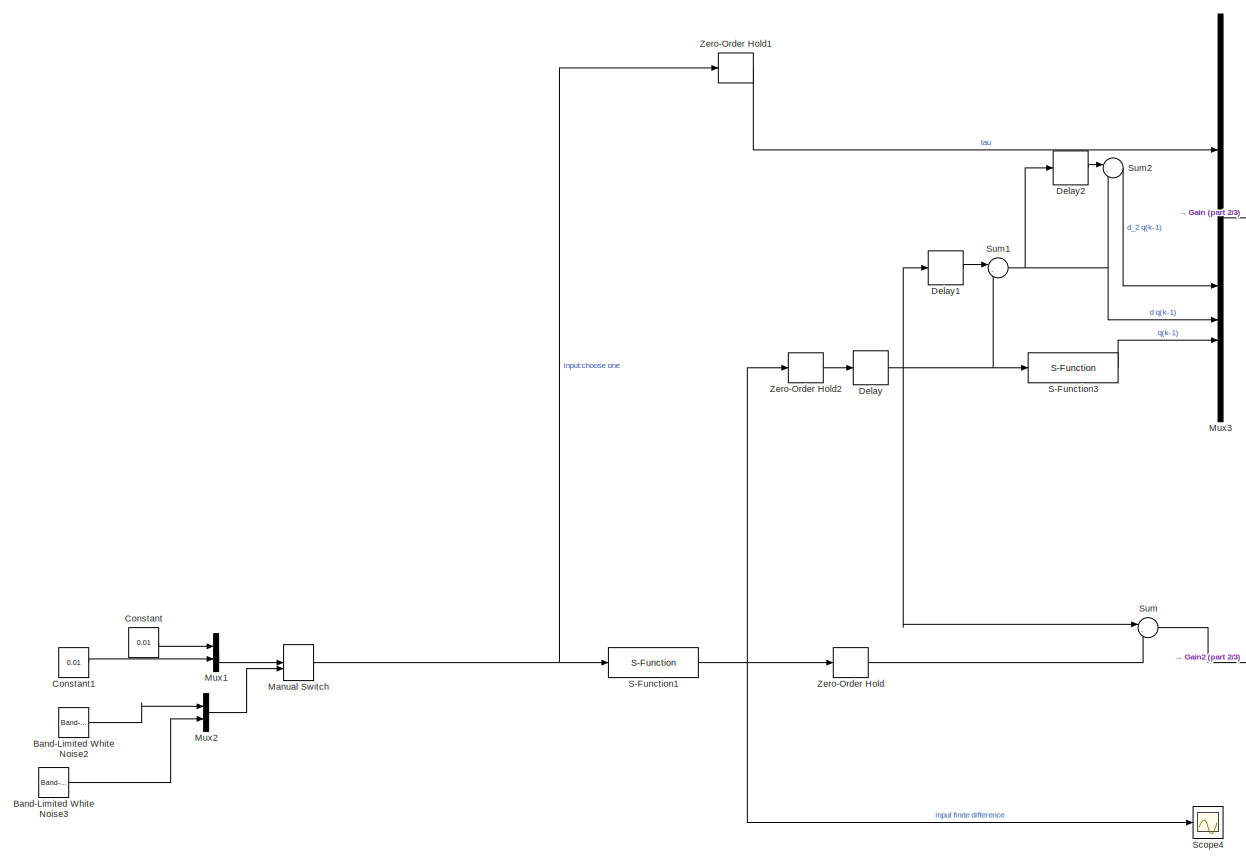
[diagram: root canvas - part 1/3, left side, full height]
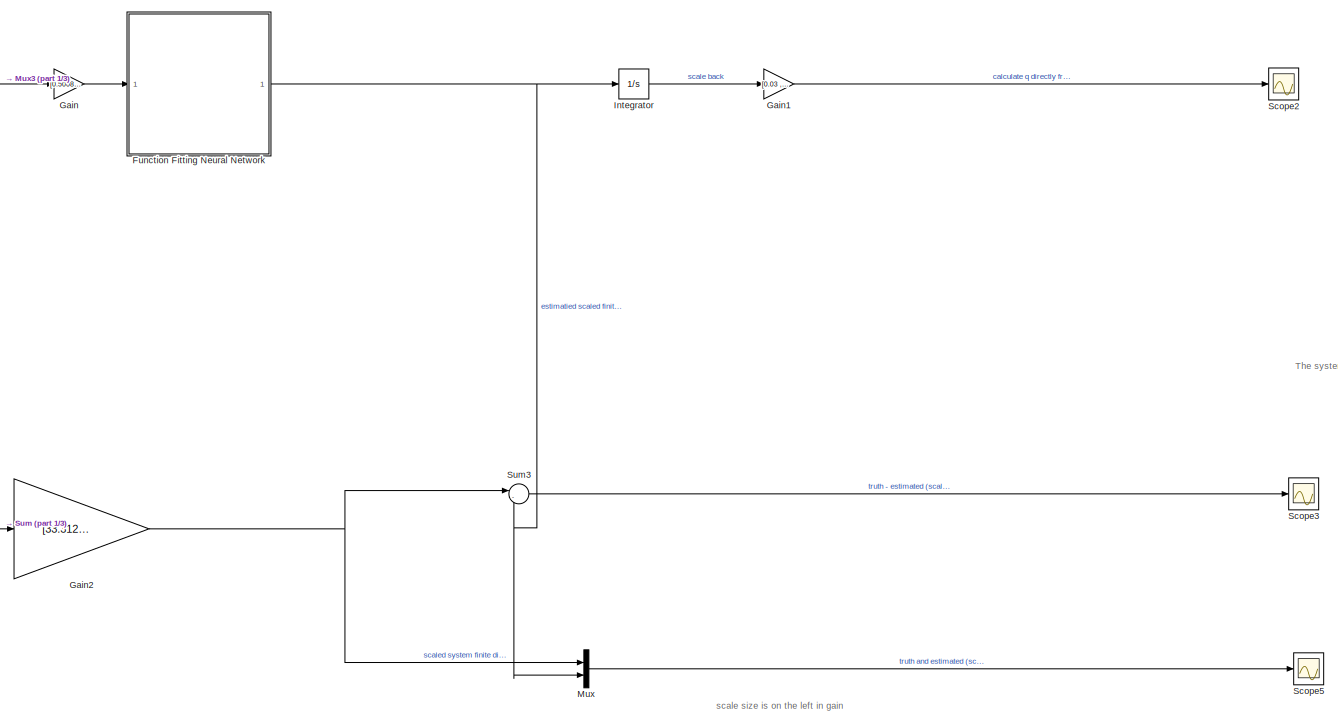
[diagram: root canvas - part 2/3, center side, full height]
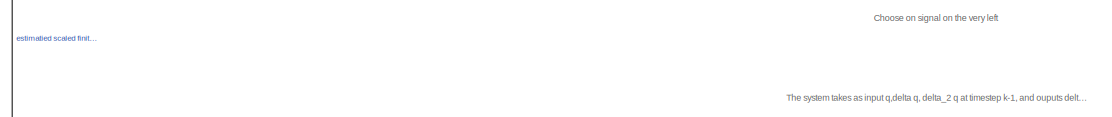
[diagram: root canvas - part 3/3, middle right region]
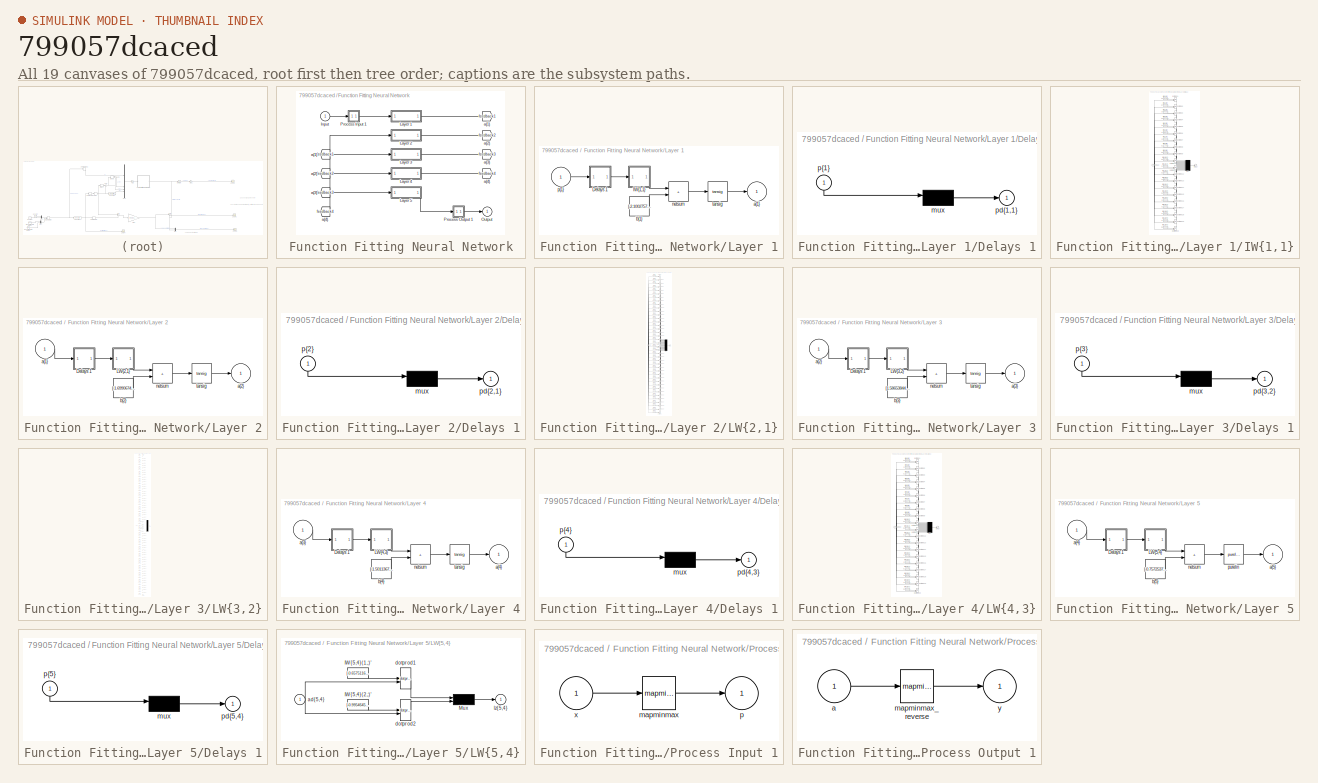
[diagram: thumbnail index - all 19 canvases of the model, root first then tree order]
MODEL slx_799057dcaced
KIND model
CONFIG AbsTol = auto
CONFIG EnableMultiTasking = off
CONFIG FixedStep = auto
CONFIG MaxStep = auto
CONFIG MinStep = auto
CONFIG RelTol = 1e-3
CONFIG SampleTimeConstraint = Unconstrained
CONFIG SolverName = VariableStepAuto
CONFIG StartTime = 0.0
CONFIG StopTime = 40
BLOCK [Reference] Band-Limited White Noise2  REF=simulink/Sources/Band-Limited
White Noise
  SourceBlock = simulink/Sources/Band-Limited\nWhite Noise
  SourceType = Band-Limited White Noise.
BLOCK [Reference] Band-Limited White Noise3  REF=simulink/Sources/Band-Limited
White Noise
  SourceBlock = simulink/Sources/Band-Limited\nWhite Noise
  SourceType = Band-Limited White Noise.
BLOCK [Constant] Constant
  Value = 0.01
BLOCK [Constant] Constant1
  Value = 0.01
BLOCK [Delay] Delay
  DelayLength = 1
  InitialCondition = 0
  InputPortMap = u0
  SampleTime = 0.001
BLOCK [Delay] Delay1
  DelayLength = 1
  InitialCondition = 0
  InputPortMap = u0
  SampleTime = 0.001
BLOCK [Delay] Delay2
  DelayLength = 1
  InitialCondition = 0
  InputPortMap = u0
  SampleTime = 0.001
BLOCK [SubSystem] Function Fitting Neural Network
BLOCK [From] Function Fitting Neural Network/ a{1} 
  GotoTag = feedback1
BLOCK [From] Function Fitting Neural Network/ a{2} 
  GotoTag = feedback2
BLOCK [From] Function Fitting Neural Network/ a{3} 
  GotoTag = feedback3
BLOCK [From] Function Fitting Neural Network/ a{4} 
  GotoTag = feedback4
BLOCK [Inport] Function Fitting Neural Network/Input
  PortDimensions = 8
BLOCK [SubSystem] Function Fitting Neural Network/Layer 1
BLOCK [SubSystem] Function Fitting Neural Network/Layer 1/Delays 1
BLOCK [Mux] Function Fitting Neural Network/Layer 1/Delays 1/mux
  Inputs = 1
BLOCK [Outport] Function Fitting Neural Network/Layer 1/Delays 1/pd{1,1}
BLOCK [Inport] Function Fitting Neural Network/Layer 1/Delays 1/p{1}
  NameLocation = left
  PortDimensions = 8
BLOCK [SubSystem] Function Fitting Neural Network/Layer 1/IW{1,1}
BLOCK [Constant] Function Fitting Neural Network/Layer 1/IW{1,1}/IW{1,1}(1,:)'
  Value = [0.91995808248504562509850757123786024749279022216796875;-0.316927457184414007596018336698762141168117523193359375;0.96921563558065049193146478501148521900177001953125;0.592839841331667560808682537754066288471221923828125;-0.8271777300959166634441999121918343007564544677734375;-0.377960096264000622312551058712415397167205810546875;-0.77079291362793611597226117737591266632080078125;0.45546557479614...<+41ch>
BLOCK [Constant] Function Fitting Neural Network/Layer 1/IW{1,1}/IW{1,1}(10,:)'
  Value = [0.53727296562001047863788016911712475121021270751953125;0.8516078985676005519422915313043631613254547119140625;0.36746006709833600734071978877182118594646453857421875;0.479992605097462832208776717379805631935596466064453125;-0.67025601633448850247276595837320201098918914794921875;-0.0163057230564784098880704021894416655413806438446044921875;-0.05981923776689794525207588549164938740432262420654296...<+61ch>
BLOCK [Constant] Function Fitting Neural Network/Layer 1/IW{1,1}/IW{1,1}(11,:)'
  Value = [-0.045918816586985426730915804682808811776340007781982421875;-0.6338459063377193114519059236044995486736297607421875;0.09634611470784655573584842613854561932384967803955078125;-0.92592536474905806631596760780666954815387725830078125;0.97289648755671442881265420510317198932170867919921875;-0.403174228629781195021308803916326723992824554443359375;-0.5423128732113409178339225036324933171272277832031...<+61ch>
BLOCK [Constant] Function Fitting Neural Network/Layer 1/IW{1,1}/IW{1,1}(12,:)'
  Value = [0.225592811677073179499330990438465960323810577392578125;0.290810243602734386225705520701012574136257171630859375;-0.27900178583549373190209053063881583511829376220703125;-0.001177517378999890819424312127239318215288221836090087890625;0.69331802360193728329562645740224979817867279052734375;1.1267168886975651442838852744898758828639984130859375;-0.10000381968594054815646643419313477352261543273925...<+68ch>
BLOCK [Constant] Function Fitting Neural Network/Layer 1/IW{1,1}/IW{1,1}(13,:)'
  Value = [-0.398171480874707384156607758995960466563701629638671875;0.210279772736680803379982762635336257517337799072265625;-0.85903109890895301692381735847447998821735382080078125;-0.357087769622498552024580931174568831920623779296875;0.9133730896400182874828033163794316351413726806640625;0.2168682160814194570530588634937885217368602752685546875;0.412660940751181704033712094314978457987308502197265625;-0...<+56ch>
BLOCK [Constant] Function Fitting Neural Network/Layer 1/IW{1,1}/IW{1,1}(14,:)'
  Value = [0.5167536969611068453644975306815467774868011474609375;0.54427985731345962516769532157923094928264617919921875;-0.1894507671742639842715760778446565382182598114013671875;0.10616211927280240490123475183281698264181613922119140625;-0.0364117806933223209231442751843133009970188140869140625;-1.387638783713528223273669937043450772762298583984375;-0.31945869773300394900417131793801672756671905517578125...<+61ch>
BLOCK [Constant] Function Fitting Neural Network/Layer 1/IW{1,1}/IW{1,1}(15,:)'
  Value = [0.62455247549504744331017036529374308884143829345703125;0.465965312999569836183155757680651731789112091064453125;0.6805561422106702895717944556963630020618438720703125;-0.34103471926267980851577021894627250730991363525390625;0.354607568338949630248890798611682839691638946533203125;-1.1152656820039823504231435435940511524677276611328125;0.3384929757600116939642020952305756509304046630859375;0.0372...<+52ch>
BLOCK [Constant] Function Fitting Neural Network/Layer 1/IW{1,1}/IW{1,1}(16,:)'
  Value = [-0.6205423121702369204655269641079939901828765869140625;-0.7655014606801600063334944934467785060405731201171875;0.400794764156026939172505763053777627646923065185546875;0.603625951107925828864608774892985820770263671875;-0.11915058222847015045875451733081717975437641143798828125;0.5747559292951638365565258936840109527111053466796875;0.349835055362256619471139629240497015416622161865234375;0.18343...<+51ch>
BLOCK [Constant] Function Fitting Neural Network/Layer 1/IW{1,1}/IW{1,1}(17,:)'
  Value = [-0.216789744863441324884689720420283265411853790283203125;0.6581690082972213584611154146841727197170257568359375;0.7449657814556240875702997072949074208736419677734375;-0.59689615633330406208045815219520591199398040771484375;0.77556721031386366416171540549839846789836883544921875;0.9172337592315138454779344101552851498126983642578125;-0.183526077767298456677735885023139417171478271484375;0.223990...<+50ch>
BLOCK [Constant] Function Fitting Neural Network/Layer 1/IW{1,1}/IW{1,1}(18,:)'
  Value = [-0.72435318988102415094232355841086246073246002197265625;-1.1171649396026508416213118835003115236759185791015625;-0.4937810363093062537842570236534811556339263916015625;-0.854666275117918150527884790790267288684844970703125;-0.12254003122000890757536950559369870461523532867431640625;0.859575296677484335106100843404419720172882080078125;-0.19530504203751097858088314751512371003627777099609375;-0.1...<+55ch>
BLOCK [Constant] Function Fitting Neural Network/Layer 1/IW{1,1}/IW{1,1}(19,:)'
  Value = [-0.7417875479013475992218218380003236234188079833984375;-0.5915259305208715456814161370857618749141693115234375;-0.72933640791217035914684174713329412043094635009765625;0.4392645533508490185425898744142614305019378662109375;-0.260867573780292627549926010033232159912586212158203125;0.394683575362025751420702590621658600866794586181640625;0.885731307827632985407717569614760577678680419921875;-0.171...<+53ch>
BLOCK [Constant] Function Fitting Neural Network/Layer 1/IW{1,1}/IW{1,1}(2,:)'
  Value = [0.74129016486997179047335748691693879663944244384765625;-0.66908030908079629828222323340014554560184478759765625;0.1634271530438831110387809530948288738727569580078125;-0.274655298245290169223409293408622033894062042236328125;-0.6302508752356050791831876267679035663604736328125;-1.158116191408552264618947447161190211772918701171875;-0.447230621326015598260283923082170076668262481689453125;-0.0336...<+51ch>
BLOCK [Constant] Function Fitting Neural Network/Layer 1/IW{1,1}/IW{1,1}(20,:)'
  Value = [0.5501911268318184777825763376313261687755584716796875;0.05385101727574524710373538027852191589772701263427734375;0.8122423521250861089271211312734521925449371337890625;-0.348200619311594350424599042526097036898136138916015625;0.2373370629851322133330171482157311402261257171630859375;1.0078743453578564714945287050795741379261016845703125;0.1517877730290456972372936661486164666712284088134765625;-...<+54ch>
BLOCK [Constant] Function Fitting Neural Network/Layer 1/IW{1,1}/IW{1,1}(3,:)'
  Value = [-0.5440864060965060478025634438381530344486236572265625;-0.52866089409606453752843435722752474248409271240234375;-0.196774307545901472327187775590573437511920928955078125;0.63437764278777952764443170963204465806484222412109375;1.14514576162441183981854919693432748317718505859375;-0.40387562491201556280628892636741511523723602294921875;0.6434419197898113562672506304807029664516448974609375;-0.3390...<+51ch>
BLOCK [Constant] Function Fitting Neural Network/Layer 1/IW{1,1}/IW{1,1}(4,:)'
  Value = [0.35643755560266321413820378438686020672321319580078125;1.01111338463656874608886937494389712810516357421875;-0.97208513197058554755614068199065513908863067626953125;-0.3138829791999331320084820617921650409698486328125;-0.75193110199847257302252501176553778350353240966796875;-0.72827118045253425027141247483086772263050079345703125;-0.188562252676139852081149683726835064589977264404296875;-0.09533...<+52ch>
BLOCK [Constant] Function Fitting Neural Network/Layer 1/IW{1,1}/IW{1,1}(5,:)'
  Value = [-0.14226224785334606881548324963659979403018951416015625;0.54927952203466900993333865699241869151592254638671875;-0.6989676442437120496009583803243003785610198974609375;-0.41084970931671438432175591515260748565196990966796875;-0.93885566951704391147615069712628610432147979736328125;0.415791479863676982642317625504801981151103973388671875;-0.262021721657424822016224652543314732611179351806640625;0...<+57ch>
BLOCK [Constant] Function Fitting Neural Network/Layer 1/IW{1,1}/IW{1,1}(6,:)'
  Value = [-0.78655736710346690898632004973478615283966064453125;-0.1616978164816168794803985520047717727720737457275390625;-0.490287301305921463523418424301780760288238525390625;-0.172710751697370545887366688475594855844974517822265625;0.71884725733954335513686828562640585005283355712890625;0.86163360770083574635691547882743179798126220703125;0.7223163760061266369660870623192749917507171630859375;-0.327945...<+49ch>
BLOCK [Constant] Function Fitting Neural Network/Layer 1/IW{1,1}/IW{1,1}(7,:)'
  Value = [-0.59193005691824762681818583587300963699817657470703125;-0.64718846501704785367792283068411052227020263671875;-0.2144128063202701550693518584012053906917572021484375;-0.12170157148536962787854776024687453173100948333740234375;-1.27677077590241783155988741782493889331817626953125;-0.34990090304515308883281932139652781188488006591796875;0.451665929203489913135172173497267067432403564453125;-0.1005...<+53ch>
BLOCK [Constant] Function Fitting Neural Network/Layer 1/IW{1,1}/IW{1,1}(8,:)'
  Value = [0.1211936747942587710991091398682328872382640838623046875;-0.1602738158383181232835568152950145304203033447265625;-0.0633543657161180495673846735371625982224941253662109375;0.128138383845308345687641349286423064768314361572265625;-0.9053280373258527635726977678132243454456329345703125;0.672841229648285743536462177871726453304290771484375;0.1899762568954378727514864522163406945765018463134765625;-...<+55ch>
BLOCK [Constant] Function Fitting Neural Network/Layer 1/IW{1,1}/IW{1,1}(9,:)'
  Value = [0.39716183342979760606539230138878338038921356201171875;-0.7075491092082071276081478572450578212738037109375;-0.1972997443382255300381444840240874327719211578369140625;-0.6973638669019539548799002659507095813751220703125;-0.506016628685870717418993081082589924335479736328125;-0.7978791029917366994794747370178811252117156982421875;0.51119900481796742841567038340144790709018707275390625;-0.40467421...<+45ch>
BLOCK [Mux] Function Fitting Neural Network/Layer 1/IW{1,1}/Mux
  Inputs = 20
BLOCK [Reference] Function Fitting Neural Network/Layer 1/IW{1,1}/dotprod1  REF=neural/Weight Functions/dotprod
  SourceBlock = neural/Weight Functions/dotprod
  SourceType = DOTPROD
BLOCK [Reference] Function Fitting Neural Network/Layer 1/IW{1,1}/dotprod10  REF=neural/Weight Functions/dotprod
  SourceBlock = neural/Weight Functions/dotprod
  SourceType = DOTPROD
BLOCK [Reference] Function Fitting Neural Network/Layer 1/IW{1,1}/dotprod11  REF=neural/Weight Functions/dotprod
  SourceBlock = neural/Weight Functions/dotprod
  SourceType = DOTPROD
BLOCK [Reference] Function Fitting Neural Network/Layer 1/IW{1,1}/dotprod12  REF=neural/Weight Functions/dotprod
  SourceBlock = neural/Weight Functions/dotprod
  SourceType = DOTPROD
BLOCK [Reference] Function Fitting Neural Network/Layer 1/IW{1,1}/dotprod13  REF=neural/Weight Functions/dotprod
  SourceBlock = neural/Weight Functions/dotprod
  SourceType = DOTPROD
BLOCK [Reference] Function Fitting Neural Network/Layer 1/IW{1,1}/dotprod14  REF=neural/Weight Functions/dotprod
  SourceBlock = neural/Weight Functions/dotprod
  SourceType = DOTPROD
BLOCK [Reference] Function Fitting Neural Network/Layer 1/IW{1,1}/dotprod15  REF=neural/Weight Functions/dotprod
  SourceBlock = neural/Weight Functions/dotprod
  SourceType = DOTPROD
BLOCK [Reference] Function Fitting Neural Network/Layer 1/IW{1,1}/dotprod16  REF=neural/Weight Functions/dotprod
  SourceBlock = neural/Weight Functions/dotprod
  SourceType = DOTPROD
BLOCK [Reference] Function Fitting Neural Network/Layer 1/IW{1,1}/dotprod17  REF=neural/Weight Functions/dotprod
  SourceBlock = neural/Weight Functions/dotprod
  SourceType = DOTPROD
BLOCK [Reference] Function Fitting Neural Network/Layer 1/IW{1,1}/dotprod18  REF=neural/Weight Functions/dotprod
  SourceBlock = neural/Weight Functions/dotprod
  SourceType = DOTPROD
BLOCK [Reference] Function Fitting Neural Network/Layer 1/IW{1,1}/dotprod19  REF=neural/Weight Functions/dotprod
  SourceBlock = neural/Weight Functions/dotprod
  SourceType = DOTPROD
BLOCK [Reference] Function Fitting Neural Network/Layer 1/IW{1,1}/dotprod2  REF=neural/Weight Functions/dotprod
  SourceBlock = neural/Weight Functions/dotprod
  SourceType = DOTPROD
BLOCK [Reference] Function Fitting Neural Network/Layer 1/IW{1,1}/dotprod20  REF=neural/Weight Functions/dotprod
  SourceBlock = neural/Weight Functions/dotprod
  SourceType = DOTPROD
BLOCK [Reference] Function Fitting Neural Network/Layer 1/IW{1,1}/dotprod3  REF=neural/Weight Functions/dotprod
  SourceBlock = neural/Weight Functions/dotprod
  SourceType = DOTPROD
BLOCK [Reference] Function Fitting Neural Network/Layer 1/IW{1,1}/dotprod4  REF=neural/Weight Functions/dotprod
  SourceBlock = neural/Weight Functions/dotprod
  SourceType = DOTPROD
BLOCK [Reference] Function Fitting Neural Network/Layer 1/IW{1,1}/dotprod5  REF=neural/Weight Functions/dotprod
  SourceBlock = neural/Weight Functions/dotprod
  SourceType = DOTPROD
BLOCK [Reference] Function Fitting Neural Network/Layer 1/IW{1,1}/dotprod6  REF=neural/Weight Functions/dotprod
  SourceBlock = neural/Weight Functions/dotprod
  SourceType = DOTPROD
BLOCK [Reference] Function Fitting Neural Network/Layer 1/IW{1,1}/dotprod7  REF=neural/Weight Functions/dotprod
  SourceBlock = neural/Weight Functions/dotprod
  SourceType = DOTPROD
BLOCK [Reference] Function Fitting Neural Network/Layer 1/IW{1,1}/dotprod8  REF=neural/Weight Functions/dotprod
  SourceBlock = neural/Weight Functions/dotprod
  SourceType = DOTPROD
BLOCK [Reference] Function Fitting Neural Network/Layer 1/IW{1,1}/dotprod9  REF=neural/Weight Functions/dotprod
  SourceBlock = neural/Weight Functions/dotprod
  SourceType = DOTPROD
BLOCK [Outport] Function Fitting Neural Network/Layer 1/IW{1,1}/iz{1,1}
BLOCK [Inport] Function Fitting Neural Network/Layer 1/IW{1,1}/pd{1,1}
  PortDimensions = 8
BLOCK [Outport] Function Fitting Neural Network/Layer 1/a{1}
  InitialOutput = [0;0;0;0;0;0;0;0;0;0;0;0;0;0;0;0;0;0;0;0]
BLOCK [Constant] Function Fitting Neural Network/Layer 1/b{1}
  Value = [-2.100275745736771337845993912196718156337738037109375;-2.05086400947184177567805818398483097553253173828125;1.4662381351610733748458414993365295231342315673828125;-1.3880989739729938658996388767263852059841156005859375;0.76075386664336275277520371673745103180408477783203125;1.1765248624410180600108333237585611641407012939453125;0.6101176446252249974122605635784566402435302734375;-0.3032411189635...<+708ch>
BLOCK [Sum] Function Fitting Neural Network/Layer 1/netsum
  IconShape = rectangular
  InputSameDT = on
  Inputs = 2
  OutDataTypeStr = Inherit: Same as first input
  SaturateOnIntegerOverflow = on
BLOCK [Inport] Function Fitting Neural Network/Layer 1/p{1}
  PortDimensions = 8
BLOCK [Reference] Function Fitting Neural Network/Layer 1/tansig  REF=neural/Transfer Functions/tansig
  SourceBlock = neural/Transfer Functions/tansig
  SourceType = TANSIG
BLOCK [SubSystem] Function Fitting Neural Network/Layer 2
BLOCK [SubSystem] Function Fitting Neural Network/Layer 2/Delays 1
BLOCK [Mux] Function Fitting Neural Network/Layer 2/Delays 1/mux
  Inputs = 1
BLOCK [Outport] Function Fitting Neural Network/Layer 2/Delays 1/pd{2,1}
BLOCK [Inport] Function Fitting Neural Network/Layer 2/Delays 1/p{2}
  NameLocation = left
  PortDimensions = 20
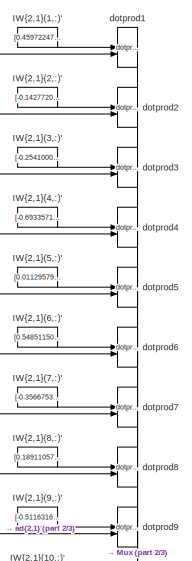
[diagram: Function Fitting Neural Network/Layer 2/LW{2,1} - part 1/3, top center region]
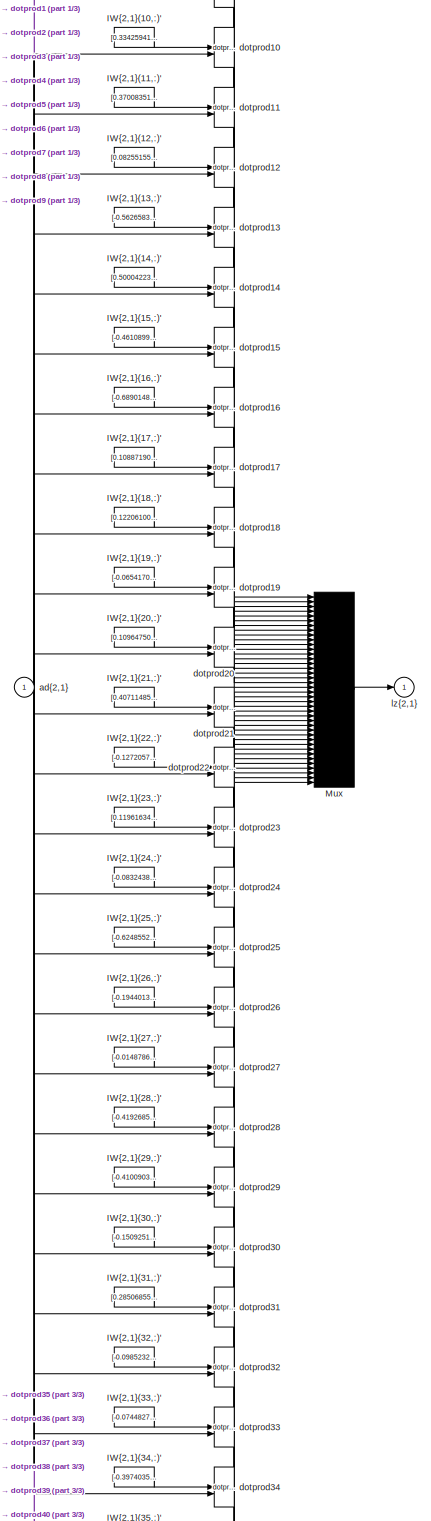
[diagram: Function Fitting Neural Network/Layer 2/LW{2,1} - part 2/3, full width, middle band]
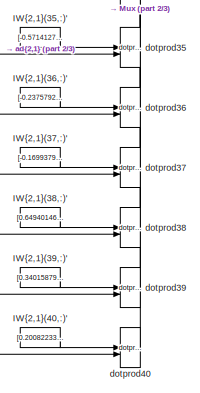
[diagram: Function Fitting Neural Network/Layer 2/LW{2,1} - part 3/3, bottom center region]
BLOCK [SubSystem] Function Fitting Neural Network/Layer 2/LW{2,1}
BLOCK [Constant] Function Fitting Neural Network/Layer 2/LW{2,1}/IW{2,1}(1,:)'
  Value = [0.45972247002541533067443424442899413406848907470703125;0.422283178063222297549117456583189778029918670654296875;0.062284410606082175887454610574422986246645450592041015625;-0.0780711809145838986356835675906040705740451812744140625;0.50124293937627850681337804417125880718231201171875;-0.452678428781236874556270777247846126556396484375;-0.430071425832088294338717560094664804637432098388671875;0.43...<+733ch>
BLOCK [Constant] Function Fitting Neural Network/Layer 2/LW{2,1}/IW{2,1}(10,:)'
  Value = [0.33425941475811138392515431405627168715000152587890625;-0.31670229207196676224356224338407628238201141357421875;0.69438028250475924973983410382061265408992767333984375;-0.392450417825599917609480371538666076958179473876953125;0.1905003990313524908639664090514997951686382293701171875;-0.0747275288466159037792380104292533360421657562255859375;0.01812531901331105102515017790665297070518136024475097...<+750ch>
BLOCK [Constant] Function Fitting Neural Network/Layer 2/LW{2,1}/IW{2,1}(11,:)'
  Value = [0.370083519992984555369019972204114310443401336669921875;-0.18921553108564170830874218154349364340305328369140625;0.446004078646185686540803772004437632858753204345703125;0.0201254065309842793130012950086893397383391857147216796875;0.5901605460553749349372765209409408271312713623046875;-0.583439890006509198627782097901217639446258544921875;-0.6026921701964977895471520241699181497097015380859375;0...<+739ch>
BLOCK [Constant] Function Fitting Neural Network/Layer 2/LW{2,1}/IW{2,1}(12,:)'
  Value = [0.08255155284805952564664011106287944130599498748779296875;-0.56886596600634298237508801321382634341716766357421875;0.2107373828158323469939006145068560726940631866455078125;0.11083015923943684288843769536470063030719757080078125;0.0212433696692661926064271682434991816990077495574951171875;-0.515992574142443150009285091073252260684967041015625;-0.53125135917938126617343641555635258555412292480468...<+744ch>
BLOCK [Constant] Function Fitting Neural Network/Layer 2/LW{2,1}/IW{2,1}(13,:)'
  Value = [-0.5626583973741008382063455428578890860080718994140625;-0.462358660053330872141685858878190629184246063232421875;-0.461797796068488974885468678621691651642322540283203125;-0.64017643413378710892658318698522634804248809814453125;0.04891355673830999339912750656367279589176177978515625;-0.2217222654285584126920838343721698038280010223388671875;-0.2073271093287105959479532657496747560799121856689453...<+740ch>
BLOCK [Constant] Function Fitting Neural Network/Layer 2/LW{2,1}/IW{2,1}(14,:)'
  Value = [0.50004223159213323501859349562437273561954498291015625;0.1908168083070573561865757028499501757323741912841796875;0.6076111713291274529780139346257783472537994384765625;-0.19649499612851706320526545823668129742145538330078125;0.06695963409756559847618717640216345898807048797607421875;-0.51605858352270839173314698200556449592113494873046875;-0.021302847685645394382181194714576122350990772247314453...<+748ch>
BLOCK [Constant] Function Fitting Neural Network/Layer 2/LW{2,1}/IW{2,1}(15,:)'
  Value = [-0.461089994601512509486695989835425280034542083740234375;0.57369951335261426539346985009615309536457061767578125;-0.06781862837784698172516328895653714425861835479736328125;-0.247798705615282777170449435288901440799236297607421875;-0.41775329175948439086596408742479979991912841796875;0.2335966927872746567995676514328806661069393157958984375;-0.2035670597594323449897046884871087968349456787109375...<+750ch>
BLOCK [Constant] Function Fitting Neural Network/Layer 2/LW{2,1}/IW{2,1}(16,:)'
  Value = [-0.68901488077799211140472834813408553600311279296875;-0.34878088102233262279838754693628288805484771728515625;-0.0597692869357201173041715946965268813073635101318359375;-0.534388023216938012893706400063820183277130126953125;-0.0320304130110604656778150456375442445278167724609375;0.01791817198229765650818734457061509601771831512451171875;0.1711721089096453762845584378737839870154857635498046875;-...<+741ch>
BLOCK [Constant] Function Fitting Neural Network/Layer 2/LW{2,1}/IW{2,1}(17,:)'
  Value = [0.10887190835722744541858020284053054638206958770751953125;0.2416398059960937205747910638820030726492404937744140625;0.156379065285972507215461746454820968210697174072265625;-0.156964516562324629678215615058434195816516876220703125;0.360878913613702223539547730979393236339092254638671875;-0.51827647033374812934880537795834243297576904296875;0.159014838324118834567144631364499218761920928955078125...<+757ch>
BLOCK [Constant] Function Fitting Neural Network/Layer 2/LW{2,1}/IW{2,1}(18,:)'
  Value = [0.12206100876959795342724390820876578800380229949951171875;0.6561706202501904616752881338470615446567535400390625;0.026348627334580036751798814975700224749743938446044921875;-0.2541774181993703418669383609085343778133392333984375;0.68982286495508426948930491562350653111934661865234375;0.00640878651456165508715212553170204046182334423065185546875;0.4115659101009828124695388851250754669308662414550...<+743ch>
BLOCK [Constant] Function Fitting Neural Network/Layer 2/LW{2,1}/IW{2,1}(19,:)'
  Value = [-0.06541706854324459696758964355467469431459903717041015625;-0.06305750665496823170741436115349642932415008544921875;0.675730264503986433055615634657442569732666015625;0.1419928218721374924005118600689456798136234283447265625;-0.230081724187290337368949622032232582569122314453125;0.54317972006364823034374467169982381165027618408203125;-0.442689522632805199098271486946032382547855377197265625;0.00...<+739ch>
BLOCK [Constant] Function Fitting Neural Network/Layer 2/LW{2,1}/IW{2,1}(2,:)'
  Value = [-0.1427720962479930022492879970741341821849346160888671875;-0.005870306596928075160146676125805242918431758880615234375;0.0212970205593645788011425423746914020739495754241943359375;-0.458946793273986297645450349591556005179882049560546875;-0.430752903042074419825979703091434203088283538818359375;-0.6771342536340265727545784102403558790683746337890625;-0.4697495909069279718117684296885272487998008...<+760ch>
BLOCK [Constant] Function Fitting Neural Network/Layer 2/LW{2,1}/IW{2,1}(20,:)'
  Value = [0.10964750746030628436589182683746912516653537750244140625;-0.24832975831447290371301050981855951249599456787109375;0.402635899880473768774891141219995915889739990234375;-0.38240342189010367857093797283596359193325042724609375;-0.440678150074875818464903431959100998938083648681640625;0.1355287226636843478377869587347959168255329132080078125;-0.03182949802380700965453996786891366355121135711669921...<+745ch>
BLOCK [Constant] Function Fitting Neural Network/Layer 2/LW{2,1}/IW{2,1}(21,:)'
  Value = [0.407114855443317213978815516384202055633068084716796875;0.1895524446872400847752260233392007648944854736328125;-0.01429596207953337354268352754615989397279918193817138671875;0.293104013624237269564076768801896832883358001708984375;-0.2747080886256927367838898135232739150524139404296875;0.40216277559985502687567304747062735259532928466796875;-0.2193058367685064569130304334976244717836380004882812...<+740ch>
BLOCK [Constant] Function Fitting Neural Network/Layer 2/LW{2,1}/IW{2,1}(22,:)'
  Value = [-0.1272057114948240419405323109458549879491329193115234375;-0.01034354979686362245583364227741185459308326244354248046875;0.440140845261871305194034675878356210887432098388671875;-0.483545644514741967956439339104690589010715484619140625;-0.54399762165323917173509471467696130275726318359375;0.55754473164453421940578436988289467990398406982421875;0.47039826990369426606974911919678561389446258544921...<+746ch>
BLOCK [Constant] Function Fitting Neural Network/Layer 2/LW{2,1}/IW{2,1}(23,:)'
  Value = [0.11961634393341151472167638303290004841983318328857421875;-0.477373520603155743202705707517452538013458251953125;-0.13572094497420028602618913282640278339385986328125;-0.5315358532902667576536259730346500873565673828125;0.1649528567766871123279059929700451903045177459716796875;0.12497568536931369376219436162500642240047454833984375;0.54591522859315977367344885351485572755336761474609375;-0.00721...<+731ch>
BLOCK [Constant] Function Fitting Neural Network/Layer 2/LW{2,1}/IW{2,1}(24,:)'
  Value = [-0.0832438945814697739411514021412585861980915069580078125;0.087587810548528211018748379501630552113056182861328125;-0.58344897598710876440719630409148521721363067626953125;0.56071538127307307686209014718770049512386322021484375;-0.2170160536754803803916047399980016052722930908203125;-0.00765744750468886660466072413555593811906874179840087890625;0.4076104392944548404642546302056871354579925537109...<+755ch>
BLOCK [Constant] Function Fitting Neural Network/Layer 2/LW{2,1}/IW{2,1}(25,:)'
  Value = [-0.624855258260486490229368428117595613002777099609375;-0.53589013805537677459511769484379328787326812744140625;-0.277879076643497147092176646765437908470630645751953125;0.0087591384618121194416406893878956907428801059722900390625;0.534951519531432495568878948688507080078125;0.04952967552607205614645380364891025237739086151123046875;0.051448062051464758803742682857773615978658199310302734375;0.30...<+749ch>
BLOCK [Constant] Function Fitting Neural Network/Layer 2/LW{2,1}/IW{2,1}(26,:)'
  Value = [-0.1944013825058010513924244833106058649718761444091796875;-0.3097885693091144698740890817134641110897064208984375;-0.310843297261817086418744793263613246381282806396484375;0.0293116343395755825362858359994788770563900470733642578125;0.10966565664298620619288016087011783383786678314208984375;0.1327511759821849157692241760742035694420337677001953125;0.4089330135557061041140514134895056486129760742...<+752ch>
BLOCK [Constant] Function Fitting Neural Network/Layer 2/LW{2,1}/IW{2,1}(27,:)'
  Value = [-0.014878659531803957449813680113948066718876361846923828125;-0.0402582586606004266815972414406132884323596954345703125;0.041706503364895085306240929412524565123021602630615234375;-0.464054290509647471285603614887804724276065826416015625;0.369418841297202649176512068152078427374362945556640625;0.320616324172293964966939938676659949123859405517578125;0.461404055484162523015356782707385718822479248...<+751ch>
BLOCK [Constant] Function Fitting Neural Network/Layer 2/LW{2,1}/IW{2,1}(28,:)'
  Value = [-0.419268582673028633589495939304470084607601165771484375;0.422258981635511732033450016388087533414363861083984375;-0.07485824544603393582153927354738698340952396392822265625;0.1002226241976554577117752842241316102445125579833984375;-0.404283330556182762816064268918125890195369720458984375;0.08940843007876859982463457754420232959091663360595703125;-0.2047982254829315285071800190053181722760200500...<+766ch>
BLOCK [Constant] Function Fitting Neural Network/Layer 2/LW{2,1}/IW{2,1}(29,:)'
  Value = [-0.410090346758973878227294562748284079134464263916015625;0.351602860686639206999615225868183188140392303466796875;0.1905361632097581081612958087134757079184055328369140625;-0.357011945608046887823405768358497880399227142333984375;0.1413984355908481926888953239540569484233856201171875;0.12491309311430355555305737880189553834497928619384765625;-0.544277384819186860198669819510541856288909912109375...<+738ch>
BLOCK [Constant] Function Fitting Neural Network/Layer 2/LW{2,1}/IW{2,1}(3,:)'
  Value = [-0.254100032510968798504791266168467700481414794921875;-0.29368130377386203466727465638541616499423980712890625;-0.10535492451038928896078772368127829395234584808349609375;-0.066674075601856952477675122281652875244617462158203125;-0.60152409190582278863956844361382536590099334716796875;0.59416101295137557780634551818366162478923797607421875;0.224407679509871421652533740598300937563180923461914062...<+747ch>
BLOCK [Constant] Function Fitting Neural Network/Layer 2/LW{2,1}/IW{2,1}(30,:)'
  Value = [-0.1509251330735714435871130945088225416839122772216796875;0.1436221792261694052417198008697596378624439239501953125;-0.3315440669638272108699084128602407872676849365234375;-0.265909152602422371725054972557700239121913909912109375;0.3854826558062309782570764582487754523754119873046875;-0.2107261481952472370604567686314112506806850433349609375;-0.037575137628668021927413889216040843166410923004150...<+752ch>
BLOCK [Constant] Function Fitting Neural Network/Layer 2/LW{2,1}/IW{2,1}(31,:)'
  Value = [0.285068551367765821158428707349230535328388214111328125;0.51876853710017190035586054364102892577648162841796875;0.310871390903664390759075786263565532863140106201171875;-0.46461195735697213837767094446462579071521759033203125;-0.10004446857871047982246892615876276977360248565673828125;0.0221317884613128450232988342349926824681460857391357421875;-0.233761019258775404328076774618239142000675201416...<+745ch>
BLOCK [Constant] Function Fitting Neural Network/Layer 2/LW{2,1}/IW{2,1}(32,:)'
  Value = [-0.0985232294676388342669071107593481428921222686767578125;0.482932502109649830490667454796493984758853912353515625;-0.302582251960963832804196727011003531515598297119140625;-0.22918444571616003457847909885458648204803466796875;0.168360072346719180647056646193959750235080718994140625;-0.405723492595174040076244637020863592624664306640625;0.3390193731552397782280650062602944672107696533203125;-0.5...<+730ch>
BLOCK [Constant] Function Fitting Neural Network/Layer 2/LW{2,1}/IW{2,1}(33,:)'
  Value = [-0.0744827721378153173592551183901377953588962554931640625;-0.214544435317327530921005518393940292298793792724609375;0.5442777991530978187739719942328520119190216064453125;-0.29367584231297072516753132731537334620952606201171875;-0.48873940488187328501368256183923222124576568603515625;0.395782947493413639339365772684686817228794097900390625;-0.28438694536156688963401961700583342462778091430664062...<+738ch>
BLOCK [Constant] Function Fitting Neural Network/Layer 2/LW{2,1}/IW{2,1}(34,:)'
  Value = [-0.397403566169213851022590233696973882615566253662109375;-0.150078133826570259135024798524682410061359405517578125;0.30531785571177738614068175593274645507335662841796875;0.535893936150669158990922369412146508693695068359375;-0.1470915985420387650517426436636014841496944427490234375;-0.320064868824280479575605795616866089403629302978515625;-0.3011900899731438929762816769652999937534332275390625;...<+736ch>
BLOCK [Constant] Function Fitting Neural Network/Layer 2/LW{2,1}/IW{2,1}(35,:)'
  Value = [-0.57141271753708888780920460703782737255096435546875;0.61028300951152714137748489520163275301456451416015625;-0.0162053599149427664249945024721455411054193973541259765625;0.65112735838523605469418953362037427723407745361328125;0.1806090970308253107479146137848147191107273101806640625;-0.12406645885667140494224014446444925852119922637939453125;0.058307219402579005262943212528625736013054847717285...<+743ch>
BLOCK [Constant] Function Fitting Neural Network/Layer 2/LW{2,1}/IW{2,1}(36,:)'
  Value = [-0.237579216670034565339619803125970065593719482421875;-0.051384964741048110015153582708080648444592952728271484375;0.628787254300803954976117893238551914691925048828125;0.191002657913743101314452133010490797460079193115234375;-0.277043844755797963319565724304993636906147003173828125;-0.350101624041478431959006911711185239255428314208984375;-0.6117690648318132584648765259771607816219329833984375;...<+751ch>
BLOCK [Constant] Function Fitting Neural Network/Layer 2/LW{2,1}/IW{2,1}(37,:)'
  Value = [-0.1699379706458890304521247571756248362362384796142578125;0.411036438070541298994697854141122661530971527099609375;-0.446269757434554936725845664113876409828662872314453125;-0.45881089244075179411908038673573173582553863525390625;0.372475756165023874633135392286931164562702178955078125;0.50974312206653393797495255057583563029766082763671875;-0.3907130715648928775962644976971205323934555053710937...<+744ch>
BLOCK [Constant] Function Fitting Neural Network/Layer 2/LW{2,1}/IW{2,1}(38,:)'
  Value = [0.64940146520206509794803650947869755327701568603515625;-0.420165783113528867875885453031514771282672882080078125;0.0913684215774715202673661451626685447990894317626953125;-0.14593029472639151844504112887079827487468719482421875;0.249630981025228237957236387956072576344013214111328125;-0.4071032435553114670057084367726929485797882080078125;0.158604122880620368452042612261720933020114898681640625;...<+742ch>
BLOCK [Constant] Function Fitting Neural Network/Layer 2/LW{2,1}/IW{2,1}(39,:)'
  Value = [0.34015879650146796375764779440942220389842987060546875;-0.409732444379672655632163014161051250994205474853515625;-0.5722107492832382291680914931930601596832275390625;-0.272787552498876928464000002350076101720333099365234375;-0.049196242640789610012230781421749270521104335784912109375;-0.34474639931257733405089993539149872958660125732421875;-0.46195208584512353899853565053490456193685531616210937...<+747ch>
BLOCK [Constant] Function Fitting Neural Network/Layer 2/LW{2,1}/IW{2,1}(4,:)'
  Value = [-0.69335718032720949910441277097561396658420562744140625;0.421053009625160179485447997649316675961017608642578125;0.417048533477487992637833258413593284785747528076171875;-0.301113486327371393524998666180181317031383514404296875;0.37320275418067117012554945176816545426845550537109375;-0.2017133093579040192810936105161090381443500518798828125;0.29214191071483491812799115905363578349351882934570312...<+748ch>
BLOCK [Constant] Function Fitting Neural Network/Layer 2/LW{2,1}/IW{2,1}(40,:)'
  Value = [0.200822337072890599873886685600155033171176910400390625;-0.359203452798671440948652389124617911875247955322265625;-0.485933186313229015240722219459712505340576171875;-0.12023315305941549568924386903745471499860286712646484375;0.2173520400067072422256586605726624839007854461669921875;0.2352849510760390561170396495072054676711559295654296875;0.15847076563692130690697013051249086856842041015625;0.6...<+729ch>
BLOCK [Constant] Function Fitting Neural Network/Layer 2/LW{2,1}/IW{2,1}(5,:)'
  Value = [0.011295790079235347447283999144929111935198307037353515625;-0.329319800314348321013113718436216004192829132080078125;-0.0608390429494506113083929221829748712480068206787109375;0.2474316420159144158663622192761977203190326690673828125;-0.57805738531201955598959330018260516226291656494140625;-0.559493554126351710920062032528221607208251953125;0.49820206470686911881529113088618032634258270263671875...<+736ch>
BLOCK [Constant] Function Fitting Neural Network/Layer 2/LW{2,1}/IW{2,1}(6,:)'
  Value = [0.54851150427774719720019902524654753506183624267578125;-0.48123902207189306334811362830805592238903045654296875;0.255201605121005814513779341723420657217502593994140625;-0.10053933682139808147848469843665952794253826141357421875;0.37869419342667887118381031541503034532070159912109375;0.52665664801278133655415558678214438259601593017578125;0.0779750533666844075630919519426242914050817489624023437...<+755ch>
BLOCK [Constant] Function Fitting Neural Network/Layer 2/LW{2,1}/IW{2,1}(7,:)'
  Value = [-0.356675323128629317981364010847755707800388336181640625;0.1303873263592889575335220797569490969181060791015625;0.61286572969582719938586023999960161745548248291015625;-0.39009971978834112604772599297575652599334716796875;0.467036142482754990101767589294468052685260772705078125;-0.486154198296961992387110740310163237154483795166015625;0.469654718397155945819321232193033210933208465576171875;0.01...<+745ch>
BLOCK [Constant] Function Fitting Neural Network/Layer 2/LW{2,1}/IW{2,1}(8,:)'
  Value = [0.189110576290151488620949749019928276538848876953125;-0.345523743512147041290205606856034137308597564697265625;0.421400946729650838218361741382977925240993499755859375;-0.542530103187530254871262513916008174419403076171875;0.5676712725429180483871505202841944992542266845703125;-0.33938664072307644925530212276498787105083465576171875;0.32422085893215879526252365394611842930316925048828125;0.23223...<+740ch>
BLOCK [Constant] Function Fitting Neural Network/Layer 2/LW{2,1}/IW{2,1}(9,:)'
  Value = [-0.51163162407429141342873890607734210789203643798828125;-0.459053301719721418283626235279371030628681182861328125;-0.5813280150379271926652791080414317548274993896484375;-0.65932247963080536923285990269505418837070465087890625;0.3611871076611861131056002705008722841739654541015625;0.11380675529025242875835743916468345560133457183837890625;0.3945265153393080481691868044435977935791015625;-0.37046...<+740ch>
BLOCK [Mux] Function Fitting Neural Network/Layer 2/LW{2,1}/Mux
  Inputs = 40
BLOCK [Inport] Function Fitting Neural Network/Layer 2/LW{2,1}/ad{2,1}
  PortDimensions = 20
BLOCK [Reference] Function Fitting Neural Network/Layer 2/LW{2,1}/dotprod1  REF=neural/Weight Functions/dotprod
  SourceBlock = neural/Weight Functions/dotprod
  SourceType = DOTPROD
BLOCK [Reference] Function Fitting Neural Network/Layer 2/LW{2,1}/dotprod10  REF=neural/Weight Functions/dotprod
  SourceBlock = neural/Weight Functions/dotprod
  SourceType = DOTPROD
BLOCK [Reference] Function Fitting Neural Network/Layer 2/LW{2,1}/dotprod11  REF=neural/Weight Functions/dotprod
  SourceBlock = neural/Weight Functions/dotprod
  SourceType = DOTPROD
BLOCK [Reference] Function Fitting Neural Network/Layer 2/LW{2,1}/dotprod12  REF=neural/Weight Functions/dotprod
  SourceBlock = neural/Weight Functions/dotprod
  SourceType = DOTPROD
BLOCK [Reference] Function Fitting Neural Network/Layer 2/LW{2,1}/dotprod13  REF=neural/Weight Functions/dotprod
  SourceBlock = neural/Weight Functions/dotprod
  SourceType = DOTPROD
BLOCK [Reference] Function Fitting Neural Network/Layer 2/LW{2,1}/dotprod14  REF=neural/Weight Functions/dotprod
  SourceBlock = neural/Weight Functions/dotprod
  SourceType = DOTPROD
BLOCK [Reference] Function Fitting Neural Network/Layer 2/LW{2,1}/dotprod15  REF=neural/Weight Functions/dotprod
  SourceBlock = neural/Weight Functions/dotprod
  SourceType = DOTPROD
BLOCK [Reference] Function Fitting Neural Network/Layer 2/LW{2,1}/dotprod16  REF=neural/Weight Functions/dotprod
  SourceBlock = neural/Weight Functions/dotprod
  SourceType = DOTPROD
BLOCK [Reference] Function Fitting Neural Network/Layer 2/LW{2,1}/dotprod17  REF=neural/Weight Functions/dotprod
  SourceBlock = neural/Weight Functions/dotprod
  SourceType = DOTPROD
BLOCK [Reference] Function Fitting Neural Network/Layer 2/LW{2,1}/dotprod18  REF=neural/Weight Functions/dotprod
  SourceBlock = neural/Weight Functions/dotprod
  SourceType = DOTPROD
BLOCK [Reference] Function Fitting Neural Network/Layer 2/LW{2,1}/dotprod19  REF=neural/Weight Functions/dotprod
  SourceBlock = neural/Weight Functions/dotprod
  SourceType = DOTPROD
BLOCK [Reference] Function Fitting Neural Network/Layer 2/LW{2,1}/dotprod2  REF=neural/Weight Functions/dotprod
  SourceBlock = neural/Weight Functions/dotprod
  SourceType = DOTPROD
BLOCK [Reference] Function Fitting Neural Network/Layer 2/LW{2,1}/dotprod20  REF=neural/Weight Functions/dotprod
  SourceBlock = neural/Weight Functions/dotprod
  SourceType = DOTPROD
BLOCK [Reference] Function Fitting Neural Network/Layer 2/LW{2,1}/dotprod21  REF=neural/Weight Functions/dotprod
  SourceBlock = neural/Weight Functions/dotprod
  SourceType = DOTPROD
BLOCK [Reference] Function Fitting Neural Network/Layer 2/LW{2,1}/dotprod22  REF=neural/Weight Functions/dotprod
  SourceBlock = neural/Weight Functions/dotprod
  SourceType = DOTPROD
BLOCK [Reference] Function Fitting Neural Network/Layer 2/LW{2,1}/dotprod23  REF=neural/Weight Functions/dotprod
  SourceBlock = neural/Weight Functions/dotprod
  SourceType = DOTPROD
BLOCK [Reference] Function Fitting Neural Network/Layer 2/LW{2,1}/dotprod24  REF=neural/Weight Functions/dotprod
  SourceBlock = neural/Weight Functions/dotprod
  SourceType = DOTPROD
BLOCK [Reference] Function Fitting Neural Network/Layer 2/LW{2,1}/dotprod25  REF=neural/Weight Functions/dotprod
  SourceBlock = neural/Weight Functions/dotprod
  SourceType = DOTPROD
BLOCK [Reference] Function Fitting Neural Network/Layer 2/LW{2,1}/dotprod26  REF=neural/Weight Functions/dotprod
  SourceBlock = neural/Weight Functions/dotprod
  SourceType = DOTPROD
BLOCK [Reference] Function Fitting Neural Network/Layer 2/LW{2,1}/dotprod27  REF=neural/Weight Functions/dotprod
  SourceBlock = neural/Weight Functions/dotprod
  SourceType = DOTPROD
BLOCK [Reference] Function Fitting Neural Network/Layer 2/LW{2,1}/dotprod28  REF=neural/Weight Functions/dotprod
  SourceBlock = neural/Weight Functions/dotprod
  SourceType = DOTPROD
BLOCK [Reference] Function Fitting Neural Network/Layer 2/LW{2,1}/dotprod29  REF=neural/Weight Functions/dotprod
  SourceBlock = neural/Weight Functions/dotprod
  SourceType = DOTPROD
BLOCK [Reference] Function Fitting Neural Network/Layer 2/LW{2,1}/dotprod3  REF=neural/Weight Functions/dotprod
  SourceBlock = neural/Weight Functions/dotprod
  SourceType = DOTPROD
BLOCK [Reference] Function Fitting Neural Network/Layer 2/LW{2,1}/dotprod30  REF=neural/Weight Functions/dotprod
  SourceBlock = neural/Weight Functions/dotprod
  SourceType = DOTPROD
BLOCK [Reference] Function Fitting Neural Network/Layer 2/LW{2,1}/dotprod31  REF=neural/Weight Functions/dotprod
  SourceBlock = neural/Weight Functions/dotprod
  SourceType = DOTPROD
BLOCK [Reference] Function Fitting Neural Network/Layer 2/LW{2,1}/dotprod32  REF=neural/Weight Functions/dotprod
  SourceBlock = neural/Weight Functions/dotprod
  SourceType = DOTPROD
BLOCK [Reference] Function Fitting Neural Network/Layer 2/LW{2,1}/dotprod33  REF=neural/Weight Functions/dotprod
  SourceBlock = neural/Weight Functions/dotprod
  SourceType = DOTPROD
BLOCK [Reference] Function Fitting Neural Network/Layer 2/LW{2,1}/dotprod34  REF=neural/Weight Functions/dotprod
  SourceBlock = neural/Weight Functions/dotprod
  SourceType = DOTPROD
BLOCK [Reference] Function Fitting Neural Network/Layer 2/LW{2,1}/dotprod35  REF=neural/Weight Functions/dotprod
  SourceBlock = neural/Weight Functions/dotprod
  SourceType = DOTPROD
BLOCK [Reference] Function Fitting Neural Network/Layer 2/LW{2,1}/dotprod36  REF=neural/Weight Functions/dotprod
  SourceBlock = neural/Weight Functions/dotprod
  SourceType = DOTPROD
BLOCK [Reference] Function Fitting Neural Network/Layer 2/LW{2,1}/dotprod37  REF=neural/Weight Functions/dotprod
  SourceBlock = neural/Weight Functions/dotprod
  SourceType = DOTPROD
BLOCK [Reference] Function Fitting Neural Network/Layer 2/LW{2,1}/dotprod38  REF=neural/Weight Functions/dotprod
  SourceBlock = neural/Weight Functions/dotprod
  SourceType = DOTPROD
BLOCK [Reference] Function Fitting Neural Network/Layer 2/LW{2,1}/dotprod39  REF=neural/Weight Functions/dotprod
  SourceBlock = neural/Weight Functions/dotprod
  SourceType = DOTPROD
BLOCK [Reference] Function Fitting Neural Network/Layer 2/LW{2,1}/dotprod4  REF=neural/Weight Functions/dotprod
  SourceBlock = neural/Weight Functions/dotprod
  SourceType = DOTPROD
BLOCK [Reference] Function Fitting Neural Network/Layer 2/LW{2,1}/dotprod40  REF=neural/Weight Functions/dotprod
  SourceBlock = neural/Weight Functions/dotprod
  SourceType = DOTPROD
BLOCK [Reference] Function Fitting Neural Network/Layer 2/LW{2,1}/dotprod5  REF=neural/Weight Functions/dotprod
  SourceBlock = neural/Weight Functions/dotprod
  SourceType = DOTPROD
BLOCK [Reference] Function Fitting Neural Network/Layer 2/LW{2,1}/dotprod6  REF=neural/Weight Functions/dotprod
  SourceBlock = neural/Weight Functions/dotprod
  SourceType = DOTPROD
BLOCK [Reference] Function Fitting Neural Network/Layer 2/LW{2,1}/dotprod7  REF=neural/Weight Functions/dotprod
  SourceBlock = neural/Weight Functions/dotprod
  SourceType = DOTPROD
BLOCK [Reference] Function Fitting Neural Network/Layer 2/LW{2,1}/dotprod8  REF=neural/Weight Functions/dotprod
  SourceBlock = neural/Weight Functions/dotprod
  SourceType = DOTPROD
BLOCK [Reference] Function Fitting Neural Network/Layer 2/LW{2,1}/dotprod9  REF=neural/Weight Functions/dotprod
  SourceBlock = neural/Weight Functions/dotprod
  SourceType = DOTPROD
BLOCK [Outport] Function Fitting Neural Network/Layer 2/LW{2,1}/lz{2,1}
BLOCK [Inport] Function Fitting Neural Network/Layer 2/a{1} 
  PortDimensions = 20
BLOCK [Outport] Function Fitting Neural Network/Layer 2/a{2}
  InitialOutput = [0;0;0;0;0;0;0;0;0;0;0;0;0;0;0;0;0;0;0;0;0;0;0;0;0;0;0;0;0;0;0;0;0;0;0;0;0;0;0;0]
BLOCK [Constant] Function Fitting Neural Network/Layer 2/b{2}
  Value = [-1.6990674832913110758880748107912950217723846435546875;1.6243341346526747326350914590875618159770965576171875;1.6371568209345668254428574073244817554950714111328125;1.50417743706450668383922675275243818759918212890625;-1.3267780399875832575418144188006408512592315673828125;-1.1781726937985721459511978537193499505519866943359375;1.231110842431952345776835500146262347698211669921875;-1.01619940510...<+1841ch>
BLOCK [Sum] Function Fitting Neural Network/Layer 2/netsum
  IconShape = rectangular
  InputSameDT = on
  Inputs = 2
  OutDataTypeStr = Inherit: Same as first input
  SaturateOnIntegerOverflow = on
BLOCK [Reference] Function Fitting Neural Network/Layer 2/tansig  REF=neural/Transfer Functions/tansig
  SourceBlock = neural/Transfer Functions/tansig
  SourceType = TANSIG
BLOCK [SubSystem] Function Fitting Neural Network/Layer 3
BLOCK [SubSystem] Function Fitting Neural Network/Layer 3/Delays 1
BLOCK [Mux] Function Fitting Neural Network/Layer 3/Delays 1/mux
  Inputs = 1
BLOCK [Outport] Function Fitting Neural Network/Layer 3/Delays 1/pd{3,2}
BLOCK [Inport] Function Fitting Neural Network/Layer 3/Delays 1/p{3}
  NameLocation = left
  PortDimensions = 40
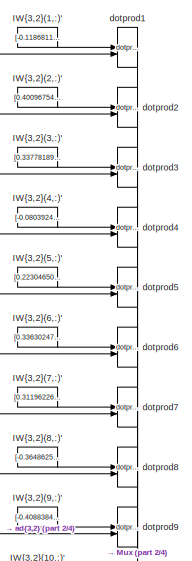
[diagram: Function Fitting Neural Network/Layer 3/LW{3,2} - part 1/4, top center region]
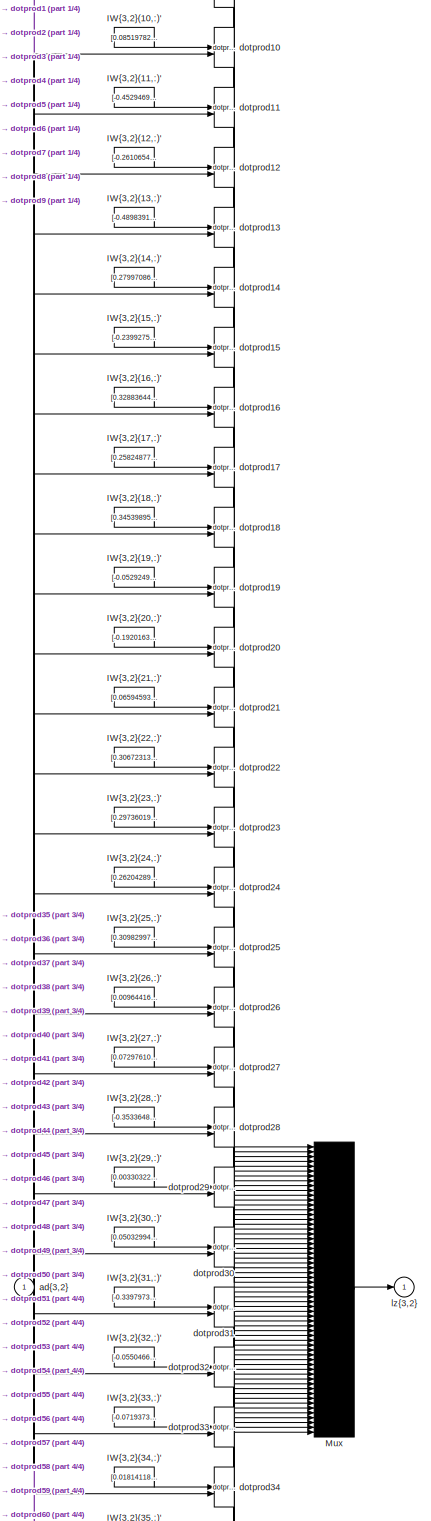
[diagram: Function Fitting Neural Network/Layer 3/LW{3,2} - part 2/4, full width, middle band]
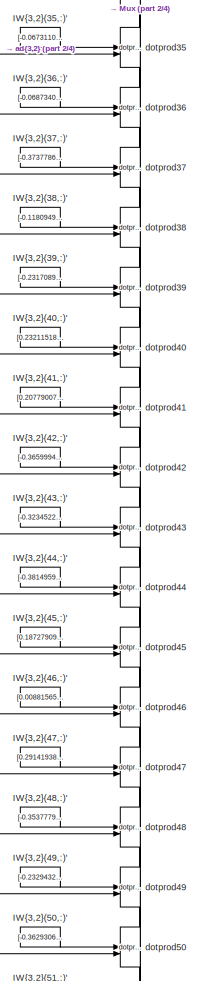
[diagram: Function Fitting Neural Network/Layer 3/LW{3,2} - part 3/4, bottom center region]
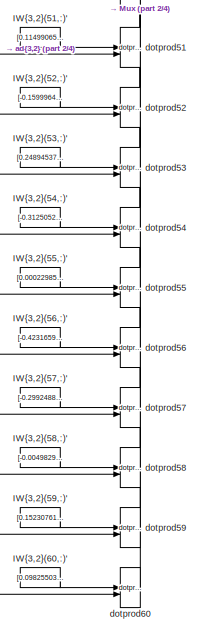
[diagram: Function Fitting Neural Network/Layer 3/LW{3,2} - part 4/4, bottom center region]
BLOCK [SubSystem] Function Fitting Neural Network/Layer 3/LW{3,2}
BLOCK [Constant] Function Fitting Neural Network/Layer 3/LW{3,2}/IW{3,2}(1,:)'
  Value = [-0.11868116597756385444117910310524166561663150787353515625;-0.166517880542579543856618329300545156002044677734375;-0.323344420598247805909153385073295794427394866943359375;-0.285057573421961973902938325409195385873317718505859375;-0.311844176784764559595686250759172253310680389404296875;0.197854427948400080072843820744310505688190460205078125;-0.16477456333884610284457039597327820956707000732421...<+1893ch>
BLOCK [Constant] Function Fitting Neural Network/Layer 3/LW{3,2}/IW{3,2}(10,:)'
  Value = [0.085197825119261494375422216762672178447246551513671875;0.2970099488989255132054267960484139621257781982421875;0.36230531636944152129586882438161410391330718994140625;0.357668373575268816466632415540516376495361328125;-0.1542487660658003190139453408846748061478137969970703125;-0.173857210358758729196182457599206827580928802490234375;-0.00338201917573910555703253777437566895969212055206298828125;...<+1885ch>
BLOCK [Constant] Function Fitting Neural Network/Layer 3/LW{3,2}/IW{3,2}(11,:)'
  Value = [-0.45294692945275316642295138080953620374202728271484375;0.10531725865657103058392607408677577041089534759521484375;-0.2865008516843225994108479426358826458454132080078125;-0.1754214001286080459873772952050785534083843231201171875;-0.413905317582856702163240925074205733835697174072265625;0.141738894827324768410647948257974348962306976318359375;-0.25711346635205534205681487947003915905952453613281...<+1912ch>
BLOCK [Constant] Function Fitting Neural Network/Layer 3/LW{3,2}/IW{3,2}(12,:)'
  Value = [-0.26106542677291810772288727093837223947048187255859375;-0.38806593056509497419170884313643909990787506103515625;0.258396274481436483139162874067551456391811370849609375;0.1629724033503025248936779689756804145872592926025390625;-0.304367962418949478120566709549166262149810791015625;0.357708481752597562408624298768700100481510162353515625;0.344385548567187338431239140845718793570995330810546875;0...<+1887ch>
BLOCK [Constant] Function Fitting Neural Network/Layer 3/LW{3,2}/IW{3,2}(13,:)'
  Value = [-0.48983918575868001799022977138520218431949615478515625;0.41028567048039754627808406439726240932941436767578125;-0.310308526759851488474595271327416412532329559326171875;-0.174910491775928156332753360402421094477176666259765625;0.070672473016859971295389186707325279712677001953125;0.279137952867775152032692176362616010010242462158203125;-0.1320008685645985002654612117112264968454837799072265625;...<+1899ch>
BLOCK [Constant] Function Fitting Neural Network/Layer 3/LW{3,2}/IW{3,2}(14,:)'
  Value = [0.279970867684354696169890530654811300337314605712890625;0.2972251231896139156418712445884011685848236083984375;-0.12481832679737396574193297738020191900432109832763671875;0.411426184309084896906227868385030888020992279052734375;0.0268866558449547821130209968032431788742542266845703125;0.37496380496230929946221976933884434401988983154296875;-0.11799170666654514028071076836567954160273075103759765...<+1908ch>
BLOCK [Constant] Function Fitting Neural Network/Layer 3/LW{3,2}/IW{3,2}(15,:)'
  Value = [-0.239927500552254258092688132819603197276592254638671875;-0.0398759404126533822942946017064969055354595184326171875;0.1151893845433447360893097766165737994015216827392578125;-0.023437748796645736792942926740579423494637012481689453125;-0.10986766488434358823855774289768305607140064239501953125;-0.4046954574950414329492787146591581404209136962890625;0.105056109978389308756696607360936468467116355...<+1909ch>
BLOCK [Constant] Function Fitting Neural Network/Layer 3/LW{3,2}/IW{3,2}(16,:)'
  Value = [0.328836443062843708506903794841491617262363433837890625;0.280357019436285437308242762810550630092620849609375;-0.1821775149448713604360960971462191082537174224853515625;0.35820048959448425041074415275943465530872344970703125;-0.271117023044712357471297536903875879943370819091796875;-0.28416650135317078618157893288298510015010833740234375;0.291651550719129570854448729733121581375598907470703125;0...<+1912ch>
BLOCK [Constant] Function Fitting Neural Network/Layer 3/LW{3,2}/IW{3,2}(17,:)'
  Value = [0.258248779629919822387051908663124777376651763916015625;0.13008668700518988270431464115972630679607391357421875;0.2059079447550391239740719129258650355041027069091796875;0.1661048271154340894018019980649114586412906646728515625;-0.050313017028215258064083315048264921642839908599853515625;0.379509213586496640946421621265471912920475006103515625;-0.3133898394432674261445015417848480865359306335449...<+1920ch>
BLOCK [Constant] Function Fitting Neural Network/Layer 3/LW{3,2}/IW{3,2}(18,:)'
  Value = [0.3453989510901014359234295625356025993824005126953125;-0.2376024208552901251234601431860937736928462982177734375;-0.272646796025409254848881346333655528724193572998046875;-0.0527987800827064146513833975404850207269191741943359375;-0.18259177124114434054291677966830320656299591064453125;-0.357721594471127557479661618344835005700588226318359375;-0.04626075058674953416337771727739891503006219863891...<+1930ch>
BLOCK [Constant] Function Fitting Neural Network/Layer 3/LW{3,2}/IW{3,2}(19,:)'
  Value = [-0.052924980452176979828227132429674384184181690216064453125;-0.320146617921251486205136416174354963004589080810546875;-0.305935079252053709897296585040749050676822662353515625;0.0894216124865414574429678395972587168216705322265625;-0.1443870142681460133626814013041439466178417205810546875;0.201979029983325564234775129079935140907764434814453125;0.4238792075196033959372243771213106811046600341796...<+1892ch>
BLOCK [Constant] Function Fitting Neural Network/Layer 3/LW{3,2}/IW{3,2}(2,:)'
  Value = [0.400967547491725861963374200058751739561557769775390625;0.06288913577429865175982826031031436286866664886474609375;-0.439317591229723303225540576022467575967311859130859375;-0.10626443775046325035393834923524991609156131744384765625;0.4731964671236854602653920665034092962741851806640625;-0.148585563055734615200975667903549037873744964599609375;-0.1947099097828738634152756503681303001940250396728...<+1915ch>
BLOCK [Constant] Function Fitting Neural Network/Layer 3/LW{3,2}/IW{3,2}(20,:)'
  Value = [-0.192016355796621074336627543743816204369068145751953125;0.345417541250856385826040195752284489572048187255859375;0.100866059623737680528421378767234273254871368408203125;-0.14967702742722621689352990870247595012187957763671875;-0.2269921256363388317733864596448256634175777435302734375;0.3939448575311541578258811568957753479480743408203125;0.207326444312218666210512196812487673014402389526367187...<+1893ch>
BLOCK [Constant] Function Fitting Neural Network/Layer 3/LW{3,2}/IW{3,2}(21,:)'
  Value = [0.065945935271805200539319002928095869719982147216796875;-0.08371542165140176405824234961983165703713893890380859375;0.5073848046448665716212644838378764688968658447265625;0.1146420341763568495618841325267567299306392669677734375;0.211751540938044990891597763038589619100093841552734375;-0.340744242009223763378855664996081031858921051025390625;-0.285990384618474979827595916503923945128917694091796...<+1924ch>
BLOCK [Constant] Function Fitting Neural Network/Layer 3/LW{3,2}/IW{3,2}(22,:)'
  Value = [0.30672313370264514542640199579182080924510955810546875;-0.1735920934599379794605056304135359823703765869140625;0.1168650950010829137060142102200188674032688140869140625;0.238907793639901167015437977170222438871860504150390625;0.1811411300872872442990768604431650601327419281005859375;0.311252113606284852576067123663960956037044525146484375;-0.3762343432882400140471190752577967941761016845703125;0...<+1915ch>
BLOCK [Constant] Function Fitting Neural Network/Layer 3/LW{3,2}/IW{3,2}(23,:)'
  Value = [0.29736019725801299262712973359157331287860870361328125;-0.149100567010163553849366735448711551725864410400390625;-0.2272621928382100031651447125113918446004390716552734375;-0.16968080756275327747317760440637357532978057861328125;-0.156384686479921708457396789526683278381824493408203125;-0.388417209121778073122044361298321746289730072021484375;0.057019114203099151294562574321389547549188137054443...<+1916ch>
BLOCK [Constant] Function Fitting Neural Network/Layer 3/LW{3,2}/IW{3,2}(24,:)'
  Value = [0.262042897215449654968466575155616737902164459228515625;0.250656676497765740219136887390050105750560760498046875;0.38224328740622792732750667710206471383571624755859375;-0.0781862326433297172290082244217046536505222320556640625;0.016383720954467613506455592187194270081818103790283203125;-0.135349466203427637456258025849820114672183990478515625;-0.0039458907756450408918502681387963093584403395652...<+1918ch>
BLOCK [Constant] Function Fitting Neural Network/Layer 3/LW{3,2}/IW{3,2}(25,:)'
  Value = [0.309829972025723210382608385771163739264011383056640625;-0.292596755187533974496005839682766236364841461181640625;-0.0756991762664480649647202881169505417346954345703125;-0.1408918671283919954451135936324135400354862213134765625;-0.1696625383661276575963938739732839167118072509765625;-0.233953538863916177259483220041147433221340179443359375;-0.0275748080419761856796334598129760706797242164611816...<+1902ch>
BLOCK [Constant] Function Fitting Neural Network/Layer 3/LW{3,2}/IW{3,2}(26,:)'
  Value = [0.00964416504896448666117603210068409680388867855072021484375;0.1269630179472419351238698936867876909673213958740234375;-0.48086340081955125658197403026861138641834259033203125;0.26799447009341526015901990831480361521244049072265625;-0.1881749516005427336207134203505120240151882171630859375;0.3133107218648134573157904014806263148784637451171875;-0.3056382325887802009489746524195652455091476440429...<+1903ch>
BLOCK [Constant] Function Fitting Neural Network/Layer 3/LW{3,2}/IW{3,2}(27,:)'
  Value = [0.07297610658965879293358369750421843491494655609130859375;0.10907396890716035409152340207583620212972164154052734375;-0.3025021273894477058519214551779441535472869873046875;-0.4114943918429208036258160063880495727062225341796875;-0.12558104766062394563874704545014537870883941650390625;0.384594560579771371777724198182113468647003173828125;-0.1864376435944626042573446511596557684242725372314453125...<+1916ch>
BLOCK [Constant] Function Fitting Neural Network/Layer 3/LW{3,2}/IW{3,2}(28,:)'
  Value = [-0.353364848816859422608871454940526746213436126708984375;0.253986968154720493817677606784855015575885772705078125;0.3703039668683292262585382559336721897125244140625;-0.27346264369202055721785882269614376127719879150390625;0.1811924379161335973975610613706521689891815185546875;0.26178572625707097198954897976364009082317352294921875;0.30521209986365660515872377800405956804752349853515625;-0.03337...<+1907ch>
BLOCK [Constant] Function Fitting Neural Network/Layer 3/LW{3,2}/IW{3,2}(29,:)'
  Value = [0.0033032214677125690434345006707417269353754818439483642578125;-0.09369193999657719762463869983548647724092006683349609375;0.31088225716615902616268840574775822460651397705078125;-0.2255947080458249043299900904457899741828441619873046875;0.05730237594531283062959658991530886851251125335693359375;0.28256325496992362733550407938309945166110992431640625;0.1396513532690571157690584414012846536934375...<+1930ch>
BLOCK [Constant] Function Fitting Neural Network/Layer 3/LW{3,2}/IW{3,2}(3,:)'
  Value = [0.33778189007262238163775691646151244640350341796875;0.17401746684296803824310018171672709286212921142578125;0.029221329413959329368566386619932018220424652099609375;0.09421703242904887198871932696420117281377315521240234375;0.3231646638181560060587571570067666471004486083984375;-0.1938577164620882975487603516739909537136554718017578125;0.04152495046365976827384969283230020664632320404052734375;0...<+1888ch>
BLOCK [Constant] Function Fitting Neural Network/Layer 3/LW{3,2}/IW{3,2}(30,:)'
  Value = [0.0503299496470688556559736070994404144585132598876953125;-0.2761501310803102793300922712660394608974456787109375;0.091759813469661721807568710573832504451274871826171875;-0.09250804285253931558141715640886104665696620941162109375;-0.401752114403290061517282083514146506786346435546875;0.256607610952586051578094838987453840672969818115234375;-0.00812834299457305085867542260302798240445554256439208...<+1919ch>
BLOCK [Constant] Function Fitting Neural Network/Layer 3/LW{3,2}/IW{3,2}(31,:)'
  Value = [-0.33979730662848395272845891668112017214298248291015625;0.284642425194605641625145153739140368998050689697265625;0.07223004604822140517494943878773483447730541229248046875;0.20430572268024971283040258640539832413196563720703125;-0.381868121654432346456786717681097798049449920654296875;0.26055717906224706847950756127829663455486297607421875;0.34847106389185611430292510704020969569683074951171875;...<+1900ch>
BLOCK [Constant] Function Fitting Neural Network/Layer 3/LW{3,2}/IW{3,2}(32,:)'
  Value = [-0.05504666401725981372816676184811512939631938934326171875;0.112973411700359516185443453650805167853832244873046875;-0.43071641645661251640575528654153458774089813232421875;0.23815216048290432926393123125308193266391754150390625;-0.121121991857117972113400128364446572959423065185546875;-0.149245937031692366137036742657073773443698883056640625;-0.3658915445268604571538162417709827423095703125;0.3...<+1907ch>
BLOCK [Constant] Function Fitting Neural Network/Layer 3/LW{3,2}/IW{3,2}(33,:)'
  Value = [-0.07193739567602917828192943261456093750894069671630859375;-0.0278720137310676970010536734889683430083096027374267578125;-0.3663645496336360718458990959334187209606170654296875;-0.43300214719755591996630528228706680238246917724609375;0.05865822290161355756499261815406498499214649200439453125;0.1908461779668219893135727716071414761245250701904296875;-0.33837658601032305494271668067085556685924530...<+1905ch>
BLOCK [Constant] Function Fitting Neural Network/Layer 3/LW{3,2}/IW{3,2}(34,:)'
  Value = [0.0181411838875213428379229441134157241322100162506103515625;0.268158007048339419586824305952177383005619049072265625;-0.193954891237238136181275649505550973117351531982421875;-0.3271596502116207449972762333345599472522735595703125;-0.234560928498857623747397838087636046111583709716796875;0.179572922373137766616224553217762149870395660400390625;0.42590032379274517237988106899138074368238449096679...<+1898ch>
BLOCK [Constant] Function Fitting Neural Network/Layer 3/LW{3,2}/IW{3,2}(35,:)'
  Value = [-0.067311082673188360470106772481813095510005950927734375;0.171642513410224129000170023573446087539196014404296875;0.2542667255594535102858344544074498116970062255859375;-0.380290502241285965911998800947912968695163726806640625;0.146918885788111353019047555790166370570659637451171875;-0.175052777765001887910756295241299085319042205810546875;-0.33000300679963101568858974133036099374294281005859375...<+1925ch>
BLOCK [Constant] Function Fitting Neural Network/Layer 3/LW{3,2}/IW{3,2}(36,:)'
  Value = [-0.06873401986580630895762311638463870622217655181884765625;0.030149658507442923804919843178140581585466861724853515625;-0.0890121101148555193827149878416093997657299041748046875;-0.260307258270843500103097767350845970213413238525390625;0.380443048501846570186302187721594236791133880615234375;-0.1541135918411862537613643553413567133247852325439453125;-0.0967945749691584006457745203988451976329088...<+1922ch>
BLOCK [Constant] Function Fitting Neural Network/Layer 3/LW{3,2}/IW{3,2}(37,:)'
  Value = [-0.373778674645286745903405289936927147209644317626953125;0.257849821282795488297523434084723703563213348388671875;-0.196862572328650953235040788058540783822536468505859375;-0.4686200889004499270384940246003679931163787841796875;0.28836649771192224278593130293302237987518310546875;0.36569033869592837415751773733063600957393646240234375;-0.222681282446409001263276650206535123288631439208984375;0.2...<+1916ch>
BLOCK [Constant] Function Fitting Neural Network/Layer 3/LW{3,2}/IW{3,2}(38,:)'
  Value = [-0.11809490101033602582614179254960617981851100921630859375;0.06836326205154928670193470452431938610970973968505859375;-0.26367298559961105386406643447116948664188385009765625;-0.1082860235458628916926926422092947177588939666748046875;0.198121636649341958946735076096956618130207061767578125;-0.370801579961767657778182183392345905303955078125;-0.4381382225705396371573385749798035249114036560058593...<+1901ch>
BLOCK [Constant] Function Fitting Neural Network/Layer 3/LW{3,2}/IW{3,2}(39,:)'
  Value = [-0.231708916959846689120894325242261402308940887451171875;0.01387731398902089345603894088299057330004870891571044921875;-0.200771906954467393990881873833131976425647735595703125;-0.26334076415477503108064638581709004938602447509765625;0.253006817658151750283224146187421865761280059814453125;0.1773584521352666865112723826314322650432586669921875;-0.2917501431594724525808715043240226805210113525390...<+1909ch>
BLOCK [Constant] Function Fitting Neural Network/Layer 3/LW{3,2}/IW{3,2}(4,:)'
  Value = [-0.08039242814444093332415519626010791398584842681884765625;-0.205837159112858658627231989157735370099544525146484375;0.3762622107305284568923298138543032109737396240234375;-0.21954920110535136590357296881848014891147613525390625;0.00128952433393754559327881725749875840847380459308624267578125;-0.05949867421995437555271024621106334961950778961181640625;-0.37902774572616448889306184355518780648708...<+1909ch>
BLOCK [Constant] Function Fitting Neural Network/Layer 3/LW{3,2}/IW{3,2}(40,:)'
  Value = [0.23211518052185609040094504962326027452945709228515625;0.1523332403762021891591160738244070671498775482177734375;-0.06763916894745124197552144096334814094007015228271484375;0.30826599331592341446395266757463105022907257080078125;0.260181820134825214640983404024154879152774810791015625;-0.270239004914899438869468895063619129359722137451171875;-0.126260840623972581120426639245124533772468566894531...<+1902ch>
BLOCK [Constant] Function Fitting Neural Network/Layer 3/LW{3,2}/IW{3,2}(41,:)'
  Value = [0.20779007415731098884492666911683045327663421630859375;0.28957674324387905340216775584849528968334197998046875;-0.2622692809533637703367503490881063044071197509765625;0.11305312011254607662547044810708030126988887786865234375;0.1273957643011867923998892138115479610860347747802734375;0.233746767402047306294576856089406646788120269775390625;-0.218563459578821284168270722148008644580841064453125;0....<+1900ch>
BLOCK [Constant] Function Fitting Neural Network/Layer 3/LW{3,2}/IW{3,2}(42,:)'
  Value = [-0.3659994310212939527815478868433274328708648681640625;0.0851518236747954571086438591009937226772308349609375;0.041882802804919190553523122844126191921532154083251953125;0.0173651699641299249454728936825631535612046718597412109375;0.2115777445191213967934373840762418694794178009033203125;-0.354617378462342147660280033960589207708835601806640625;0.1978854494383684714531312920371419750154018402099...<+1920ch>
BLOCK [Constant] Function Fitting Neural Network/Layer 3/LW{3,2}/IW{3,2}(43,:)'
  Value = [-0.32345227934553288928754000153276138007640838623046875;0.262525945177939645791553857634426094591617584228515625;0.1593592931619179642321881829047924838960170745849609375;-0.34460702113484587005842740836669690907001495361328125;-0.11866565986766595963697312754447921179234981536865234375;-0.32503095675262183572584717694553546607494354248046875;-0.20151150867519543319339447862148517742753028869628...<+1899ch>
BLOCK [Constant] Function Fitting Neural Network/Layer 3/LW{3,2}/IW{3,2}(44,:)'
  Value = [-0.381495962885961270583123905453248880803585052490234375;-0.2035703101967849537601296106004156172275543212890625;0.1449564225647024529042283802482415921986103057861328125;0.0273721949544262800613214636769043863750994205474853515625;0.095391093496699053133625056943856179714202880859375;0.085446035964169997356520980247296392917633056640625;0.388800504648496580983874082448892295360565185546875;0.25...<+1907ch>
BLOCK [Constant] Function Fitting Neural Network/Layer 3/LW{3,2}/IW{3,2}(45,:)'
  Value = [0.1872790990100112462624082354523125104606151580810546875;0.20648570239706798279399890816421248018741607666015625;-0.114365831389195260481272953256848268210887908935546875;0.1610147517249928827975935519134509377181529998779296875;-0.2301611731467707588905113880173303186893463134765625;-0.313872438442837242700278466145391575992107391357421875;-0.1545995108434872478131438811033149249851703643798828...<+1907ch>
BLOCK [Constant] Function Fitting Neural Network/Layer 3/LW{3,2}/IW{3,2}(46,:)'
  Value = [0.0088156560227043712085759352703462354838848114013671875;-0.294571505478028239366494744899682700634002685546875;0.359586220105271803237911854012054391205310821533203125;0.1288236817470093387161256259787478484213352203369140625;-0.213244226427757477271285324604832567274570465087890625;0.312352943649353675947821784575353376567363739013671875;-0.22621257316186210717390281388361472636461257934570312...<+1938ch>
BLOCK [Constant] Function Fitting Neural Network/Layer 3/LW{3,2}/IW{3,2}(47,:)'
  Value = [0.291419383246094676476189988534315489232540130615234375;-0.041938456935241230638666820595972239971160888671875;-0.2446325007365482140375689823486027307808399200439453125;-0.07666013023723415586996310366885154508054256439208984375;-0.385238379199457747770196647252305410802364349365234375;0.234240596792284871963119030624511651694774627685546875;0.030232133323311722455928318709084123838692903518676...<+1917ch>
BLOCK [Constant] Function Fitting Neural Network/Layer 3/LW{3,2}/IW{3,2}(48,:)'
  Value = [-0.353777994315818855586286417747032828629016876220703125;0.252539540012965579851567099467501975595951080322265625;0.2124029105276871998153609411019715480506420135498046875;-0.30987976364126457173853168569621630012989044189453125;-0.134909893790557344761538161037606187164783477783203125;-0.0647093615367582974950977359185344539582729339599609375;0.26469522268315370805424890932044945657253265380859...<+1898ch>
BLOCK [Constant] Function Fitting Neural Network/Layer 3/LW{3,2}/IW{3,2}(49,:)'
  Value = [-0.232943273383606930249101196750416420400142669677734375;-0.12305774774029577811607083503986359573900699615478515625;-0.04588746464475114417158607693636440671980381011962890625;0.28723709745558945183319110583397559821605682373046875;-0.3357849316558516594710681602009572088718414306640625;-0.1811175360176921211863287908272468484938144683837890625;-0.03176958922258061451815436271317594218999147415...<+1921ch>
BLOCK [Constant] Function Fitting Neural Network/Layer 3/LW{3,2}/IW{3,2}(5,:)'
  Value = [0.2230465077097532056171758085838519036769866943359375;0.302214716565454566410409142918069846928119659423828125;0.103082700896689305469777764301397837698459625244140625;-0.090297864258829740879974679046426899731159210205078125;-0.09388095615925783066213483607498346827924251556396484375;-0.1484123427729600319668890051616472192108631134033203125;-0.08681687670249095545305095811272622086107730865478...<+1895ch>
BLOCK [Constant] Function Fitting Neural Network/Layer 3/LW{3,2}/IW{3,2}(50,:)'
  Value = [-0.362930662922524238656052375517901964485645294189453125;-0.382374606692042873223869037246913649141788482666015625;0.1601184457130452598594416713240207172930240631103515625;-0.16080539454819697819942803107551299035549163818359375;-0.1019438854458624421628343270640471018850803375244140625;-0.326242703762523789112748318075318820774555206298828125;0.4022365774395939008734046637982828542590141296386...<+1899ch>
BLOCK [Constant] Function Fitting Neural Network/Layer 3/LW{3,2}/IW{3,2}(51,:)'
  Value = [0.1149906516357062091771013001562096178531646728515625;-0.2273508315083208330964481547198374755680561065673828125;-0.06868861613162556556400062390821403823792934417724609375;0.0227896321313885187598291537369732395745813846588134765625;-0.31014031199418068407425153054646216332912445068359375;0.0094049995296914372377994340013174223713576793670654296875;-0.0418639855650764364236593451096268836408853...<+1903ch>
BLOCK [Constant] Function Fitting Neural Network/Layer 3/LW{3,2}/IW{3,2}(52,:)'
  Value = [-0.1599964677955692804456333533380529843270778656005859375;-0.360521875039937877982509917274001054465770721435546875;0.1518295675030064961763542896733270026743412017822265625;0.2229193749287567694050693489771219901740550994873046875;0.27474722440945675838719353123451583087444305419921875;0.3646701096921358686842040697229094803333282470703125;-0.1691113143628263371098796596925240010023117065429687...<+1905ch>
BLOCK [Constant] Function Fitting Neural Network/Layer 3/LW{3,2}/IW{3,2}(53,:)'
  Value = [0.2489453707744916644006849537618109025061130523681640625;0.136710340759712944969095360647770576179027557373046875;-0.1747574743613042880241437160293571650981903076171875;-0.05606387407171341263900643525630584917962551116943359375;0.287559312646647580180570002994500100612640380859375;0.176932359770634095585961631513782776892185211181640625;-0.29390029614811574720789622006122954189777374267578125;...<+1916ch>
BLOCK [Constant] Function Fitting Neural Network/Layer 3/LW{3,2}/IW{3,2}(54,:)'
  Value = [-0.312505236293064481145620447932742536067962646484375;-0.257492953372469468575900464202277362346649169921875;0.3424919875629133247940671935793943703174591064453125;-0.195108641370165536432779163078521378338336944580078125;-0.339180568151075612082223642573808319866657257080078125;-0.1395094126309826265686098167861928232014179229736328125;0.39391363675427604196244146805838681757450103759765625;-0....<+1924ch>
BLOCK [Constant] Function Fitting Neural Network/Layer 3/LW{3,2}/IW{3,2}(55,:)'
  Value = [0.00022985623373994630569416841581187327392399311065673828125;-0.050615782157705103971867544032647856511175632476806640625;0.2056443229191072530337436319314292632043361663818359375;0.310391939539362227140628647248377092182636260986328125;0.24221586761701219270292995133786462247371673583984375;0.07210843035481122320629054911478306166827678680419921875;-0.2063914646496874671921517574446625076234340...<+1914ch>
BLOCK [Constant] Function Fitting Neural Network/Layer 3/LW{3,2}/IW{3,2}(56,:)'
  Value = [-0.423165953078154799538168617800693027675151824951171875;-0.32773681258489595347072054210002534091472625732421875;-0.0260127903146952742241548861557021155022084712982177734375;-0.418928581283334822149555520809371955692768096923828125;-0.2483644876452180405568270771254901774227619171142578125;0.29794293680954464509369472580146975815296173095703125;-0.1235687729538130635864590090022829826921224594...<+1898ch>
BLOCK [Constant] Function Fitting Neural Network/Layer 3/LW{3,2}/IW{3,2}(57,:)'
  Value = [-0.299248856087693304584007591984118334949016571044921875;0.281748986527003031365978813482797704637050628662109375;-0.1453962540596930586023205478340969420969486236572265625;0.1387869251831850003764401435546460561454296112060546875;-0.295105488979720942399609384665382094681262969970703125;-0.418827755176920446533728181748301722109317779541015625;-0.278978011801100822530941059085307642817497253417...<+1912ch>
BLOCK [Constant] Function Fitting Neural Network/Layer 3/LW{3,2}/IW{3,2}(58,:)'
  Value = [-0.00498299141903313543011666553184113581664860248565673828125;-0.164037112268873686016235069473623298108577728271484375;-0.1443813760437282767146172091088374145328998565673828125;0.3363222490340251891183243060368113219738006591796875;0.1694612207586819463411842434652498923242092132568359375;0.030717653442047888889820939084529527463018894195556640625;-0.2199168477858187142892631982249440625309944...<+1922ch>
BLOCK [Constant] Function Fitting Neural Network/Layer 3/LW{3,2}/IW{3,2}(59,:)'
  Value = [0.1523076133974939627702127609154558740556240081787109375;-0.2005639520785482965425927659453009255230426788330078125;-0.01308036244659890358355003314727582619525492191314697265625;-0.006099346132342996218422825904781348071992397308349609375;0.34738946214236332554747832546127028763294219970703125;0.34472129522023209347025840543210506439208984375;-0.0536091253809528114904203732749010669067502021789...<+1904ch>
BLOCK [Constant] Function Fitting Neural Network/Layer 3/LW{3,2}/IW{3,2}(6,:)'
  Value = [0.336302471251528622975257576399599201977252960205078125;-0.2648227011493731186675404387642629444599151611328125;0.09018538615936548541451855953710037283599376678466796875;-0.32776503999430717239960131337284110486507415771484375;-0.319239176818025882642615442819078452885150909423828125;0.304764229356692173400489309642580337822437286376953125;-0.2117048217011737176740382437856169417500495910644531...<+1906ch>
BLOCK [Constant] Function Fitting Neural Network/Layer 3/LW{3,2}/IW{3,2}(60,:)'
  Value = [0.09825503695484881505617380526018678210675716400146484375;0.1856448291640962200421682837259140796959400177001953125;-0.095925838783539052467830288151162676513195037841796875;-0.03810502138800962723674814469632110558450222015380859375;0.268443602817332982457543266718857921659946441650390625;0.179620126055689166566509129552287049591541290283203125;0.390847669453016410834322869050083681941032409667...<+1916ch>
BLOCK [Constant] Function Fitting Neural Network/Layer 3/LW{3,2}/IW{3,2}(7,:)'
  Value = [0.311962262615814001076586237104493193328380584716796875;-0.21606561181888583877963583290693350136280059814453125;0.11204214571798960797810451595069025643169879913330078125;-0.01849564055058704192813223698976798914372920989990234375;0.32463726113771651515804705923073925077915191650390625;-0.401301914259125591666332866225275211036205291748046875;-0.0133640732443743651125522831080161267891526222229...<+1928ch>
BLOCK [Constant] Function Fitting Neural Network/Layer 3/LW{3,2}/IW{3,2}(8,:)'
  Value = [-0.364862581534062091481729339648154564201831817626953125;0.08316400051078305655227751458369311876595020294189453125;0.36584511727958124449600063599064014852046966552734375;-0.1754617783842773170999151943760807625949382781982421875;-0.430303836836942732446686932235024869441986083984375;0.163627425586584218653030120549374260008335113525390625;0.26881278009103209969410386293020565062761306762695312...<+1919ch>
BLOCK [Constant] Function Fitting Neural Network/Layer 3/LW{3,2}/IW{3,2}(9,:)'
  Value = [-0.40883842826861016561679207370616495609283447265625;0.31748317466476205783720843101036734879016876220703125;-0.2386831272979451357141300604780553840100765228271484375;-0.4216917844290548611496660669217817485332489013671875;-0.27830607284550701319147947288001887500286102294921875;-0.1293415301049086474360905185676529072225093841552734375;-0.1044616805468197850981226793010137043893337249755859375...<+1890ch>
BLOCK [Mux] Function Fitting Neural Network/Layer 3/LW{3,2}/Mux
  Inputs = 60
BLOCK [Inport] Function Fitting Neural Network/Layer 3/LW{3,2}/ad{3,2}
  PortDimensions = 40
BLOCK [Reference] Function Fitting Neural Network/Layer 3/LW{3,2}/dotprod1  REF=neural/Weight Functions/dotprod
  SourceBlock = neural/Weight Functions/dotprod
  SourceType = DOTPROD
BLOCK [Reference] Function Fitting Neural Network/Layer 3/LW{3,2}/dotprod10  REF=neural/Weight Functions/dotprod
  SourceBlock = neural/Weight Functions/dotprod
  SourceType = DOTPROD
BLOCK [Reference] Function Fitting Neural Network/Layer 3/LW{3,2}/dotprod11  REF=neural/Weight Functions/dotprod
  SourceBlock = neural/Weight Functions/dotprod
  SourceType = DOTPROD
BLOCK [Reference] Function Fitting Neural Network/Layer 3/LW{3,2}/dotprod12  REF=neural/Weight Functions/dotprod
  SourceBlock = neural/Weight Functions/dotprod
  SourceType = DOTPROD
BLOCK [Reference] Function Fitting Neural Network/Layer 3/LW{3,2}/dotprod13  REF=neural/Weight Functions/dotprod
  SourceBlock = neural/Weight Functions/dotprod
  SourceType = DOTPROD
BLOCK [Reference] Function Fitting Neural Network/Layer 3/LW{3,2}/dotprod14  REF=neural/Weight Functions/dotprod
  SourceBlock = neural/Weight Functions/dotprod
  SourceType = DOTPROD
BLOCK [Reference] Function Fitting Neural Network/Layer 3/LW{3,2}/dotprod15  REF=neural/Weight Functions/dotprod
  SourceBlock = neural/Weight Functions/dotprod
  SourceType = DOTPROD
BLOCK [Reference] Function Fitting Neural Network/Layer 3/LW{3,2}/dotprod16  REF=neural/Weight Functions/dotprod
  SourceBlock = neural/Weight Functions/dotprod
  SourceType = DOTPROD
BLOCK [Reference] Function Fitting Neural Network/Layer 3/LW{3,2}/dotprod17  REF=neural/Weight Functions/dotprod
  SourceBlock = neural/Weight Functions/dotprod
  SourceType = DOTPROD
BLOCK [Reference] Function Fitting Neural Network/Layer 3/LW{3,2}/dotprod18  REF=neural/Weight Functions/dotprod
  SourceBlock = neural/Weight Functions/dotprod
  SourceType = DOTPROD
BLOCK [Reference] Function Fitting Neural Network/Layer 3/LW{3,2}/dotprod19  REF=neural/Weight Functions/dotprod
  SourceBlock = neural/Weight Functions/dotprod
  SourceType = DOTPROD
BLOCK [Reference] Function Fitting Neural Network/Layer 3/LW{3,2}/dotprod2  REF=neural/Weight Functions/dotprod
  SourceBlock = neural/Weight Functions/dotprod
  SourceType = DOTPROD
BLOCK [Reference] Function Fitting Neural Network/Layer 3/LW{3,2}/dotprod20  REF=neural/Weight Functions/dotprod
  SourceBlock = neural/Weight Functions/dotprod
  SourceType = DOTPROD
BLOCK [Reference] Function Fitting Neural Network/Layer 3/LW{3,2}/dotprod21  REF=neural/Weight Functions/dotprod
  SourceBlock = neural/Weight Functions/dotprod
  SourceType = DOTPROD
BLOCK [Reference] Function Fitting Neural Network/Layer 3/LW{3,2}/dotprod22  REF=neural/Weight Functions/dotprod
  SourceBlock = neural/Weight Functions/dotprod
  SourceType = DOTPROD
BLOCK [Reference] Function Fitting Neural Network/Layer 3/LW{3,2}/dotprod23  REF=neural/Weight Functions/dotprod
  SourceBlock = neural/Weight Functions/dotprod
  SourceType = DOTPROD
BLOCK [Reference] Function Fitting Neural Network/Layer 3/LW{3,2}/dotprod24  REF=neural/Weight Functions/dotprod
  SourceBlock = neural/Weight Functions/dotprod
  SourceType = DOTPROD
BLOCK [Reference] Function Fitting Neural Network/Layer 3/LW{3,2}/dotprod25  REF=neural/Weight Functions/dotprod
  SourceBlock = neural/Weight Functions/dotprod
  SourceType = DOTPROD
BLOCK [Reference] Function Fitting Neural Network/Layer 3/LW{3,2}/dotprod26  REF=neural/Weight Functions/dotprod
  SourceBlock = neural/Weight Functions/dotprod
  SourceType = DOTPROD
BLOCK [Reference] Function Fitting Neural Network/Layer 3/LW{3,2}/dotprod27  REF=neural/Weight Functions/dotprod
  SourceBlock = neural/Weight Functions/dotprod
  SourceType = DOTPROD
BLOCK [Reference] Function Fitting Neural Network/Layer 3/LW{3,2}/dotprod28  REF=neural/Weight Functions/dotprod
  SourceBlock = neural/Weight Functions/dotprod
  SourceType = DOTPROD
BLOCK [Reference] Function Fitting Neural Network/Layer 3/LW{3,2}/dotprod29  REF=neural/Weight Functions/dotprod
  SourceBlock = neural/Weight Functions/dotprod
  SourceType = DOTPROD
BLOCK [Reference] Function Fitting Neural Network/Layer 3/LW{3,2}/dotprod3  REF=neural/Weight Functions/dotprod
  SourceBlock = neural/Weight Functions/dotprod
  SourceType = DOTPROD
BLOCK [Reference] Function Fitting Neural Network/Layer 3/LW{3,2}/dotprod30  REF=neural/Weight Functions/dotprod
  SourceBlock = neural/Weight Functions/dotprod
  SourceType = DOTPROD
BLOCK [Reference] Function Fitting Neural Network/Layer 3/LW{3,2}/dotprod31  REF=neural/Weight Functions/dotprod
  SourceBlock = neural/Weight Functions/dotprod
  SourceType = DOTPROD
BLOCK [Reference] Function Fitting Neural Network/Layer 3/LW{3,2}/dotprod32  REF=neural/Weight Functions/dotprod
  SourceBlock = neural/Weight Functions/dotprod
  SourceType = DOTPROD
BLOCK [Reference] Function Fitting Neural Network/Layer 3/LW{3,2}/dotprod33  REF=neural/Weight Functions/dotprod
  SourceBlock = neural/Weight Functions/dotprod
  SourceType = DOTPROD
BLOCK [Reference] Function Fitting Neural Network/Layer 3/LW{3,2}/dotprod34  REF=neural/Weight Functions/dotprod
  SourceBlock = neural/Weight Functions/dotprod
  SourceType = DOTPROD
BLOCK [Reference] Function Fitting Neural Network/Layer 3/LW{3,2}/dotprod35  REF=neural/Weight Functions/dotprod
  SourceBlock = neural/Weight Functions/dotprod
  SourceType = DOTPROD
BLOCK [Reference] Function Fitting Neural Network/Layer 3/LW{3,2}/dotprod36  REF=neural/Weight Functions/dotprod
  SourceBlock = neural/Weight Functions/dotprod
  SourceType = DOTPROD
BLOCK [Reference] Function Fitting Neural Network/Layer 3/LW{3,2}/dotprod37  REF=neural/Weight Functions/dotprod
  SourceBlock = neural/Weight Functions/dotprod
  SourceType = DOTPROD
BLOCK [Reference] Function Fitting Neural Network/Layer 3/LW{3,2}/dotprod38  REF=neural/Weight Functions/dotprod
  SourceBlock = neural/Weight Functions/dotprod
  SourceType = DOTPROD
BLOCK [Reference] Function Fitting Neural Network/Layer 3/LW{3,2}/dotprod39  REF=neural/Weight Functions/dotprod
  SourceBlock = neural/Weight Functions/dotprod
  SourceType = DOTPROD
BLOCK [Reference] Function Fitting Neural Network/Layer 3/LW{3,2}/dotprod4  REF=neural/Weight Functions/dotprod
  SourceBlock = neural/Weight Functions/dotprod
  SourceType = DOTPROD
BLOCK [Reference] Function Fitting Neural Network/Layer 3/LW{3,2}/dotprod40  REF=neural/Weight Functions/dotprod
  SourceBlock = neural/Weight Functions/dotprod
  SourceType = DOTPROD
BLOCK [Reference] Function Fitting Neural Network/Layer 3/LW{3,2}/dotprod41  REF=neural/Weight Functions/dotprod
  SourceBlock = neural/Weight Functions/dotprod
  SourceType = DOTPROD
BLOCK [Reference] Function Fitting Neural Network/Layer 3/LW{3,2}/dotprod42  REF=neural/Weight Functions/dotprod
  SourceBlock = neural/Weight Functions/dotprod
  SourceType = DOTPROD
BLOCK [Reference] Function Fitting Neural Network/Layer 3/LW{3,2}/dotprod43  REF=neural/Weight Functions/dotprod
  SourceBlock = neural/Weight Functions/dotprod
  SourceType = DOTPROD
BLOCK [Reference] Function Fitting Neural Network/Layer 3/LW{3,2}/dotprod44  REF=neural/Weight Functions/dotprod
  SourceBlock = neural/Weight Functions/dotprod
  SourceType = DOTPROD
BLOCK [Reference] Function Fitting Neural Network/Layer 3/LW{3,2}/dotprod45  REF=neural/Weight Functions/dotprod
  SourceBlock = neural/Weight Functions/dotprod
  SourceType = DOTPROD
BLOCK [Reference] Function Fitting Neural Network/Layer 3/LW{3,2}/dotprod46  REF=neural/Weight Functions/dotprod
  SourceBlock = neural/Weight Functions/dotprod
  SourceType = DOTPROD
BLOCK [Reference] Function Fitting Neural Network/Layer 3/LW{3,2}/dotprod47  REF=neural/Weight Functions/dotprod
  SourceBlock = neural/Weight Functions/dotprod
  SourceType = DOTPROD
BLOCK [Reference] Function Fitting Neural Network/Layer 3/LW{3,2}/dotprod48  REF=neural/Weight Functions/dotprod
  SourceBlock = neural/Weight Functions/dotprod
  SourceType = DOTPROD
BLOCK [Reference] Function Fitting Neural Network/Layer 3/LW{3,2}/dotprod49  REF=neural/Weight Functions/dotprod
  SourceBlock = neural/Weight Functions/dotprod
  SourceType = DOTPROD
BLOCK [Reference] Function Fitting Neural Network/Layer 3/LW{3,2}/dotprod5  REF=neural/Weight Functions/dotprod
  SourceBlock = neural/Weight Functions/dotprod
  SourceType = DOTPROD
BLOCK [Reference] Function Fitting Neural Network/Layer 3/LW{3,2}/dotprod50  REF=neural/Weight Functions/dotprod
  SourceBlock = neural/Weight Functions/dotprod
  SourceType = DOTPROD
BLOCK [Reference] Function Fitting Neural Network/Layer 3/LW{3,2}/dotprod51  REF=neural/Weight Functions/dotprod
  SourceBlock = neural/Weight Functions/dotprod
  SourceType = DOTPROD
BLOCK [Reference] Function Fitting Neural Network/Layer 3/LW{3,2}/dotprod52  REF=neural/Weight Functions/dotprod
  SourceBlock = neural/Weight Functions/dotprod
  SourceType = DOTPROD
BLOCK [Reference] Function Fitting Neural Network/Layer 3/LW{3,2}/dotprod53  REF=neural/Weight Functions/dotprod
  SourceBlock = neural/Weight Functions/dotprod
  SourceType = DOTPROD
BLOCK [Reference] Function Fitting Neural Network/Layer 3/LW{3,2}/dotprod54  REF=neural/Weight Functions/dotprod
  SourceBlock = neural/Weight Functions/dotprod
  SourceType = DOTPROD
BLOCK [Reference] Function Fitting Neural Network/Layer 3/LW{3,2}/dotprod55  REF=neural/Weight Functions/dotprod
  SourceBlock = neural/Weight Functions/dotprod
  SourceType = DOTPROD
BLOCK [Reference] Function Fitting Neural Network/Layer 3/LW{3,2}/dotprod56  REF=neural/Weight Functions/dotprod
  SourceBlock = neural/Weight Functions/dotprod
  SourceType = DOTPROD
BLOCK [Reference] Function Fitting Neural Network/Layer 3/LW{3,2}/dotprod57  REF=neural/Weight Functions/dotprod
  SourceBlock = neural/Weight Functions/dotprod
  SourceType = DOTPROD
BLOCK [Reference] Function Fitting Neural Network/Layer 3/LW{3,2}/dotprod58  REF=neural/Weight Functions/dotprod
  SourceBlock = neural/Weight Functions/dotprod
  SourceType = DOTPROD
BLOCK [Reference] Function Fitting Neural Network/Layer 3/LW{3,2}/dotprod59  REF=neural/Weight Functions/dotprod
  SourceBlock = neural/Weight Functions/dotprod
  SourceType = DOTPROD
BLOCK [Reference] Function Fitting Neural Network/Layer 3/LW{3,2}/dotprod6  REF=neural/Weight Functions/dotprod
  SourceBlock = neural/Weight Functions/dotprod
  SourceType = DOTPROD
BLOCK [Reference] Function Fitting Neural Network/Layer 3/LW{3,2}/dotprod60  REF=neural/Weight Functions/dotprod
  SourceBlock = neural/Weight Functions/dotprod
  SourceType = DOTPROD
BLOCK [Reference] Function Fitting Neural Network/Layer 3/LW{3,2}/dotprod7  REF=neural/Weight Functions/dotprod
  SourceBlock = neural/Weight Functions/dotprod
  SourceType = DOTPROD
BLOCK [Reference] Function Fitting Neural Network/Layer 3/LW{3,2}/dotprod8  REF=neural/Weight Functions/dotprod
  SourceBlock = neural/Weight Functions/dotprod
  SourceType = DOTPROD
BLOCK [Reference] Function Fitting Neural Network/Layer 3/LW{3,2}/dotprod9  REF=neural/Weight Functions/dotprod
  SourceBlock = neural/Weight Functions/dotprod
  SourceType = DOTPROD
BLOCK [Outport] Function Fitting Neural Network/Layer 3/LW{3,2}/lz{3,2}
BLOCK [Inport] Function Fitting Neural Network/Layer 3/a{2} 
  PortDimensions = 40
BLOCK [Outport] Function Fitting Neural Network/Layer 3/a{3}
  InitialOutput = [0;0;0;0;0;0;0;0;0;0;0;0;0;0;0;0;0;0;0;0;0;0;0;0;0;0;0;0;0;0;0;0;0;0;0;0;0;0;0;0;0;0;0;0;0;0;0;0;0;0;0;0;0;0;0;0;0;0;0;0]
BLOCK [Constant] Function Fitting Neural Network/Layer 3/b{3}
  Value = [1.58653844300749113926940481178462505340576171875;-1.558202191622124477277111509465612471103668212890625;-1.4434882548251650735693374372203834354877471923828125;1.36610688469722862947719477233476936817169189453125;-1.33852821025398593945965330931358039379119873046875;-1.280887505109833401917285300442017614841461181640625;-1.2322793636505091630084507414721883833408355712890625;1.187422278759745042...<+2962ch>
BLOCK [Sum] Function Fitting Neural Network/Layer 3/netsum
  IconShape = rectangular
  InputSameDT = on
  Inputs = 2
  OutDataTypeStr = Inherit: Same as first input
  SaturateOnIntegerOverflow = on
BLOCK [Reference] Function Fitting Neural Network/Layer 3/tansig  REF=neural/Transfer Functions/tansig
  SourceBlock = neural/Transfer Functions/tansig
  SourceType = TANSIG
BLOCK [SubSystem] Function Fitting Neural Network/Layer 4
BLOCK [SubSystem] Function Fitting Neural Network/Layer 4/Delays 1
BLOCK [Mux] Function Fitting Neural Network/Layer 4/Delays 1/mux
  Inputs = 1
BLOCK [Outport] Function Fitting Neural Network/Layer 4/Delays 1/pd{4,3}
BLOCK [Inport] Function Fitting Neural Network/Layer 4/Delays 1/p{4}
  NameLocation = left
  PortDimensions = 60
BLOCK [SubSystem] Function Fitting Neural Network/Layer 4/LW{4,3}
BLOCK [Constant] Function Fitting Neural Network/Layer 4/LW{4,3}/IW{4,3}(1,:)'
  Value = [0.059081004299123378309399612362540210597217082977294921875;0.213477145466550666252913970311055891215801239013671875;-0.2491426198785521017864397208541049621999263763427734375;0.1181302146757927939990651111656916327774524688720703125;-0.0257907026662827047747139630473611759953200817108154296875;0.28216923035922913953754687099717557430267333984375;0.235720724202326897822601381449203472584486007690...<+3063ch>
BLOCK [Constant] Function Fitting Neural Network/Layer 4/LW{4,3}/IW{4,3}(10,:)'
  Value = [0.0274407342127587459967852367981322458945214748382568359375;0.2382137322203391194275212683351128362119197845458984375;0.06800463881223810236331672740561771206557750701904296875;-0.06716972803674751968383560551956179551780223846435546875;-0.059679744978062554405795481216046027839183807373046875;0.054373830245945338479618413884963956661522388458251953125;-0.0304850908374517705345940754568800912238...<+3072ch>
BLOCK [Constant] Function Fitting Neural Network/Layer 4/LW{4,3}/IW{4,3}(11,:)'
  Value = [0.202729255634504224037328867780161090195178985595703125;-0.005440084202384308509348187499199411831796169281005859375;-0.2092436535272274300556460957523086108267307281494140625;-0.2253282899026192165337079131859354674816131591796875;0.01531230434352721936352992315732990391552448272705078125;-0.1624363950948662094209140605016727931797504425048828125;-0.252464382827328914782327728971722535789012908...<+3093ch>
BLOCK [Constant] Function Fitting Neural Network/Layer 4/LW{4,3}/IW{4,3}(12,:)'
  Value = [0.124715698696466203987398557728738524019718170166015625;-0.1814322118752011991915651378803886473178863525390625;0.1554986902582768670821877776688779704272747039794921875;0.1404368181175625063250578250517719425261020660400390625;-0.201028037651218516312923156874603591859340667724609375;0.250248817882298635328908176234108395874500274658203125;0.14116166151754053204037120394787052646279335021972656...<+3091ch>
BLOCK [Constant] Function Fitting Neural Network/Layer 4/LW{4,3}/IW{4,3}(13,:)'
  Value = [-0.01476835282037838696644893587972546811215579509735107421875;-0.284016021915699912181452191362041048705577850341796875;-0.0495928466120889865909049376568873412907123565673828125;0.09487980436332536793297975918903830461204051971435546875;-0.1729428165939964345820811786325066350400447845458984375;0.06336432214493196990456880257625016383826732635498046875;-0.346688272591248403120545162892085500061...<+3092ch>
BLOCK [Constant] Function Fitting Neural Network/Layer 4/LW{4,3}/IW{4,3}(14,:)'
  Value = [0.0246581329068403902471384725458847242407500743865966796875;0.251437545792427885604780612993636168539524078369140625;-0.27828876480048159169911059507285244762897491455078125;-0.2267785550200016875255215609286096878349781036376953125;0.11915902009199051680976566558456397615373134613037109375;-0.256820308181172851647033894550986588001251220703125;0.0545432507800822155563658100163593189790844917297...<+3093ch>
BLOCK [Constant] Function Fitting Neural Network/Layer 4/LW{4,3}/IW{4,3}(15,:)'
  Value = [-0.0757457551286714048099923957124701701104640960693359375;-0.12168816145740046774648135397001169621944427490234375;0.250554357587077891622584502329118549823760986328125;-0.205210095193680885916620582065661437809467315673828125;0.1602503210655248089278046563777024857699871063232421875;-0.08763319407497856261546331779754837043583393096923828125;0.308166379323665418077382582850987091660499572753906...<+3085ch>
BLOCK [Constant] Function Fitting Neural Network/Layer 4/LW{4,3}/IW{4,3}(16,:)'
  Value = [-0.2244656325691190834614729965323931537568569183349609375;0.1936772548818155303962385005434043705463409423828125;0.2817228688083595056212971030618064105510711669921875;-0.2115153729190257514414241768463398329913616180419921875;0.028282614369746050808629433959140442311763763427734375;-0.09919435004119030174773996577641810290515422821044921875;0.0457659970883834005261903143946256022900342941284179...<+3097ch>
BLOCK [Constant] Function Fitting Neural Network/Layer 4/LW{4,3}/IW{4,3}(17,:)'
  Value = [0.1105964151460641087254543890594504773616790771484375;-0.2067000156321284476401700658243498764932155609130859375;-0.27360945696085536837927065789699554443359375;-0.1876048390078808025815959581450442783534526824951171875;0.0761490236313806245771473868444445542991161346435546875;-0.1198152658949913906827333676119451411068439483642578125;-0.274957543486121114284514987957663834095001220703125;0.2494...<+3080ch>
BLOCK [Constant] Function Fitting Neural Network/Layer 4/LW{4,3}/IW{4,3}(18,:)'
  Value = [-0.2997357935016424779206545281340368092060089111328125;0.13673712232193035998051300339284352958202362060546875;0.0773231825474386125218728693653247319161891937255859375;0.255950472440108878213749221686157397925853729248046875;-0.12272326244776489423404797207695082761347293853759765625;0.028625292310184867472511172081794939003884792327880859375;-0.0439502421175427399058222022176778409630060195922...<+3079ch>
BLOCK [Constant] Function Fitting Neural Network/Layer 4/LW{4,3}/IW{4,3}(19,:)'
  Value = [-0.037554616593995671092187649264815263450145721435546875;-0.1032431016796551970227113770306459628045558929443359375;0.453498958065987001209151685543474741280078887939453125;0.13511321393506336985268490025191567838191986083984375;0.0633365950518773590527388250848161987960338592529296875;0.383017921523054194476998191021266393363475799560546875;0.3069960014570398687538954618503339588642120361328125...<+3098ch>
BLOCK [Constant] Function Fitting Neural Network/Layer 4/LW{4,3}/IW{4,3}(2,:)'
  Value = [-0.1323230617436219891391857572671142406761646270751953125;-0.02843977607963137088642469052501837722957134246826171875;0.3464005816251034541863873528200201690196990966796875;-0.06727843872870746533276786749411257915198802947998046875;0.1381557330558408624998634195435442961752414703369140625;-0.09995992441479002732496184080446255393326282501220703125;-0.04263197518058651352967913794600463006645441...<+3097ch>
BLOCK [Constant] Function Fitting Neural Network/Layer 4/LW{4,3}/IW{4,3}(20,:)'
  Value = [0.26398161368292172301863729444448836147785186767578125;0.1410268905310271547737244191011996008455753326416015625;-0.082675182783715717160788472028798423707485198974609375;-0.2095307934184447995473732362370355986058712005615234375;-0.2176491817663625261136672861539409495890140533447265625;-0.00749319419980035324180267508609176729805767536163330078125;-0.1427827376222945421346821603947319090366363...<+3103ch>
BLOCK [Constant] Function Fitting Neural Network/Layer 4/LW{4,3}/IW{4,3}(3,:)'
  Value = [0.11637171268930679435271713373367674648761749267578125;-0.29972145814672057628769152870518155395984649658203125;0.052222550741777319649461475137286470271646976470947265625;-0.05656951321074342453609773428979679010808467864990234375;-0.1444078400647159643455097466357983648777008056640625;0.2933321679305025408979190615355037152767181396484375;0.23737576638624127700616384117893176153302192687988281...<+3083ch>
BLOCK [Constant] Function Fitting Neural Network/Layer 4/LW{4,3}/IW{4,3}(4,:)'
  Value = [0.06244033442901204822295113672225852496922016143798828125;-0.16280510378664436732520925943390466272830963134765625;-0.11120529963687079966216941784296068362891674041748046875;-0.32513215973653142309984787061694078147411346435546875;0.11169834010173350369310441010384238325059413909912109375;-0.2206578666861787052511090223561041057109832763671875;-0.068840755068672376815186453313799574971199035644...<+3078ch>
BLOCK [Constant] Function Fitting Neural Network/Layer 4/LW{4,3}/IW{4,3}(5,:)'
  Value = [0.05406134465011734613337779364883317612111568450927734375;-0.279618650644279653771917537596891634166240692138671875;0.045299215537576285883769600104642449878156185150146484375;0.1260988789248880248550221949699334800243377685546875;-0.082034112376547063671949899799074046313762664794921875;0.151011329005729277863423476446769200265407562255859375;0.34909989294578008811598124339070636779069900512695...<+3079ch>
BLOCK [Constant] Function Fitting Neural Network/Layer 4/LW{4,3}/IW{4,3}(6,:)'
  Value = [-0.0945990307938519847663627615474979393184185028076171875;0.28701321733296147886704829943482764065265655517578125;0.349947062190850088914118032334954477846622467041015625;0.223800957298962710506629036899539642035961151123046875;-0.10595639054961004943411495560212642885744571685791015625;-0.051573371814668068913167786604390130378305912017822265625;0.15314153964823817855034349122433923184871673583...<+3105ch>
BLOCK [Constant] Function Fitting Neural Network/Layer 4/LW{4,3}/IW{4,3}(7,:)'
  Value = [0.02888793966898721421454609981083194725215435028076171875;0.27989530586403343903612039866857230663299560546875;0.025312577449571889431911841938926954753696918487548828125;-0.039317288020392256175927769845657167024910449981689453125;-0.2004534219040089160213113927966332994401454925537109375;0.0233365475941932735970407719605645979754626750946044921875;-0.3333486790023006407501782177860150113701820...<+3077ch>
BLOCK [Constant] Function Fitting Neural Network/Layer 4/LW{4,3}/IW{4,3}(8,:)'
  Value = [0.288085146806637604210976633112295530736446380615234375;-0.0616657466784734931142253344660275615751743316650390625;-0.40523656664821905426521198023692704737186431884765625;0.0740362381601028241018269682172103784978389739990234375;0.066335359012864081318383568941499106585979461669921875;-0.056900771542512447453976420774779398925602436065673828125;0.103438465791764314105627420303790131583809852600...<+3120ch>
BLOCK [Constant] Function Fitting Neural Network/Layer 4/LW{4,3}/IW{4,3}(9,:)'
  Value = [0.07295875922236709498758244762939284555613994598388671875;0.321568504035031121901511141913942992687225341796875;0.0926912161164729353490798757775337435305118560791015625;0.324828260787112299556866901184548623859882354736328125;-0.17029230183891075345314902733662165701389312744140625;-0.301368134965414480319623180548660457134246826171875;0.252114967415436763698011191081604920327663421630859375;0....<+3095ch>
BLOCK [Mux] Function Fitting Neural Network/Layer 4/LW{4,3}/Mux
  Inputs = 20
BLOCK [Inport] Function Fitting Neural Network/Layer 4/LW{4,3}/ad{4,3}
  PortDimensions = 60
BLOCK [Reference] Function Fitting Neural Network/Layer 4/LW{4,3}/dotprod1  REF=neural/Weight Functions/dotprod
  SourceBlock = neural/Weight Functions/dotprod
  SourceType = DOTPROD
BLOCK [Reference] Function Fitting Neural Network/Layer 4/LW{4,3}/dotprod10  REF=neural/Weight Functions/dotprod
  SourceBlock = neural/Weight Functions/dotprod
  SourceType = DOTPROD
BLOCK [Reference] Function Fitting Neural Network/Layer 4/LW{4,3}/dotprod11  REF=neural/Weight Functions/dotprod
  SourceBlock = neural/Weight Functions/dotprod
  SourceType = DOTPROD
BLOCK [Reference] Function Fitting Neural Network/Layer 4/LW{4,3}/dotprod12  REF=neural/Weight Functions/dotprod
  SourceBlock = neural/Weight Functions/dotprod
  SourceType = DOTPROD
BLOCK [Reference] Function Fitting Neural Network/Layer 4/LW{4,3}/dotprod13  REF=neural/Weight Functions/dotprod
  SourceBlock = neural/Weight Functions/dotprod
  SourceType = DOTPROD
BLOCK [Reference] Function Fitting Neural Network/Layer 4/LW{4,3}/dotprod14  REF=neural/Weight Functions/dotprod
  SourceBlock = neural/Weight Functions/dotprod
  SourceType = DOTPROD
BLOCK [Reference] Function Fitting Neural Network/Layer 4/LW{4,3}/dotprod15  REF=neural/Weight Functions/dotprod
  SourceBlock = neural/Weight Functions/dotprod
  SourceType = DOTPROD
BLOCK [Reference] Function Fitting Neural Network/Layer 4/LW{4,3}/dotprod16  REF=neural/Weight Functions/dotprod
  SourceBlock = neural/Weight Functions/dotprod
  SourceType = DOTPROD
BLOCK [Reference] Function Fitting Neural Network/Layer 4/LW{4,3}/dotprod17  REF=neural/Weight Functions/dotprod
  SourceBlock = neural/Weight Functions/dotprod
  SourceType = DOTPROD
BLOCK [Reference] Function Fitting Neural Network/Layer 4/LW{4,3}/dotprod18  REF=neural/Weight Functions/dotprod
  SourceBlock = neural/Weight Functions/dotprod
  SourceType = DOTPROD
BLOCK [Reference] Function Fitting Neural Network/Layer 4/LW{4,3}/dotprod19  REF=neural/Weight Functions/dotprod
  SourceBlock = neural/Weight Functions/dotprod
  SourceType = DOTPROD
BLOCK [Reference] Function Fitting Neural Network/Layer 4/LW{4,3}/dotprod2  REF=neural/Weight Functions/dotprod
  SourceBlock = neural/Weight Functions/dotprod
  SourceType = DOTPROD
BLOCK [Reference] Function Fitting Neural Network/Layer 4/LW{4,3}/dotprod20  REF=neural/Weight Functions/dotprod
  SourceBlock = neural/Weight Functions/dotprod
  SourceType = DOTPROD
BLOCK [Reference] Function Fitting Neural Network/Layer 4/LW{4,3}/dotprod3  REF=neural/Weight Functions/dotprod
  SourceBlock = neural/Weight Functions/dotprod
  SourceType = DOTPROD
BLOCK [Reference] Function Fitting Neural Network/Layer 4/LW{4,3}/dotprod4  REF=neural/Weight Functions/dotprod
  SourceBlock = neural/Weight Functions/dotprod
  SourceType = DOTPROD
BLOCK [Reference] Function Fitting Neural Network/Layer 4/LW{4,3}/dotprod5  REF=neural/Weight Functions/dotprod
  SourceBlock = neural/Weight Functions/dotprod
  SourceType = DOTPROD
BLOCK [Reference] Function Fitting Neural Network/Layer 4/LW{4,3}/dotprod6  REF=neural/Weight Functions/dotprod
  SourceBlock = neural/Weight Functions/dotprod
  SourceType = DOTPROD
BLOCK [Reference] Function Fitting Neural Network/Layer 4/LW{4,3}/dotprod7  REF=neural/Weight Functions/dotprod
  SourceBlock = neural/Weight Functions/dotprod
  SourceType = DOTPROD
BLOCK [Reference] Function Fitting Neural Network/Layer 4/LW{4,3}/dotprod8  REF=neural/Weight Functions/dotprod
  SourceBlock = neural/Weight Functions/dotprod
  SourceType = DOTPROD
BLOCK [Reference] Function Fitting Neural Network/Layer 4/LW{4,3}/dotprod9  REF=neural/Weight Functions/dotprod
  SourceBlock = neural/Weight Functions/dotprod
  SourceType = DOTPROD
BLOCK [Outport] Function Fitting Neural Network/Layer 4/LW{4,3}/lz{4,3}
BLOCK [Inport] Function Fitting Neural Network/Layer 4/a{3} 
  PortDimensions = 60
BLOCK [Outport] Function Fitting Neural Network/Layer 4/a{4}
  InitialOutput = [0;0;0;0;0;0;0;0;0;0;0;0;0;0;0;0;0;0;0;0]
BLOCK [Constant] Function Fitting Neural Network/Layer 4/b{4}
  Value = [-1.501136788033837543565596206462942063808441162109375;1.28079626507732680096296462579630315303802490234375;-1.1486377182920290973555665914318524301052093505859375;-1.052547322178539968007271454553119838237762451171875;-0.93636407147931766115078744405764155089855194091796875;0.611172287106022782410263971542008221149444580078125;-0.5618963417546536387447986271581612527370452880859375;-0.2986040161...<+718ch>
BLOCK [Sum] Function Fitting Neural Network/Layer 4/netsum
  IconShape = rectangular
  InputSameDT = on
  Inputs = 2
  OutDataTypeStr = Inherit: Same as first input
  SaturateOnIntegerOverflow = on
BLOCK [Reference] Function Fitting Neural Network/Layer 4/tansig  REF=neural/Transfer Functions/tansig
  SourceBlock = neural/Transfer Functions/tansig
  SourceType = TANSIG
BLOCK [SubSystem] Function Fitting Neural Network/Layer 5
BLOCK [SubSystem] Function Fitting Neural Network/Layer 5/Delays 1
BLOCK [Mux] Function Fitting Neural Network/Layer 5/Delays 1/mux
  Inputs = 1
BLOCK [Outport] Function Fitting Neural Network/Layer 5/Delays 1/pd{5,4}
BLOCK [Inport] Function Fitting Neural Network/Layer 5/Delays 1/p{5}
  NameLocation = left
  PortDimensions = 20
BLOCK [SubSystem] Function Fitting Neural Network/Layer 5/LW{5,4}
BLOCK [Constant] Function Fitting Neural Network/Layer 5/LW{5,4}/IW{5,4}(1,:)'
  Value = [-0.6575116890434269389942301131668500602245330810546875;-0.59028539420222359002110579240252263844013214111328125;0.40194952682550899591973347924067638814449310302734375;-0.725345180582407156322233277023769915103912353515625;-0.5191771342924547116837175053660757839679718017578125;-0.422917330012607506350974517772556282579898834228515625;0.53023051048349290059746863335021771490573883056640625;0.881...<+733ch>
BLOCK [Constant] Function Fitting Neural Network/Layer 5/LW{5,4}/IW{5,4}(2,:)'
  Value = [-0.99546450673466024827718001688481308519840240478515625;-0.27741848660469126119920701967203058302402496337890625;0.2417219388680387215373457365785725414752960205078125;0.53764318385791398657858053411473520100116729736328125;0.418873118872611527319094193444470874965190887451171875;-0.2462278746609884994001049562939442694187164306640625;-0.0221364720295614790523952564171850099228322505950927734375...<+739ch>
BLOCK [Mux] Function Fitting Neural Network/Layer 5/LW{5,4}/Mux
  Inputs = 2
BLOCK [Inport] Function Fitting Neural Network/Layer 5/LW{5,4}/ad{5,4}
  PortDimensions = 20
BLOCK [Reference] Function Fitting Neural Network/Layer 5/LW{5,4}/dotprod1  REF=neural/Weight Functions/dotprod
  SourceBlock = neural/Weight Functions/dotprod
  SourceType = DOTPROD
BLOCK [Reference] Function Fitting Neural Network/Layer 5/LW{5,4}/dotprod2  REF=neural/Weight Functions/dotprod
  SourceBlock = neural/Weight Functions/dotprod
  SourceType = DOTPROD
BLOCK [Outport] Function Fitting Neural Network/Layer 5/LW{5,4}/lz{5,4}
BLOCK [Inport] Function Fitting Neural Network/Layer 5/a{4} 
  PortDimensions = 20
BLOCK [Outport] Function Fitting Neural Network/Layer 5/a{5}
  InitialOutput = [0;0]
BLOCK [Constant] Function Fitting Neural Network/Layer 5/b{5}
  Value = [-0.7572537630851312595581248388043604791164398193359375;-0.07678434974256254097468854524777270853519439697265625]
BLOCK [Sum] Function Fitting Neural Network/Layer 5/netsum
  IconShape = rectangular
  InputSameDT = on
  Inputs = 2
  OutDataTypeStr = Inherit: Same as first input
  SaturateOnIntegerOverflow = on
BLOCK [Reference] Function Fitting Neural Network/Layer 5/purelin  REF=neural/Transfer Functions/purelin
  SourceBlock = neural/Transfer Functions/purelin
  SourceType = PURELIN
BLOCK [Outport] Function Fitting Neural Network/Output
  InitialOutput = [0;0]
BLOCK [SubSystem] Function Fitting Neural Network/Process Input 1
BLOCK [Reference] Function Fitting Neural Network/Process Input 1/mapminmax  REF=neural/Processing Functions/mapminmax
  SourceBlock = neural/Processing Functions/mapminmax
  SourceType = MAPMINMAX Preprocess
BLOCK [Outport] Function Fitting Neural Network/Process Input 1/p
  PortDimensions = 8
BLOCK [Inport] Function Fitting Neural Network/Process Input 1/x
  PortDimensions = 8
BLOCK [SubSystem] Function Fitting Neural Network/Process Output 1
BLOCK [Inport] Function Fitting Neural Network/Process Output 1/a
  PortDimensions = 2
BLOCK [Reference] Function Fitting Neural Network/Process Output 1/mapminmax_reverse  REF=neural/Processing Functions/mapminmax_reverse
  SourceBlock = neural/Processing Functions/mapminmax_reverse
  SourceType = MAPMINMAX Reverse Process
BLOCK [Outport] Function Fitting Neural Network/Process Output 1/y
  PortDimensions = 2
BLOCK [Goto] Function Fitting Neural Network/a{1}
  GotoTag = feedback1
BLOCK [Goto] Function Fitting Neural Network/a{2}
  GotoTag = feedback2
BLOCK [Goto] Function Fitting Neural Network/a{3}
  GotoTag = feedback3
BLOCK [Goto] Function Fitting Neural Network/a{4}
  GotoTag = feedback4
BLOCK [Gain] Gain
  Gain = [0.5008,0.4986,609.6938,420.6087,33.3200,13.6330,1,1]
BLOCK [Gain] Gain1
  Gain = [0.03 ,0.0734]
BLOCK [Gain] Gain2
  Gain = [33.3121 ,13.6291]
BLOCK [Integrator] Integrator
BLOCK [ManualSwitch] Manual Switch
BLOCK [Mux] Mux
  DisplayOption = bar
  Inputs = 2
BLOCK [Mux] Mux1
  DisplayOption = bar
  Inputs = 2
BLOCK [Mux] Mux2
  DisplayOption = bar
  Inputs = 2
BLOCK [Mux] Mux3
  DisplayOption = bar
BLOCK [S-Function] S-Function1
  EnableBusSupport = off
  FunctionName = system_transfer
  SFcnIsStateOwnerBlock = off
  SFunctionDeploymentMode = off
BLOCK [S-Function] S-Function3
  EnableBusSupport = off
  FunctionName = transfer_angle
  SFcnIsStateOwnerBlock = off
  SFunctionDeploymentMode = off
BLOCK [Scope] Scope2
  Floating = off
  NumInputPorts = 1
  ScopeSpecificationString = Simulink.scopes.TimeScopeBlockCfg('CurrentConfiguration', extmgr.ConfigurationSet(extmgr.Configuration('Core','General UI',true),extmgr.Configuration('Core','Source UI',true),extmgr.Configuration('Sources','WiredSimulink',true,'DataLoggingVariableName','ScopeData1'),extmgr.Configuration('Visuals','Time Domain',true,'SerializedDisplays',{struct('MinYLimReal','-1','MaxYLimReal','1','YLabelReal','','...<+1589ch>
BLOCK [Scope] Scope3
  Floating = off
  NumInputPorts = 1
  ScopeSpecificationString = Simulink.scopes.TimeScopeBlockCfg('CurrentConfiguration', extmgr.ConfigurationSet(extmgr.Configuration('Core','General UI',true),extmgr.Configuration('Core','Source UI',true),extmgr.Configuration('Sources','WiredSimulink',true,'DataLoggingVariableName','ScopeData4'),extmgr.Configuration('Visuals','Time Domain',true,'SerializedDisplays',{struct('MinYLimReal','-1','MaxYLimReal','1','YLabelReal','','...<+1594ch>
BLOCK [Scope] Scope4
  Floating = off
  NumInputPorts = 1
  ScopeSpecificationString = Simulink.scopes.TimeScopeBlockCfg('CurrentConfiguration', extmgr.ConfigurationSet(extmgr.Configuration('Core','General UI',true),extmgr.Configuration('Core','Source UI',true),extmgr.Configuration('Sources','WiredSimulink',true,'DataLoggingVariableName','ScopeData2'),extmgr.Configuration('Visuals','Time Domain',true,'SerializedDisplays',{struct('MinYLimReal','-100','MaxYLimReal','100','YLabelReal',...<+1557ch>
BLOCK [Scope] Scope5
  Floating = off
  NumInputPorts = 1
  ScopeSpecificationString = Simulink.scopes.TimeScopeBlockCfg('CurrentConfiguration', extmgr.ConfigurationSet(extmgr.Configuration('Core','General UI',true),extmgr.Configuration('Core','Source UI',true),extmgr.Configuration('Sources','WiredSimulink',true,'DataLoggingVariableName','ScopeData3'),extmgr.Configuration('Visuals','Time Domain',true,'SerializedDisplays',{struct('MinYLimReal','-1','MaxYLimReal','1','YLabelReal','','...<+1651ch>
BLOCK [Sum] Sum
  Inputs = |-+
BLOCK [Sum] Sum1
  Inputs = |-+
BLOCK [Sum] Sum2
  Inputs = |-+
BLOCK [Sum] Sum3
  Inputs = |-+
BLOCK [ZeroOrderHold] Zero-Order Hold
  SampleTime = 0.001
BLOCK [ZeroOrderHold] Zero-Order Hold1
  SampleTime = 0.001
BLOCK [ZeroOrderHold] Zero-Order Hold2
  SampleTime = 0.001
ANNOTATION (root): The system takes as input q,delta q, delta_2 q at timestep k-1, and ouputs delta q at timestep k
ANNOTATION (root): scale size is on the left in gain
ANNOTATION (root): Choose on signal on the very left
LINE Band-Limited White Noise2:1 -> Mux2:1
LINE Band-Limited White Noise3:1 -> Mux2:2
LINE Constant1:1 -> Mux1:2
LINE Constant:1 -> Mux1:1
LINE Delay1:1 -> Sum1:1
LINE Delay2:1 -> Sum2:1
NET Delay:1 -> Delay1:1, S-Function3:1, Sum1:2, Sum:1
LINE Function Fitting Neural Network/ a{1} :1 -> Function Fitting Neural Network/Layer 2:1
LINE Function Fitting Neural Network/ a{2} :1 -> Function Fitting Neural Network/Layer 3:1
LINE Function Fitting Neural Network/ a{3} :1 -> Function Fitting Neural Network/Layer 4:1
LINE Function Fitting Neural Network/ a{4} :1 -> Function Fitting Neural Network/Layer 5:1
LINE Function Fitting Neural Network/Input:1 -> Function Fitting Neural Network/Process Input 1:1
LINE Function Fitting Neural Network/Layer 1/Delays 1/mux:1 -> Function Fitting Neural Network/Layer 1/Delays 1/pd{1,1}:1
LINE Function Fitting Neural Network/Layer 1/Delays 1/p{1}:1 -> Function Fitting Neural Network/Layer 1/Delays 1/mux:1
LINE Function Fitting Neural Network/Layer 1/Delays 1:1 -> Function Fitting Neural Network/Layer 1/IW{1,1}:1
LINE Function Fitting Neural Network/Layer 1/IW{1,1}/IW{1,1}(1,:)':1 -> Function Fitting Neural Network/Layer 1/IW{1,1}/dotprod1:1
LINE Function Fitting Neural Network/Layer 1/IW{1,1}/IW{1,1}(10,:)':1 -> Function Fitting Neural Network/Layer 1/IW{1,1}/dotprod10:1
LINE Function Fitting Neural Network/Layer 1/IW{1,1}/IW{1,1}(11,:)':1 -> Function Fitting Neural Network/Layer 1/IW{1,1}/dotprod11:1
LINE Function Fitting Neural Network/Layer 1/IW{1,1}/IW{1,1}(12,:)':1 -> Function Fitting Neural Network/Layer 1/IW{1,1}/dotprod12:1
LINE Function Fitting Neural Network/Layer 1/IW{1,1}/IW{1,1}(13,:)':1 -> Function Fitting Neural Network/Layer 1/IW{1,1}/dotprod13:1
LINE Function Fitting Neural Network/Layer 1/IW{1,1}/IW{1,1}(14,:)':1 -> Function Fitting Neural Network/Layer 1/IW{1,1}/dotprod14:1
LINE Function Fitting Neural Network/Layer 1/IW{1,1}/IW{1,1}(15,:)':1 -> Function Fitting Neural Network/Layer 1/IW{1,1}/dotprod15:1
LINE Function Fitting Neural Network/Layer 1/IW{1,1}/IW{1,1}(16,:)':1 -> Function Fitting Neural Network/Layer 1/IW{1,1}/dotprod16:1
LINE Function Fitting Neural Network/Layer 1/IW{1,1}/IW{1,1}(17,:)':1 -> Function Fitting Neural Network/Layer 1/IW{1,1}/dotprod17:1
LINE Function Fitting Neural Network/Layer 1/IW{1,1}/IW{1,1}(18,:)':1 -> Function Fitting Neural Network/Layer 1/IW{1,1}/dotprod18:1
LINE Function Fitting Neural Network/Layer 1/IW{1,1}/IW{1,1}(19,:)':1 -> Function Fitting Neural Network/Layer 1/IW{1,1}/dotprod19:1
LINE Function Fitting Neural Network/Layer 1/IW{1,1}/IW{1,1}(2,:)':1 -> Function Fitting Neural Network/Layer 1/IW{1,1}/dotprod2:1
LINE Function Fitting Neural Network/Layer 1/IW{1,1}/IW{1,1}(20,:)':1 -> Function Fitting Neural Network/Layer 1/IW{1,1}/dotprod20:1
LINE Function Fitting Neural Network/Layer 1/IW{1,1}/IW{1,1}(3,:)':1 -> Function Fitting Neural Network/Layer 1/IW{1,1}/dotprod3:1
LINE Function Fitting Neural Network/Layer 1/IW{1,1}/IW{1,1}(4,:)':1 -> Function Fitting Neural Network/Layer 1/IW{1,1}/dotprod4:1
LINE Function Fitting Neural Network/Layer 1/IW{1,1}/IW{1,1}(5,:)':1 -> Function Fitting Neural Network/Layer 1/IW{1,1}/dotprod5:1
LINE Function Fitting Neural Network/Layer 1/IW{1,1}/IW{1,1}(6,:)':1 -> Function Fitting Neural Network/Layer 1/IW{1,1}/dotprod6:1
LINE Function Fitting Neural Network/Layer 1/IW{1,1}/IW{1,1}(7,:)':1 -> Function Fitting Neural Network/Layer 1/IW{1,1}/dotprod7:1
LINE Function Fitting Neural Network/Layer 1/IW{1,1}/IW{1,1}(8,:)':1 -> Function Fitting Neural Network/Layer 1/IW{1,1}/dotprod8:1
LINE Function Fitting Neural Network/Layer 1/IW{1,1}/IW{1,1}(9,:)':1 -> Function Fitting Neural Network/Layer 1/IW{1,1}/dotprod9:1
LINE Function Fitting Neural Network/Layer 1/IW{1,1}/Mux:1 -> Function Fitting Neural Network/Layer 1/IW{1,1}/iz{1,1}:1
LINE Function Fitting Neural Network/Layer 1/IW{1,1}/dotprod10:1 -> Function Fitting Neural Network/Layer 1/IW{1,1}/Mux:10
LINE Function Fitting Neural Network/Layer 1/IW{1,1}/dotprod11:1 -> Function Fitting Neural Network/Layer 1/IW{1,1}/Mux:11
LINE Function Fitting Neural Network/Layer 1/IW{1,1}/dotprod12:1 -> Function Fitting Neural Network/Layer 1/IW{1,1}/Mux:12
LINE Function Fitting Neural Network/Layer 1/IW{1,1}/dotprod13:1 -> Function Fitting Neural Network/Layer 1/IW{1,1}/Mux:13
LINE Function Fitting Neural Network/Layer 1/IW{1,1}/dotprod14:1 -> Function Fitting Neural Network/Layer 1/IW{1,1}/Mux:14
LINE Function Fitting Neural Network/Layer 1/IW{1,1}/dotprod15:1 -> Function Fitting Neural Network/Layer 1/IW{1,1}/Mux:15
LINE Function Fitting Neural Network/Layer 1/IW{1,1}/dotprod16:1 -> Function Fitting Neural Network/Layer 1/IW{1,1}/Mux:16
LINE Function Fitting Neural Network/Layer 1/IW{1,1}/dotprod17:1 -> Function Fitting Neural Network/Layer 1/IW{1,1}/Mux:17
LINE Function Fitting Neural Network/Layer 1/IW{1,1}/dotprod18:1 -> Function Fitting Neural Network/Layer 1/IW{1,1}/Mux:18
LINE Function Fitting Neural Network/Layer 1/IW{1,1}/dotprod19:1 -> Function Fitting Neural Network/Layer 1/IW{1,1}/Mux:19
LINE Function Fitting Neural Network/Layer 1/IW{1,1}/dotprod1:1 -> Function Fitting Neural Network/Layer 1/IW{1,1}/Mux:1
LINE Function Fitting Neural Network/Layer 1/IW{1,1}/dotprod20:1 -> Function Fitting Neural Network/Layer 1/IW{1,1}/Mux:20
LINE Function Fitting Neural Network/Layer 1/IW{1,1}/dotprod2:1 -> Function Fitting Neural Network/Layer 1/IW{1,1}/Mux:2
LINE Function Fitting Neural Network/Layer 1/IW{1,1}/dotprod3:1 -> Function Fitting Neural Network/Layer 1/IW{1,1}/Mux:3
LINE Function Fitting Neural Network/Layer 1/IW{1,1}/dotprod4:1 -> Function Fitting Neural Network/Layer 1/IW{1,1}/Mux:4
LINE Function Fitting Neural Network/Layer 1/IW{1,1}/dotprod5:1 -> Function Fitting Neural Network/Layer 1/IW{1,1}/Mux:5
LINE Function Fitting Neural Network/Layer 1/IW{1,1}/dotprod6:1 -> Function Fitting Neural Network/Layer 1/IW{1,1}/Mux:6
LINE Function Fitting Neural Network/Layer 1/IW{1,1}/dotprod7:1 -> Function Fitting Neural Network/Layer 1/IW{1,1}/Mux:7
LINE Function Fitting Neural Network/Layer 1/IW{1,1}/dotprod8:1 -> Function Fitting Neural Network/Layer 1/IW{1,1}/Mux:8
LINE Function Fitting Neural Network/Layer 1/IW{1,1}/dotprod9:1 -> Function Fitting Neural Network/Layer 1/IW{1,1}/Mux:9
NET Function Fitting Neural Network/Layer 1/IW{1,1}/pd{1,1}:1 -> Function Fitting Neural Network/Layer 1/IW{1,1}/dotprod10:2, Function Fitting Neural Network/Layer 1/IW{1,1}/dotprod11:2, Function Fitting Neural Network/Layer 1/IW{1,1}/dotprod12:2, Function Fitting Neural Network/Layer 1/IW{1,1}/dotprod13:2, Function Fitting Neural Network/Layer 1/IW{1,1}/dotprod14:2, Function Fitting Neural Network/Layer 1/IW{1,1}/dotprod15:2, Function Fitting Neural Network/Layer 1/IW{1,1}/dotprod16:2, Function Fitting Neural Network/Layer 1/IW{1,1}/dotprod17:2, Function Fitting Neural Network/Layer 1/IW{1,1}/dotprod18:2, Function Fitting Neural Network/Layer 1/IW{1,1}/dotprod19:2, Function Fitting Neural Network/Layer 1/IW{1,1}/dotprod1:2, Function Fitting Neural Network/Layer 1/IW{1,1}/dotprod20:2, Function Fitting Neural Network/Layer 1/IW{1,1}/dotprod2:2, Function Fitting Neural Network/Layer 1/IW{1,1}/dotprod3:2, Function Fitting Neural Network/Layer 1/IW{1,1}/dotprod4:2, Function Fitting Neural Network/Layer 1/IW{1,1}/dotprod5:2, Function Fitting Neural Network/Layer 1/IW{1,1}/dotprod6:2, Function Fitting Neural Network/Layer 1/IW{1,1}/dotprod7:2, Function Fitting Neural Network/Layer 1/IW{1,1}/dotprod8:2, Function Fitting Neural Network/Layer 1/IW{1,1}/dotprod9:2
LINE Function Fitting Neural Network/Layer 1/IW{1,1}:1 -> Function Fitting Neural Network/Layer 1/netsum:1
LINE Function Fitting Neural Network/Layer 1/b{1}:1 -> Function Fitting Neural Network/Layer 1/netsum:2
LINE Function Fitting Neural Network/Layer 1/netsum:1 -> Function Fitting Neural Network/Layer 1/tansig:1
LINE Function Fitting Neural Network/Layer 1/p{1}:1 -> Function Fitting Neural Network/Layer 1/Delays 1:1
LINE Function Fitting Neural Network/Layer 1/tansig:1 -> Function Fitting Neural Network/Layer 1/a{1}:1
LINE Function Fitting Neural Network/Layer 1:1 -> Function Fitting Neural Network/a{1}:1
LINE Function Fitting Neural Network/Layer 2/Delays 1/mux:1 -> Function Fitting Neural Network/Layer 2/Delays 1/pd{2,1}:1
LINE Function Fitting Neural Network/Layer 2/Delays 1/p{2}:1 -> Function Fitting Neural Network/Layer 2/Delays 1/mux:1
LINE Function Fitting Neural Network/Layer 2/Delays 1:1 -> Function Fitting Neural Network/Layer 2/LW{2,1}:1
LINE Function Fitting Neural Network/Layer 2/LW{2,1}/IW{2,1}(1,:)':1 -> Function Fitting Neural Network/Layer 2/LW{2,1}/dotprod1:1
LINE Function Fitting Neural Network/Layer 2/LW{2,1}/IW{2,1}(10,:)':1 -> Function Fitting Neural Network/Layer 2/LW{2,1}/dotprod10:1
LINE Function Fitting Neural Network/Layer 2/LW{2,1}/IW{2,1}(11,:)':1 -> Function Fitting Neural Network/Layer 2/LW{2,1}/dotprod11:1
LINE Function Fitting Neural Network/Layer 2/LW{2,1}/IW{2,1}(12,:)':1 -> Function Fitting Neural Network/Layer 2/LW{2,1}/dotprod12:1
LINE Function Fitting Neural Network/Layer 2/LW{2,1}/IW{2,1}(13,:)':1 -> Function Fitting Neural Network/Layer 2/LW{2,1}/dotprod13:1
LINE Function Fitting Neural Network/Layer 2/LW{2,1}/IW{2,1}(14,:)':1 -> Function Fitting Neural Network/Layer 2/LW{2,1}/dotprod14:1
LINE Function Fitting Neural Network/Layer 2/LW{2,1}/IW{2,1}(15,:)':1 -> Function Fitting Neural Network/Layer 2/LW{2,1}/dotprod15:1
LINE Function Fitting Neural Network/Layer 2/LW{2,1}/IW{2,1}(16,:)':1 -> Function Fitting Neural Network/Layer 2/LW{2,1}/dotprod16:1
LINE Function Fitting Neural Network/Layer 2/LW{2,1}/IW{2,1}(17,:)':1 -> Function Fitting Neural Network/Layer 2/LW{2,1}/dotprod17:1
LINE Function Fitting Neural Network/Layer 2/LW{2,1}/IW{2,1}(18,:)':1 -> Function Fitting Neural Network/Layer 2/LW{2,1}/dotprod18:1
LINE Function Fitting Neural Network/Layer 2/LW{2,1}/IW{2,1}(19,:)':1 -> Function Fitting Neural Network/Layer 2/LW{2,1}/dotprod19:1
LINE Function Fitting Neural Network/Layer 2/LW{2,1}/IW{2,1}(2,:)':1 -> Function Fitting Neural Network/Layer 2/LW{2,1}/dotprod2:1
LINE Function Fitting Neural Network/Layer 2/LW{2,1}/IW{2,1}(20,:)':1 -> Function Fitting Neural Network/Layer 2/LW{2,1}/dotprod20:1
LINE Function Fitting Neural Network/Layer 2/LW{2,1}/IW{2,1}(21,:)':1 -> Function Fitting Neural Network/Layer 2/LW{2,1}/dotprod21:1
LINE Function Fitting Neural Network/Layer 2/LW{2,1}/IW{2,1}(22,:)':1 -> Function Fitting Neural Network/Layer 2/LW{2,1}/dotprod22:1
LINE Function Fitting Neural Network/Layer 2/LW{2,1}/IW{2,1}(23,:)':1 -> Function Fitting Neural Network/Layer 2/LW{2,1}/dotprod23:1
LINE Function Fitting Neural Network/Layer 2/LW{2,1}/IW{2,1}(24,:)':1 -> Function Fitting Neural Network/Layer 2/LW{2,1}/dotprod24:1
LINE Function Fitting Neural Network/Layer 2/LW{2,1}/IW{2,1}(25,:)':1 -> Function Fitting Neural Network/Layer 2/LW{2,1}/dotprod25:1
LINE Function Fitting Neural Network/Layer 2/LW{2,1}/IW{2,1}(26,:)':1 -> Function Fitting Neural Network/Layer 2/LW{2,1}/dotprod26:1
LINE Function Fitting Neural Network/Layer 2/LW{2,1}/IW{2,1}(27,:)':1 -> Function Fitting Neural Network/Layer 2/LW{2,1}/dotprod27:1
LINE Function Fitting Neural Network/Layer 2/LW{2,1}/IW{2,1}(28,:)':1 -> Function Fitting Neural Network/Layer 2/LW{2,1}/dotprod28:1
LINE Function Fitting Neural Network/Layer 2/LW{2,1}/IW{2,1}(29,:)':1 -> Function Fitting Neural Network/Layer 2/LW{2,1}/dotprod29:1
LINE Function Fitting Neural Network/Layer 2/LW{2,1}/IW{2,1}(3,:)':1 -> Function Fitting Neural Network/Layer 2/LW{2,1}/dotprod3:1
LINE Function Fitting Neural Network/Layer 2/LW{2,1}/IW{2,1}(30,:)':1 -> Function Fitting Neural Network/Layer 2/LW{2,1}/dotprod30:1
LINE Function Fitting Neural Network/Layer 2/LW{2,1}/IW{2,1}(31,:)':1 -> Function Fitting Neural Network/Layer 2/LW{2,1}/dotprod31:1
LINE Function Fitting Neural Network/Layer 2/LW{2,1}/IW{2,1}(32,:)':1 -> Function Fitting Neural Network/Layer 2/LW{2,1}/dotprod32:1
LINE Function Fitting Neural Network/Layer 2/LW{2,1}/IW{2,1}(33,:)':1 -> Function Fitting Neural Network/Layer 2/LW{2,1}/dotprod33:1
LINE Function Fitting Neural Network/Layer 2/LW{2,1}/IW{2,1}(34,:)':1 -> Function Fitting Neural Network/Layer 2/LW{2,1}/dotprod34:1
LINE Function Fitting Neural Network/Layer 2/LW{2,1}/IW{2,1}(35,:)':1 -> Function Fitting Neural Network/Layer 2/LW{2,1}/dotprod35:1
LINE Function Fitting Neural Network/Layer 2/LW{2,1}/IW{2,1}(36,:)':1 -> Function Fitting Neural Network/Layer 2/LW{2,1}/dotprod36:1
LINE Function Fitting Neural Network/Layer 2/LW{2,1}/IW{2,1}(37,:)':1 -> Function Fitting Neural Network/Layer 2/LW{2,1}/dotprod37:1
LINE Function Fitting Neural Network/Layer 2/LW{2,1}/IW{2,1}(38,:)':1 -> Function Fitting Neural Network/Layer 2/LW{2,1}/dotprod38:1
LINE Function Fitting Neural Network/Layer 2/LW{2,1}/IW{2,1}(39,:)':1 -> Function Fitting Neural Network/Layer 2/LW{2,1}/dotprod39:1
LINE Function Fitting Neural Network/Layer 2/LW{2,1}/IW{2,1}(4,:)':1 -> Function Fitting Neural Network/Layer 2/LW{2,1}/dotprod4:1
LINE Function Fitting Neural Network/Layer 2/LW{2,1}/IW{2,1}(40,:)':1 -> Function Fitting Neural Network/Layer 2/LW{2,1}/dotprod40:1
LINE Function Fitting Neural Network/Layer 2/LW{2,1}/IW{2,1}(5,:)':1 -> Function Fitting Neural Network/Layer 2/LW{2,1}/dotprod5:1
LINE Function Fitting Neural Network/Layer 2/LW{2,1}/IW{2,1}(6,:)':1 -> Function Fitting Neural Network/Layer 2/LW{2,1}/dotprod6:1
LINE Function Fitting Neural Network/Layer 2/LW{2,1}/IW{2,1}(7,:)':1 -> Function Fitting Neural Network/Layer 2/LW{2,1}/dotprod7:1
LINE Function Fitting Neural Network/Layer 2/LW{2,1}/IW{2,1}(8,:)':1 -> Function Fitting Neural Network/Layer 2/LW{2,1}/dotprod8:1
LINE Function Fitting Neural Network/Layer 2/LW{2,1}/IW{2,1}(9,:)':1 -> Function Fitting Neural Network/Layer 2/LW{2,1}/dotprod9:1
LINE Function Fitting Neural Network/Layer 2/LW{2,1}/Mux:1 -> Function Fitting Neural Network/Layer 2/LW{2,1}/lz{2,1}:1
NET Function Fitting Neural Network/Layer 2/LW{2,1}/ad{2,1}:1 -> Function Fitting Neural Network/Layer 2/LW{2,1}/dotprod10:2, Function Fitting Neural Network/Layer 2/LW{2,1}/dotprod11:2, Function Fitting Neural Network/Layer 2/LW{2,1}/dotprod12:2, Function Fitting Neural Network/Layer 2/LW{2,1}/dotprod13:2, Function Fitting Neural Network/Layer 2/LW{2,1}/dotprod14:2, Function Fitting Neural Network/Layer 2/LW{2,1}/dotprod15:2, Function Fitting Neural Network/Layer 2/LW{2,1}/dotprod16:2, Function Fitting Neural Network/Layer 2/LW{2,1}/dotprod17:2, Function Fitting Neural Network/Layer 2/LW{2,1}/dotprod18:2, Function Fitting Neural Network/Layer 2/LW{2,1}/dotprod19:2, Function Fitting Neural Network/Layer 2/LW{2,1}/dotprod1:2, Function Fitting Neural Network/Layer 2/LW{2,1}/dotprod20:2, Function Fitting Neural Network/Layer 2/LW{2,1}/dotprod21:2, Function Fitting Neural Network/Layer 2/LW{2,1}/dotprod22:2, Function Fitting Neural Network/Layer 2/LW{2,1}/dotprod23:2, Function Fitting Neural Network/Layer 2/LW{2,1}/dotprod24:2, Function Fitting Neural Network/Layer 2/LW{2,1}/dotprod25:2, Function Fitting Neural Network/Layer 2/LW{2,1}/dotprod26:2, Function Fitting Neural Network/Layer 2/LW{2,1}/dotprod27:2, Function Fitting Neural Network/Layer 2/LW{2,1}/dotprod28:2, Function Fitting Neural Network/Layer 2/LW{2,1}/dotprod29:2, Function Fitting Neural Network/Layer 2/LW{2,1}/dotprod2:2, Function Fitting Neural Network/Layer 2/LW{2,1}/dotprod30:2, Function Fitting Neural Network/Layer 2/LW{2,1}/dotprod31:2, Function Fitting Neural Network/Layer 2/LW{2,1}/dotprod32:2, Function Fitting Neural Network/Layer 2/LW{2,1}/dotprod33:2, Function Fitting Neural Network/Layer 2/LW{2,1}/dotprod34:2, Function Fitting Neural Network/Layer 2/LW{2,1}/dotprod35:2, Function Fitting Neural Network/Layer 2/LW{2,1}/dotprod36:2, Function Fitting Neural Network/Layer 2/LW{2,1}/dotprod37:2, Function Fitting Neural Network/Layer 2/LW{2,1}/dotprod38:2, Function Fitting Neural Network/Layer 2/LW{2,1}/dotprod39:2, Function Fitting Neural Network/Layer 2/LW{2,1}/dotprod3:2, Function Fitting Neural Network/Layer 2/LW{2,1}/dotprod40:2, Function Fitting Neural Network/Layer 2/LW{2,1}/dotprod4:2, Function Fitting Neural Network/Layer 2/LW{2,1}/dotprod5:2, Function Fitting Neural Network/Layer 2/LW{2,1}/dotprod6:2, Function Fitting Neural Network/Layer 2/LW{2,1}/dotprod7:2, Function Fitting Neural Network/Layer 2/LW{2,1}/dotprod8:2, Function Fitting Neural Network/Layer 2/LW{2,1}/dotprod9:2
LINE Function Fitting Neural Network/Layer 2/LW{2,1}/dotprod10:1 -> Function Fitting Neural Network/Layer 2/LW{2,1}/Mux:10
LINE Function Fitting Neural Network/Layer 2/LW{2,1}/dotprod11:1 -> Function Fitting Neural Network/Layer 2/LW{2,1}/Mux:11
LINE Function Fitting Neural Network/Layer 2/LW{2,1}/dotprod12:1 -> Function Fitting Neural Network/Layer 2/LW{2,1}/Mux:12
LINE Function Fitting Neural Network/Layer 2/LW{2,1}/dotprod13:1 -> Function Fitting Neural Network/Layer 2/LW{2,1}/Mux:13
LINE Function Fitting Neural Network/Layer 2/LW{2,1}/dotprod14:1 -> Function Fitting Neural Network/Layer 2/LW{2,1}/Mux:14
LINE Function Fitting Neural Network/Layer 2/LW{2,1}/dotprod15:1 -> Function Fitting Neural Network/Layer 2/LW{2,1}/Mux:15
LINE Function Fitting Neural Network/Layer 2/LW{2,1}/dotprod16:1 -> Function Fitting Neural Network/Layer 2/LW{2,1}/Mux:16
LINE Function Fitting Neural Network/Layer 2/LW{2,1}/dotprod17:1 -> Function Fitting Neural Network/Layer 2/LW{2,1}/Mux:17
LINE Function Fitting Neural Network/Layer 2/LW{2,1}/dotprod18:1 -> Function Fitting Neural Network/Layer 2/LW{2,1}/Mux:18
LINE Function Fitting Neural Network/Layer 2/LW{2,1}/dotprod19:1 -> Function Fitting Neural Network/Layer 2/LW{2,1}/Mux:19
LINE Function Fitting Neural Network/Layer 2/LW{2,1}/dotprod1:1 -> Function Fitting Neural Network/Layer 2/LW{2,1}/Mux:1
LINE Function Fitting Neural Network/Layer 2/LW{2,1}/dotprod20:1 -> Function Fitting Neural Network/Layer 2/LW{2,1}/Mux:20
LINE Function Fitting Neural Network/Layer 2/LW{2,1}/dotprod21:1 -> Function Fitting Neural Network/Layer 2/LW{2,1}/Mux:21
LINE Function Fitting Neural Network/Layer 2/LW{2,1}/dotprod22:1 -> Function Fitting Neural Network/Layer 2/LW{2,1}/Mux:22
LINE Function Fitting Neural Network/Layer 2/LW{2,1}/dotprod23:1 -> Function Fitting Neural Network/Layer 2/LW{2,1}/Mux:23
LINE Function Fitting Neural Network/Layer 2/LW{2,1}/dotprod24:1 -> Function Fitting Neural Network/Layer 2/LW{2,1}/Mux:24
LINE Function Fitting Neural Network/Layer 2/LW{2,1}/dotprod25:1 -> Function Fitting Neural Network/Layer 2/LW{2,1}/Mux:25
LINE Function Fitting Neural Network/Layer 2/LW{2,1}/dotprod26:1 -> Function Fitting Neural Network/Layer 2/LW{2,1}/Mux:26
LINE Function Fitting Neural Network/Layer 2/LW{2,1}/dotprod27:1 -> Function Fitting Neural Network/Layer 2/LW{2,1}/Mux:27
LINE Function Fitting Neural Network/Layer 2/LW{2,1}/dotprod28:1 -> Function Fitting Neural Network/Layer 2/LW{2,1}/Mux:28
LINE Function Fitting Neural Network/Layer 2/LW{2,1}/dotprod29:1 -> Function Fitting Neural Network/Layer 2/LW{2,1}/Mux:29
LINE Function Fitting Neural Network/Layer 2/LW{2,1}/dotprod2:1 -> Function Fitting Neural Network/Layer 2/LW{2,1}/Mux:2
LINE Function Fitting Neural Network/Layer 2/LW{2,1}/dotprod30:1 -> Function Fitting Neural Network/Layer 2/LW{2,1}/Mux:30
LINE Function Fitting Neural Network/Layer 2/LW{2,1}/dotprod31:1 -> Function Fitting Neural Network/Layer 2/LW{2,1}/Mux:31
LINE Function Fitting Neural Network/Layer 2/LW{2,1}/dotprod32:1 -> Function Fitting Neural Network/Layer 2/LW{2,1}/Mux:32
LINE Function Fitting Neural Network/Layer 2/LW{2,1}/dotprod33:1 -> Function Fitting Neural Network/Layer 2/LW{2,1}/Mux:33
LINE Function Fitting Neural Network/Layer 2/LW{2,1}/dotprod34:1 -> Function Fitting Neural Network/Layer 2/LW{2,1}/Mux:34
LINE Function Fitting Neural Network/Layer 2/LW{2,1}/dotprod35:1 -> Function Fitting Neural Network/Layer 2/LW{2,1}/Mux:35
LINE Function Fitting Neural Network/Layer 2/LW{2,1}/dotprod36:1 -> Function Fitting Neural Network/Layer 2/LW{2,1}/Mux:36
LINE Function Fitting Neural Network/Layer 2/LW{2,1}/dotprod37:1 -> Function Fitting Neural Network/Layer 2/LW{2,1}/Mux:37
LINE Function Fitting Neural Network/Layer 2/LW{2,1}/dotprod38:1 -> Function Fitting Neural Network/Layer 2/LW{2,1}/Mux:38
LINE Function Fitting Neural Network/Layer 2/LW{2,1}/dotprod39:1 -> Function Fitting Neural Network/Layer 2/LW{2,1}/Mux:39
LINE Function Fitting Neural Network/Layer 2/LW{2,1}/dotprod3:1 -> Function Fitting Neural Network/Layer 2/LW{2,1}/Mux:3
LINE Function Fitting Neural Network/Layer 2/LW{2,1}/dotprod40:1 -> Function Fitting Neural Network/Layer 2/LW{2,1}/Mux:40
LINE Function Fitting Neural Network/Layer 2/LW{2,1}/dotprod4:1 -> Function Fitting Neural Network/Layer 2/LW{2,1}/Mux:4
LINE Function Fitting Neural Network/Layer 2/LW{2,1}/dotprod5:1 -> Function Fitting Neural Network/Layer 2/LW{2,1}/Mux:5
LINE Function Fitting Neural Network/Layer 2/LW{2,1}/dotprod6:1 -> Function Fitting Neural Network/Layer 2/LW{2,1}/Mux:6
LINE Function Fitting Neural Network/Layer 2/LW{2,1}/dotprod7:1 -> Function Fitting Neural Network/Layer 2/LW{2,1}/Mux:7
LINE Function Fitting Neural Network/Layer 2/LW{2,1}/dotprod8:1 -> Function Fitting Neural Network/Layer 2/LW{2,1}/Mux:8
LINE Function Fitting Neural Network/Layer 2/LW{2,1}/dotprod9:1 -> Function Fitting Neural Network/Layer 2/LW{2,1}/Mux:9
LINE Function Fitting Neural Network/Layer 2/LW{2,1}:1 -> Function Fitting Neural Network/Layer 2/netsum:1
LINE Function Fitting Neural Network/Layer 2/a{1} :1 -> Function Fitting Neural Network/Layer 2/Delays 1:1
LINE Function Fitting Neural Network/Layer 2/b{2}:1 -> Function Fitting Neural Network/Layer 2/netsum:2
LINE Function Fitting Neural Network/Layer 2/netsum:1 -> Function Fitting Neural Network/Layer 2/tansig:1
LINE Function Fitting Neural Network/Layer 2/tansig:1 -> Function Fitting Neural Network/Layer 2/a{2}:1
LINE Function Fitting Neural Network/Layer 2:1 -> Function Fitting Neural Network/a{2}:1
LINE Function Fitting Neural Network/Layer 3/Delays 1/mux:1 -> Function Fitting Neural Network/Layer 3/Delays 1/pd{3,2}:1
LINE Function Fitting Neural Network/Layer 3/Delays 1/p{3}:1 -> Function Fitting Neural Network/Layer 3/Delays 1/mux:1
LINE Function Fitting Neural Network/Layer 3/Delays 1:1 -> Function Fitting Neural Network/Layer 3/LW{3,2}:1
LINE Function Fitting Neural Network/Layer 3/LW{3,2}/IW{3,2}(1,:)':1 -> Function Fitting Neural Network/Layer 3/LW{3,2}/dotprod1:1
LINE Function Fitting Neural Network/Layer 3/LW{3,2}/IW{3,2}(10,:)':1 -> Function Fitting Neural Network/Layer 3/LW{3,2}/dotprod10:1
LINE Function Fitting Neural Network/Layer 3/LW{3,2}/IW{3,2}(11,:)':1 -> Function Fitting Neural Network/Layer 3/LW{3,2}/dotprod11:1
LINE Function Fitting Neural Network/Layer 3/LW{3,2}/IW{3,2}(12,:)':1 -> Function Fitting Neural Network/Layer 3/LW{3,2}/dotprod12:1
LINE Function Fitting Neural Network/Layer 3/LW{3,2}/IW{3,2}(13,:)':1 -> Function Fitting Neural Network/Layer 3/LW{3,2}/dotprod13:1
LINE Function Fitting Neural Network/Layer 3/LW{3,2}/IW{3,2}(14,:)':1 -> Function Fitting Neural Network/Layer 3/LW{3,2}/dotprod14:1
LINE Function Fitting Neural Network/Layer 3/LW{3,2}/IW{3,2}(15,:)':1 -> Function Fitting Neural Network/Layer 3/LW{3,2}/dotprod15:1
LINE Function Fitting Neural Network/Layer 3/LW{3,2}/IW{3,2}(16,:)':1 -> Function Fitting Neural Network/Layer 3/LW{3,2}/dotprod16:1
LINE Function Fitting Neural Network/Layer 3/LW{3,2}/IW{3,2}(17,:)':1 -> Function Fitting Neural Network/Layer 3/LW{3,2}/dotprod17:1
LINE Function Fitting Neural Network/Layer 3/LW{3,2}/IW{3,2}(18,:)':1 -> Function Fitting Neural Network/Layer 3/LW{3,2}/dotprod18:1
LINE Function Fitting Neural Network/Layer 3/LW{3,2}/IW{3,2}(19,:)':1 -> Function Fitting Neural Network/Layer 3/LW{3,2}/dotprod19:1
LINE Function Fitting Neural Network/Layer 3/LW{3,2}/IW{3,2}(2,:)':1 -> Function Fitting Neural Network/Layer 3/LW{3,2}/dotprod2:1
LINE Function Fitting Neural Network/Layer 3/LW{3,2}/IW{3,2}(20,:)':1 -> Function Fitting Neural Network/Layer 3/LW{3,2}/dotprod20:1
LINE Function Fitting Neural Network/Layer 3/LW{3,2}/IW{3,2}(21,:)':1 -> Function Fitting Neural Network/Layer 3/LW{3,2}/dotprod21:1
LINE Function Fitting Neural Network/Layer 3/LW{3,2}/IW{3,2}(22,:)':1 -> Function Fitting Neural Network/Layer 3/LW{3,2}/dotprod22:1
LINE Function Fitting Neural Network/Layer 3/LW{3,2}/IW{3,2}(23,:)':1 -> Function Fitting Neural Network/Layer 3/LW{3,2}/dotprod23:1
LINE Function Fitting Neural Network/Layer 3/LW{3,2}/IW{3,2}(24,:)':1 -> Function Fitting Neural Network/Layer 3/LW{3,2}/dotprod24:1
LINE Function Fitting Neural Network/Layer 3/LW{3,2}/IW{3,2}(25,:)':1 -> Function Fitting Neural Network/Layer 3/LW{3,2}/dotprod25:1
LINE Function Fitting Neural Network/Layer 3/LW{3,2}/IW{3,2}(26,:)':1 -> Function Fitting Neural Network/Layer 3/LW{3,2}/dotprod26:1
LINE Function Fitting Neural Network/Layer 3/LW{3,2}/IW{3,2}(27,:)':1 -> Function Fitting Neural Network/Layer 3/LW{3,2}/dotprod27:1
LINE Function Fitting Neural Network/Layer 3/LW{3,2}/IW{3,2}(28,:)':1 -> Function Fitting Neural Network/Layer 3/LW{3,2}/dotprod28:1
LINE Function Fitting Neural Network/Layer 3/LW{3,2}/IW{3,2}(29,:)':1 -> Function Fitting Neural Network/Layer 3/LW{3,2}/dotprod29:1
LINE Function Fitting Neural Network/Layer 3/LW{3,2}/IW{3,2}(3,:)':1 -> Function Fitting Neural Network/Layer 3/LW{3,2}/dotprod3:1
LINE Function Fitting Neural Network/Layer 3/LW{3,2}/IW{3,2}(30,:)':1 -> Function Fitting Neural Network/Layer 3/LW{3,2}/dotprod30:1
LINE Function Fitting Neural Network/Layer 3/LW{3,2}/IW{3,2}(31,:)':1 -> Function Fitting Neural Network/Layer 3/LW{3,2}/dotprod31:1
LINE Function Fitting Neural Network/Layer 3/LW{3,2}/IW{3,2}(32,:)':1 -> Function Fitting Neural Network/Layer 3/LW{3,2}/dotprod32:1
LINE Function Fitting Neural Network/Layer 3/LW{3,2}/IW{3,2}(33,:)':1 -> Function Fitting Neural Network/Layer 3/LW{3,2}/dotprod33:1
LINE Function Fitting Neural Network/Layer 3/LW{3,2}/IW{3,2}(34,:)':1 -> Function Fitting Neural Network/Layer 3/LW{3,2}/dotprod34:1
LINE Function Fitting Neural Network/Layer 3/LW{3,2}/IW{3,2}(35,:)':1 -> Function Fitting Neural Network/Layer 3/LW{3,2}/dotprod35:1
LINE Function Fitting Neural Network/Layer 3/LW{3,2}/IW{3,2}(36,:)':1 -> Function Fitting Neural Network/Layer 3/LW{3,2}/dotprod36:1
LINE Function Fitting Neural Network/Layer 3/LW{3,2}/IW{3,2}(37,:)':1 -> Function Fitting Neural Network/Layer 3/LW{3,2}/dotprod37:1
LINE Function Fitting Neural Network/Layer 3/LW{3,2}/IW{3,2}(38,:)':1 -> Function Fitting Neural Network/Layer 3/LW{3,2}/dotprod38:1
LINE Function Fitting Neural Network/Layer 3/LW{3,2}/IW{3,2}(39,:)':1 -> Function Fitting Neural Network/Layer 3/LW{3,2}/dotprod39:1
LINE Function Fitting Neural Network/Layer 3/LW{3,2}/IW{3,2}(4,:)':1 -> Function Fitting Neural Network/Layer 3/LW{3,2}/dotprod4:1
LINE Function Fitting Neural Network/Layer 3/LW{3,2}/IW{3,2}(40,:)':1 -> Function Fitting Neural Network/Layer 3/LW{3,2}/dotprod40:1
LINE Function Fitting Neural Network/Layer 3/LW{3,2}/IW{3,2}(41,:)':1 -> Function Fitting Neural Network/Layer 3/LW{3,2}/dotprod41:1
LINE Function Fitting Neural Network/Layer 3/LW{3,2}/IW{3,2}(42,:)':1 -> Function Fitting Neural Network/Layer 3/LW{3,2}/dotprod42:1
LINE Function Fitting Neural Network/Layer 3/LW{3,2}/IW{3,2}(43,:)':1 -> Function Fitting Neural Network/Layer 3/LW{3,2}/dotprod43:1
LINE Function Fitting Neural Network/Layer 3/LW{3,2}/IW{3,2}(44,:)':1 -> Function Fitting Neural Network/Layer 3/LW{3,2}/dotprod44:1
LINE Function Fitting Neural Network/Layer 3/LW{3,2}/IW{3,2}(45,:)':1 -> Function Fitting Neural Network/Layer 3/LW{3,2}/dotprod45:1
LINE Function Fitting Neural Network/Layer 3/LW{3,2}/IW{3,2}(46,:)':1 -> Function Fitting Neural Network/Layer 3/LW{3,2}/dotprod46:1
LINE Function Fitting Neural Network/Layer 3/LW{3,2}/IW{3,2}(47,:)':1 -> Function Fitting Neural Network/Layer 3/LW{3,2}/dotprod47:1
LINE Function Fitting Neural Network/Layer 3/LW{3,2}/IW{3,2}(48,:)':1 -> Function Fitting Neural Network/Layer 3/LW{3,2}/dotprod48:1
LINE Function Fitting Neural Network/Layer 3/LW{3,2}/IW{3,2}(49,:)':1 -> Function Fitting Neural Network/Layer 3/LW{3,2}/dotprod49:1
LINE Function Fitting Neural Network/Layer 3/LW{3,2}/IW{3,2}(5,:)':1 -> Function Fitting Neural Network/Layer 3/LW{3,2}/dotprod5:1
LINE Function Fitting Neural Network/Layer 3/LW{3,2}/IW{3,2}(50,:)':1 -> Function Fitting Neural Network/Layer 3/LW{3,2}/dotprod50:1
LINE Function Fitting Neural Network/Layer 3/LW{3,2}/IW{3,2}(51,:)':1 -> Function Fitting Neural Network/Layer 3/LW{3,2}/dotprod51:1
LINE Function Fitting Neural Network/Layer 3/LW{3,2}/IW{3,2}(52,:)':1 -> Function Fitting Neural Network/Layer 3/LW{3,2}/dotprod52:1
LINE Function Fitting Neural Network/Layer 3/LW{3,2}/IW{3,2}(53,:)':1 -> Function Fitting Neural Network/Layer 3/LW{3,2}/dotprod53:1
LINE Function Fitting Neural Network/Layer 3/LW{3,2}/IW{3,2}(54,:)':1 -> Function Fitting Neural Network/Layer 3/LW{3,2}/dotprod54:1
LINE Function Fitting Neural Network/Layer 3/LW{3,2}/IW{3,2}(55,:)':1 -> Function Fitting Neural Network/Layer 3/LW{3,2}/dotprod55:1
LINE Function Fitting Neural Network/Layer 3/LW{3,2}/IW{3,2}(56,:)':1 -> Function Fitting Neural Network/Layer 3/LW{3,2}/dotprod56:1
LINE Function Fitting Neural Network/Layer 3/LW{3,2}/IW{3,2}(57,:)':1 -> Function Fitting Neural Network/Layer 3/LW{3,2}/dotprod57:1
LINE Function Fitting Neural Network/Layer 3/LW{3,2}/IW{3,2}(58,:)':1 -> Function Fitting Neural Network/Layer 3/LW{3,2}/dotprod58:1
LINE Function Fitting Neural Network/Layer 3/LW{3,2}/IW{3,2}(59,:)':1 -> Function Fitting Neural Network/Layer 3/LW{3,2}/dotprod59:1
LINE Function Fitting Neural Network/Layer 3/LW{3,2}/IW{3,2}(6,:)':1 -> Function Fitting Neural Network/Layer 3/LW{3,2}/dotprod6:1
LINE Function Fitting Neural Network/Layer 3/LW{3,2}/IW{3,2}(60,:)':1 -> Function Fitting Neural Network/Layer 3/LW{3,2}/dotprod60:1
LINE Function Fitting Neural Network/Layer 3/LW{3,2}/IW{3,2}(7,:)':1 -> Function Fitting Neural Network/Layer 3/LW{3,2}/dotprod7:1
LINE Function Fitting Neural Network/Layer 3/LW{3,2}/IW{3,2}(8,:)':1 -> Function Fitting Neural Network/Layer 3/LW{3,2}/dotprod8:1
LINE Function Fitting Neural Network/Layer 3/LW{3,2}/IW{3,2}(9,:)':1 -> Function Fitting Neural Network/Layer 3/LW{3,2}/dotprod9:1
LINE Function Fitting Neural Network/Layer 3/LW{3,2}/Mux:1 -> Function Fitting Neural Network/Layer 3/LW{3,2}/lz{3,2}:1
NET Function Fitting Neural Network/Layer 3/LW{3,2}/ad{3,2}:1 -> Function Fitting Neural Network/Layer 3/LW{3,2}/dotprod10:2, Function Fitting Neural Network/Layer 3/LW{3,2}/dotprod11:2, Function Fitting Neural Network/Layer 3/LW{3,2}/dotprod12:2, Function Fitting Neural Network/Layer 3/LW{3,2}/dotprod13:2, Function Fitting Neural Network/Layer 3/LW{3,2}/dotprod14:2, Function Fitting Neural Network/Layer 3/LW{3,2}/dotprod15:2, Function Fitting Neural Network/Layer 3/LW{3,2}/dotprod16:2, Function Fitting Neural Network/Layer 3/LW{3,2}/dotprod17:2, Function Fitting Neural Network/Layer 3/LW{3,2}/dotprod18:2, Function Fitting Neural Network/Layer 3/LW{3,2}/dotprod19:2, Function Fitting Neural Network/Layer 3/LW{3,2}/dotprod1:2, Function Fitting Neural Network/Layer 3/LW{3,2}/dotprod20:2, Function Fitting Neural Network/Layer 3/LW{3,2}/dotprod21:2, Function Fitting Neural Network/Layer 3/LW{3,2}/dotprod22:2, Function Fitting Neural Network/Layer 3/LW{3,2}/dotprod23:2, Function Fitting Neural Network/Layer 3/LW{3,2}/dotprod24:2, Function Fitting Neural Network/Layer 3/LW{3,2}/dotprod25:2, Function Fitting Neural Network/Layer 3/LW{3,2}/dotprod26:2, Function Fitting Neural Network/Layer 3/LW{3,2}/dotprod27:2, Function Fitting Neural Network/Layer 3/LW{3,2}/dotprod28:2, Function Fitting Neural Network/Layer 3/LW{3,2}/dotprod29:2, Function Fitting Neural Network/Layer 3/LW{3,2}/dotprod2:2, Function Fitting Neural Network/Layer 3/LW{3,2}/dotprod30:2, Function Fitting Neural Network/Layer 3/LW{3,2}/dotprod31:2, Function Fitting Neural Network/Layer 3/LW{3,2}/dotprod32:2, Function Fitting Neural Network/Layer 3/LW{3,2}/dotprod33:2, Function Fitting Neural Network/Layer 3/LW{3,2}/dotprod34:2, Function Fitting Neural Network/Layer 3/LW{3,2}/dotprod35:2, Function Fitting Neural Network/Layer 3/LW{3,2}/dotprod36:2, Function Fitting Neural Network/Layer 3/LW{3,2}/dotprod37:2, Function Fitting Neural Network/Layer 3/LW{3,2}/dotprod38:2, Function Fitting Neural Network/Layer 3/LW{3,2}/dotprod39:2, Function Fitting Neural Network/Layer 3/LW{3,2}/dotprod3:2, Function Fitting Neural Network/Layer 3/LW{3,2}/dotprod40:2, Function Fitting Neural Network/Layer 3/LW{3,2}/dotprod41:2, Function Fitting Neural Network/Layer 3/LW{3,2}/dotprod42:2, Function Fitting Neural Network/Layer 3/LW{3,2}/dotprod43:2, Function Fitting Neural Network/Layer 3/LW{3,2}/dotprod44:2, Function Fitting Neural Network/Layer 3/LW{3,2}/dotprod45:2, Function Fitting Neural Network/Layer 3/LW{3,2}/dotprod46:2, Function Fitting Neural Network/Layer 3/LW{3,2}/dotprod47:2, Function Fitting Neural Network/Layer 3/LW{3,2}/dotprod48:2, Function Fitting Neural Network/Layer 3/LW{3,2}/dotprod49:2, Function Fitting Neural Network/Layer 3/LW{3,2}/dotprod4:2, Function Fitting Neural Network/Layer 3/LW{3,2}/dotprod50:2, Function Fitting Neural Network/Layer 3/LW{3,2}/dotprod51:2, Function Fitting Neural Network/Layer 3/LW{3,2}/dotprod52:2, Function Fitting Neural Network/Layer 3/LW{3,2}/dotprod53:2, Function Fitting Neural Network/Layer 3/LW{3,2}/dotprod54:2, Function Fitting Neural Network/Layer 3/LW{3,2}/dotprod55:2, Function Fitting Neural Network/Layer 3/LW{3,2}/dotprod56:2, Function Fitting Neural Network/Layer 3/LW{3,2}/dotprod57:2, Function Fitting Neural Network/Layer 3/LW{3,2}/dotprod58:2, Function Fitting Neural Network/Layer 3/LW{3,2}/dotprod59:2, Function Fitting Neural Network/Layer 3/LW{3,2}/dotprod5:2, Function Fitting Neural Network/Layer 3/LW{3,2}/dotprod60:2, Function Fitting Neural Network/Layer 3/LW{3,2}/dotprod6:2, Function Fitting Neural Network/Layer 3/LW{3,2}/dotprod7:2, Function Fitting Neural Network/Layer 3/LW{3,2}/dotprod8:2, Function Fitting Neural Network/Layer 3/LW{3,2}/dotprod9:2
LINE Function Fitting Neural Network/Layer 3/LW{3,2}/dotprod10:1 -> Function Fitting Neural Network/Layer 3/LW{3,2}/Mux:10
LINE Function Fitting Neural Network/Layer 3/LW{3,2}/dotprod11:1 -> Function Fitting Neural Network/Layer 3/LW{3,2}/Mux:11
LINE Function Fitting Neural Network/Layer 3/LW{3,2}/dotprod12:1 -> Function Fitting Neural Network/Layer 3/LW{3,2}/Mux:12
LINE Function Fitting Neural Network/Layer 3/LW{3,2}/dotprod13:1 -> Function Fitting Neural Network/Layer 3/LW{3,2}/Mux:13
LINE Function Fitting Neural Network/Layer 3/LW{3,2}/dotprod14:1 -> Function Fitting Neural Network/Layer 3/LW{3,2}/Mux:14
LINE Function Fitting Neural Network/Layer 3/LW{3,2}/dotprod15:1 -> Function Fitting Neural Network/Layer 3/LW{3,2}/Mux:15
LINE Function Fitting Neural Network/Layer 3/LW{3,2}/dotprod16:1 -> Function Fitting Neural Network/Layer 3/LW{3,2}/Mux:16
LINE Function Fitting Neural Network/Layer 3/LW{3,2}/dotprod17:1 -> Function Fitting Neural Network/Layer 3/LW{3,2}/Mux:17
LINE Function Fitting Neural Network/Layer 3/LW{3,2}/dotprod18:1 -> Function Fitting Neural Network/Layer 3/LW{3,2}/Mux:18
LINE Function Fitting Neural Network/Layer 3/LW{3,2}/dotprod19:1 -> Function Fitting Neural Network/Layer 3/LW{3,2}/Mux:19
LINE Function Fitting Neural Network/Layer 3/LW{3,2}/dotprod1:1 -> Function Fitting Neural Network/Layer 3/LW{3,2}/Mux:1
LINE Function Fitting Neural Network/Layer 3/LW{3,2}/dotprod20:1 -> Function Fitting Neural Network/Layer 3/LW{3,2}/Mux:20
LINE Function Fitting Neural Network/Layer 3/LW{3,2}/dotprod21:1 -> Function Fitting Neural Network/Layer 3/LW{3,2}/Mux:21
LINE Function Fitting Neural Network/Layer 3/LW{3,2}/dotprod22:1 -> Function Fitting Neural Network/Layer 3/LW{3,2}/Mux:22
LINE Function Fitting Neural Network/Layer 3/LW{3,2}/dotprod23:1 -> Function Fitting Neural Network/Layer 3/LW{3,2}/Mux:23
LINE Function Fitting Neural Network/Layer 3/LW{3,2}/dotprod24:1 -> Function Fitting Neural Network/Layer 3/LW{3,2}/Mux:24
LINE Function Fitting Neural Network/Layer 3/LW{3,2}/dotprod25:1 -> Function Fitting Neural Network/Layer 3/LW{3,2}/Mux:25
LINE Function Fitting Neural Network/Layer 3/LW{3,2}/dotprod26:1 -> Function Fitting Neural Network/Layer 3/LW{3,2}/Mux:26
LINE Function Fitting Neural Network/Layer 3/LW{3,2}/dotprod27:1 -> Function Fitting Neural Network/Layer 3/LW{3,2}/Mux:27
LINE Function Fitting Neural Network/Layer 3/LW{3,2}/dotprod28:1 -> Function Fitting Neural Network/Layer 3/LW{3,2}/Mux:28
LINE Function Fitting Neural Network/Layer 3/LW{3,2}/dotprod29:1 -> Function Fitting Neural Network/Layer 3/LW{3,2}/Mux:29
LINE Function Fitting Neural Network/Layer 3/LW{3,2}/dotprod2:1 -> Function Fitting Neural Network/Layer 3/LW{3,2}/Mux:2
LINE Function Fitting Neural Network/Layer 3/LW{3,2}/dotprod30:1 -> Function Fitting Neural Network/Layer 3/LW{3,2}/Mux:30
LINE Function Fitting Neural Network/Layer 3/LW{3,2}/dotprod31:1 -> Function Fitting Neural Network/Layer 3/LW{3,2}/Mux:31
LINE Function Fitting Neural Network/Layer 3/LW{3,2}/dotprod32:1 -> Function Fitting Neural Network/Layer 3/LW{3,2}/Mux:32
LINE Function Fitting Neural Network/Layer 3/LW{3,2}/dotprod33:1 -> Function Fitting Neural Network/Layer 3/LW{3,2}/Mux:33
LINE Function Fitting Neural Network/Layer 3/LW{3,2}/dotprod34:1 -> Function Fitting Neural Network/Layer 3/LW{3,2}/Mux:34
LINE Function Fitting Neural Network/Layer 3/LW{3,2}/dotprod35:1 -> Function Fitting Neural Network/Layer 3/LW{3,2}/Mux:35
LINE Function Fitting Neural Network/Layer 3/LW{3,2}/dotprod36:1 -> Function Fitting Neural Network/Layer 3/LW{3,2}/Mux:36
LINE Function Fitting Neural Network/Layer 3/LW{3,2}/dotprod37:1 -> Function Fitting Neural Network/Layer 3/LW{3,2}/Mux:37
LINE Function Fitting Neural Network/Layer 3/LW{3,2}/dotprod38:1 -> Function Fitting Neural Network/Layer 3/LW{3,2}/Mux:38
LINE Function Fitting Neural Network/Layer 3/LW{3,2}/dotprod39:1 -> Function Fitting Neural Network/Layer 3/LW{3,2}/Mux:39
LINE Function Fitting Neural Network/Layer 3/LW{3,2}/dotprod3:1 -> Function Fitting Neural Network/Layer 3/LW{3,2}/Mux:3
LINE Function Fitting Neural Network/Layer 3/LW{3,2}/dotprod40:1 -> Function Fitting Neural Network/Layer 3/LW{3,2}/Mux:40
LINE Function Fitting Neural Network/Layer 3/LW{3,2}/dotprod41:1 -> Function Fitting Neural Network/Layer 3/LW{3,2}/Mux:41
LINE Function Fitting Neural Network/Layer 3/LW{3,2}/dotprod42:1 -> Function Fitting Neural Network/Layer 3/LW{3,2}/Mux:42
LINE Function Fitting Neural Network/Layer 3/LW{3,2}/dotprod43:1 -> Function Fitting Neural Network/Layer 3/LW{3,2}/Mux:43
LINE Function Fitting Neural Network/Layer 3/LW{3,2}/dotprod44:1 -> Function Fitting Neural Network/Layer 3/LW{3,2}/Mux:44
LINE Function Fitting Neural Network/Layer 3/LW{3,2}/dotprod45:1 -> Function Fitting Neural Network/Layer 3/LW{3,2}/Mux:45
LINE Function Fitting Neural Network/Layer 3/LW{3,2}/dotprod46:1 -> Function Fitting Neural Network/Layer 3/LW{3,2}/Mux:46
LINE Function Fitting Neural Network/Layer 3/LW{3,2}/dotprod47:1 -> Function Fitting Neural Network/Layer 3/LW{3,2}/Mux:47
LINE Function Fitting Neural Network/Layer 3/LW{3,2}/dotprod48:1 -> Function Fitting Neural Network/Layer 3/LW{3,2}/Mux:48
LINE Function Fitting Neural Network/Layer 3/LW{3,2}/dotprod49:1 -> Function Fitting Neural Network/Layer 3/LW{3,2}/Mux:49
LINE Function Fitting Neural Network/Layer 3/LW{3,2}/dotprod4:1 -> Function Fitting Neural Network/Layer 3/LW{3,2}/Mux:4
LINE Function Fitting Neural Network/Layer 3/LW{3,2}/dotprod50:1 -> Function Fitting Neural Network/Layer 3/LW{3,2}/Mux:50
LINE Function Fitting Neural Network/Layer 3/LW{3,2}/dotprod51:1 -> Function Fitting Neural Network/Layer 3/LW{3,2}/Mux:51
LINE Function Fitting Neural Network/Layer 3/LW{3,2}/dotprod52:1 -> Function Fitting Neural Network/Layer 3/LW{3,2}/Mux:52
LINE Function Fitting Neural Network/Layer 3/LW{3,2}/dotprod53:1 -> Function Fitting Neural Network/Layer 3/LW{3,2}/Mux:53
LINE Function Fitting Neural Network/Layer 3/LW{3,2}/dotprod54:1 -> Function Fitting Neural Network/Layer 3/LW{3,2}/Mux:54
LINE Function Fitting Neural Network/Layer 3/LW{3,2}/dotprod55:1 -> Function Fitting Neural Network/Layer 3/LW{3,2}/Mux:55
LINE Function Fitting Neural Network/Layer 3/LW{3,2}/dotprod56:1 -> Function Fitting Neural Network/Layer 3/LW{3,2}/Mux:56
LINE Function Fitting Neural Network/Layer 3/LW{3,2}/dotprod57:1 -> Function Fitting Neural Network/Layer 3/LW{3,2}/Mux:57
LINE Function Fitting Neural Network/Layer 3/LW{3,2}/dotprod58:1 -> Function Fitting Neural Network/Layer 3/LW{3,2}/Mux:58
LINE Function Fitting Neural Network/Layer 3/LW{3,2}/dotprod59:1 -> Function Fitting Neural Network/Layer 3/LW{3,2}/Mux:59
LINE Function Fitting Neural Network/Layer 3/LW{3,2}/dotprod5:1 -> Function Fitting Neural Network/Layer 3/LW{3,2}/Mux:5
LINE Function Fitting Neural Network/Layer 3/LW{3,2}/dotprod60:1 -> Function Fitting Neural Network/Layer 3/LW{3,2}/Mux:60
LINE Function Fitting Neural Network/Layer 3/LW{3,2}/dotprod6:1 -> Function Fitting Neural Network/Layer 3/LW{3,2}/Mux:6
LINE Function Fitting Neural Network/Layer 3/LW{3,2}/dotprod7:1 -> Function Fitting Neural Network/Layer 3/LW{3,2}/Mux:7
LINE Function Fitting Neural Network/Layer 3/LW{3,2}/dotprod8:1 -> Function Fitting Neural Network/Layer 3/LW{3,2}/Mux:8
LINE Function Fitting Neural Network/Layer 3/LW{3,2}/dotprod9:1 -> Function Fitting Neural Network/Layer 3/LW{3,2}/Mux:9
LINE Function Fitting Neural Network/Layer 3/LW{3,2}:1 -> Function Fitting Neural Network/Layer 3/netsum:1
LINE Function Fitting Neural Network/Layer 3/a{2} :1 -> Function Fitting Neural Network/Layer 3/Delays 1:1
LINE Function Fitting Neural Network/Layer 3/b{3}:1 -> Function Fitting Neural Network/Layer 3/netsum:2
LINE Function Fitting Neural Network/Layer 3/netsum:1 -> Function Fitting Neural Network/Layer 3/tansig:1
LINE Function Fitting Neural Network/Layer 3/tansig:1 -> Function Fitting Neural Network/Layer 3/a{3}:1
LINE Function Fitting Neural Network/Layer 3:1 -> Function Fitting Neural Network/a{3}:1
LINE Function Fitting Neural Network/Layer 4/Delays 1/mux:1 -> Function Fitting Neural Network/Layer 4/Delays 1/pd{4,3}:1
LINE Function Fitting Neural Network/Layer 4/Delays 1/p{4}:1 -> Function Fitting Neural Network/Layer 4/Delays 1/mux:1
LINE Function Fitting Neural Network/Layer 4/Delays 1:1 -> Function Fitting Neural Network/Layer 4/LW{4,3}:1
LINE Function Fitting Neural Network/Layer 4/LW{4,3}/IW{4,3}(1,:)':1 -> Function Fitting Neural Network/Layer 4/LW{4,3}/dotprod1:1
LINE Function Fitting Neural Network/Layer 4/LW{4,3}/IW{4,3}(10,:)':1 -> Function Fitting Neural Network/Layer 4/LW{4,3}/dotprod10:1
LINE Function Fitting Neural Network/Layer 4/LW{4,3}/IW{4,3}(11,:)':1 -> Function Fitting Neural Network/Layer 4/LW{4,3}/dotprod11:1
LINE Function Fitting Neural Network/Layer 4/LW{4,3}/IW{4,3}(12,:)':1 -> Function Fitting Neural Network/Layer 4/LW{4,3}/dotprod12:1
LINE Function Fitting Neural Network/Layer 4/LW{4,3}/IW{4,3}(13,:)':1 -> Function Fitting Neural Network/Layer 4/LW{4,3}/dotprod13:1
LINE Function Fitting Neural Network/Layer 4/LW{4,3}/IW{4,3}(14,:)':1 -> Function Fitting Neural Network/Layer 4/LW{4,3}/dotprod14:1
LINE Function Fitting Neural Network/Layer 4/LW{4,3}/IW{4,3}(15,:)':1 -> Function Fitting Neural Network/Layer 4/LW{4,3}/dotprod15:1
LINE Function Fitting Neural Network/Layer 4/LW{4,3}/IW{4,3}(16,:)':1 -> Function Fitting Neural Network/Layer 4/LW{4,3}/dotprod16:1
LINE Function Fitting Neural Network/Layer 4/LW{4,3}/IW{4,3}(17,:)':1 -> Function Fitting Neural Network/Layer 4/LW{4,3}/dotprod17:1
LINE Function Fitting Neural Network/Layer 4/LW{4,3}/IW{4,3}(18,:)':1 -> Function Fitting Neural Network/Layer 4/LW{4,3}/dotprod18:1
LINE Function Fitting Neural Network/Layer 4/LW{4,3}/IW{4,3}(19,:)':1 -> Function Fitting Neural Network/Layer 4/LW{4,3}/dotprod19:1
LINE Function Fitting Neural Network/Layer 4/LW{4,3}/IW{4,3}(2,:)':1 -> Function Fitting Neural Network/Layer 4/LW{4,3}/dotprod2:1
LINE Function Fitting Neural Network/Layer 4/LW{4,3}/IW{4,3}(20,:)':1 -> Function Fitting Neural Network/Layer 4/LW{4,3}/dotprod20:1
LINE Function Fitting Neural Network/Layer 4/LW{4,3}/IW{4,3}(3,:)':1 -> Function Fitting Neural Network/Layer 4/LW{4,3}/dotprod3:1
LINE Function Fitting Neural Network/Layer 4/LW{4,3}/IW{4,3}(4,:)':1 -> Function Fitting Neural Network/Layer 4/LW{4,3}/dotprod4:1
LINE Function Fitting Neural Network/Layer 4/LW{4,3}/IW{4,3}(5,:)':1 -> Function Fitting Neural Network/Layer 4/LW{4,3}/dotprod5:1
LINE Function Fitting Neural Network/Layer 4/LW{4,3}/IW{4,3}(6,:)':1 -> Function Fitting Neural Network/Layer 4/LW{4,3}/dotprod6:1
LINE Function Fitting Neural Network/Layer 4/LW{4,3}/IW{4,3}(7,:)':1 -> Function Fitting Neural Network/Layer 4/LW{4,3}/dotprod7:1
LINE Function Fitting Neural Network/Layer 4/LW{4,3}/IW{4,3}(8,:)':1 -> Function Fitting Neural Network/Layer 4/LW{4,3}/dotprod8:1
LINE Function Fitting Neural Network/Layer 4/LW{4,3}/IW{4,3}(9,:)':1 -> Function Fitting Neural Network/Layer 4/LW{4,3}/dotprod9:1
LINE Function Fitting Neural Network/Layer 4/LW{4,3}/Mux:1 -> Function Fitting Neural Network/Layer 4/LW{4,3}/lz{4,3}:1
NET Function Fitting Neural Network/Layer 4/LW{4,3}/ad{4,3}:1 -> Function Fitting Neural Network/Layer 4/LW{4,3}/dotprod10:2, Function Fitting Neural Network/Layer 4/LW{4,3}/dotprod11:2, Function Fitting Neural Network/Layer 4/LW{4,3}/dotprod12:2, Function Fitting Neural Network/Layer 4/LW{4,3}/dotprod13:2, Function Fitting Neural Network/Layer 4/LW{4,3}/dotprod14:2, Function Fitting Neural Network/Layer 4/LW{4,3}/dotprod15:2, Function Fitting Neural Network/Layer 4/LW{4,3}/dotprod16:2, Function Fitting Neural Network/Layer 4/LW{4,3}/dotprod17:2, Function Fitting Neural Network/Layer 4/LW{4,3}/dotprod18:2, Function Fitting Neural Network/Layer 4/LW{4,3}/dotprod19:2, Function Fitting Neural Network/Layer 4/LW{4,3}/dotprod1:2, Function Fitting Neural Network/Layer 4/LW{4,3}/dotprod20:2, Function Fitting Neural Network/Layer 4/LW{4,3}/dotprod2:2, Function Fitting Neural Network/Layer 4/LW{4,3}/dotprod3:2, Function Fitting Neural Network/Layer 4/LW{4,3}/dotprod4:2, Function Fitting Neural Network/Layer 4/LW{4,3}/dotprod5:2, Function Fitting Neural Network/Layer 4/LW{4,3}/dotprod6:2, Function Fitting Neural Network/Layer 4/LW{4,3}/dotprod7:2, Function Fitting Neural Network/Layer 4/LW{4,3}/dotprod8:2, Function Fitting Neural Network/Layer 4/LW{4,3}/dotprod9:2
LINE Function Fitting Neural Network/Layer 4/LW{4,3}/dotprod10:1 -> Function Fitting Neural Network/Layer 4/LW{4,3}/Mux:10
LINE Function Fitting Neural Network/Layer 4/LW{4,3}/dotprod11:1 -> Function Fitting Neural Network/Layer 4/LW{4,3}/Mux:11
LINE Function Fitting Neural Network/Layer 4/LW{4,3}/dotprod12:1 -> Function Fitting Neural Network/Layer 4/LW{4,3}/Mux:12
LINE Function Fitting Neural Network/Layer 4/LW{4,3}/dotprod13:1 -> Function Fitting Neural Network/Layer 4/LW{4,3}/Mux:13
LINE Function Fitting Neural Network/Layer 4/LW{4,3}/dotprod14:1 -> Function Fitting Neural Network/Layer 4/LW{4,3}/Mux:14
LINE Function Fitting Neural Network/Layer 4/LW{4,3}/dotprod15:1 -> Function Fitting Neural Network/Layer 4/LW{4,3}/Mux:15
LINE Function Fitting Neural Network/Layer 4/LW{4,3}/dotprod16:1 -> Function Fitting Neural Network/Layer 4/LW{4,3}/Mux:16
LINE Function Fitting Neural Network/Layer 4/LW{4,3}/dotprod17:1 -> Function Fitting Neural Network/Layer 4/LW{4,3}/Mux:17
LINE Function Fitting Neural Network/Layer 4/LW{4,3}/dotprod18:1 -> Function Fitting Neural Network/Layer 4/LW{4,3}/Mux:18
LINE Function Fitting Neural Network/Layer 4/LW{4,3}/dotprod19:1 -> Function Fitting Neural Network/Layer 4/LW{4,3}/Mux:19
LINE Function Fitting Neural Network/Layer 4/LW{4,3}/dotprod1:1 -> Function Fitting Neural Network/Layer 4/LW{4,3}/Mux:1
LINE Function Fitting Neural Network/Layer 4/LW{4,3}/dotprod20:1 -> Function Fitting Neural Network/Layer 4/LW{4,3}/Mux:20
LINE Function Fitting Neural Network/Layer 4/LW{4,3}/dotprod2:1 -> Function Fitting Neural Network/Layer 4/LW{4,3}/Mux:2
LINE Function Fitting Neural Network/Layer 4/LW{4,3}/dotprod3:1 -> Function Fitting Neural Network/Layer 4/LW{4,3}/Mux:3
LINE Function Fitting Neural Network/Layer 4/LW{4,3}/dotprod4:1 -> Function Fitting Neural Network/Layer 4/LW{4,3}/Mux:4
LINE Function Fitting Neural Network/Layer 4/LW{4,3}/dotprod5:1 -> Function Fitting Neural Network/Layer 4/LW{4,3}/Mux:5
LINE Function Fitting Neural Network/Layer 4/LW{4,3}/dotprod6:1 -> Function Fitting Neural Network/Layer 4/LW{4,3}/Mux:6
LINE Function Fitting Neural Network/Layer 4/LW{4,3}/dotprod7:1 -> Function Fitting Neural Network/Layer 4/LW{4,3}/Mux:7
LINE Function Fitting Neural Network/Layer 4/LW{4,3}/dotprod8:1 -> Function Fitting Neural Network/Layer 4/LW{4,3}/Mux:8
LINE Function Fitting Neural Network/Layer 4/LW{4,3}/dotprod9:1 -> Function Fitting Neural Network/Layer 4/LW{4,3}/Mux:9
LINE Function Fitting Neural Network/Layer 4/LW{4,3}:1 -> Function Fitting Neural Network/Layer 4/netsum:1
LINE Function Fitting Neural Network/Layer 4/a{3} :1 -> Function Fitting Neural Network/Layer 4/Delays 1:1
LINE Function Fitting Neural Network/Layer 4/b{4}:1 -> Function Fitting Neural Network/Layer 4/netsum:2
LINE Function Fitting Neural Network/Layer 4/netsum:1 -> Function Fitting Neural Network/Layer 4/tansig:1
LINE Function Fitting Neural Network/Layer 4/tansig:1 -> Function Fitting Neural Network/Layer 4/a{4}:1
LINE Function Fitting Neural Network/Layer 4:1 -> Function Fitting Neural Network/a{4}:1
LINE Function Fitting Neural Network/Layer 5/Delays 1/mux:1 -> Function Fitting Neural Network/Layer 5/Delays 1/pd{5,4}:1
LINE Function Fitting Neural Network/Layer 5/Delays 1/p{5}:1 -> Function Fitting Neural Network/Layer 5/Delays 1/mux:1
LINE Function Fitting Neural Network/Layer 5/Delays 1:1 -> Function Fitting Neural Network/Layer 5/LW{5,4}:1
LINE Function Fitting Neural Network/Layer 5/LW{5,4}/IW{5,4}(1,:)':1 -> Function Fitting Neural Network/Layer 5/LW{5,4}/dotprod1:1
LINE Function Fitting Neural Network/Layer 5/LW{5,4}/IW{5,4}(2,:)':1 -> Function Fitting Neural Network/Layer 5/LW{5,4}/dotprod2:1
LINE Function Fitting Neural Network/Layer 5/LW{5,4}/Mux:1 -> Function Fitting Neural Network/Layer 5/LW{5,4}/lz{5,4}:1
NET Function Fitting Neural Network/Layer 5/LW{5,4}/ad{5,4}:1 -> Function Fitting Neural Network/Layer 5/LW{5,4}/dotprod1:2, Function Fitting Neural Network/Layer 5/LW{5,4}/dotprod2:2
LINE Function Fitting Neural Network/Layer 5/LW{5,4}/dotprod1:1 -> Function Fitting Neural Network/Layer 5/LW{5,4}/Mux:1
LINE Function Fitting Neural Network/Layer 5/LW{5,4}/dotprod2:1 -> Function Fitting Neural Network/Layer 5/LW{5,4}/Mux:2
LINE Function Fitting Neural Network/Layer 5/LW{5,4}:1 -> Function Fitting Neural Network/Layer 5/netsum:1
LINE Function Fitting Neural Network/Layer 5/a{4} :1 -> Function Fitting Neural Network/Layer 5/Delays 1:1
LINE Function Fitting Neural Network/Layer 5/b{5}:1 -> Function Fitting Neural Network/Layer 5/netsum:2
LINE Function Fitting Neural Network/Layer 5/netsum:1 -> Function Fitting Neural Network/Layer 5/purelin:1
LINE Function Fitting Neural Network/Layer 5/purelin:1 -> Function Fitting Neural Network/Layer 5/a{5}:1
LINE Function Fitting Neural Network/Layer 5:1 -> Function Fitting Neural Network/Process Output 1:1
LINE Function Fitting Neural Network/Process Input 1/mapminmax:1 -> Function Fitting Neural Network/Process Input 1/p:1
LINE Function Fitting Neural Network/Process Input 1/x:1 -> Function Fitting Neural Network/Process Input 1/mapminmax:1
LINE Function Fitting Neural Network/Process Input 1:1 -> Function Fitting Neural Network/Layer 1:1
LINE Function Fitting Neural Network/Process Output 1/a:1 -> Function Fitting Neural Network/Process Output 1/mapminmax_reverse:1
LINE Function Fitting Neural Network/Process Output 1/mapminmax_reverse:1 -> Function Fitting Neural Network/Process Output 1/y:1
LINE Function Fitting Neural Network/Process Output 1:1 -> Function Fitting Neural Network/Output:1
NET Function Fitting Neural Network:1 -> Integrator:1, Mux:2, Sum3:2
LINE Gain1:1 -> Scope2:1
NET Gain2:1 -> Mux:1, Sum3:1
LINE Gain:1 -> Function Fitting Neural Network:1
LINE Integrator:1 -> Gain1:1
NET Manual Switch:1 -> S-Function1:1, Zero-Order Hold1:1
LINE Mux1:1 -> Manual Switch:1
LINE Mux2:1 -> Manual Switch:2
LINE Mux3:1 -> Gain:1
LINE Mux:1 -> Scope5:1
NET S-Function1:1 -> Scope4:1, Zero-Order Hold2:1, Zero-Order Hold:1
LINE S-Function3:1 -> Mux3:4
NET Sum1:1 -> Delay2:1, Mux3:3, Sum2:2
LINE Sum2:1 -> Mux3:2
LINE Sum3:1 -> Scope3:1
LINE Sum:1 -> Gain2:1
LINE Zero-Order Hold1:1 -> Mux3:1
LINE Zero-Order Hold2:1 -> Delay:1
LINE Zero-Order Hold:1 -> Sum:2
note: NET lines group one-source signal fan-out (src -> all destinations, sorted); 1:1 wires keep LINE
